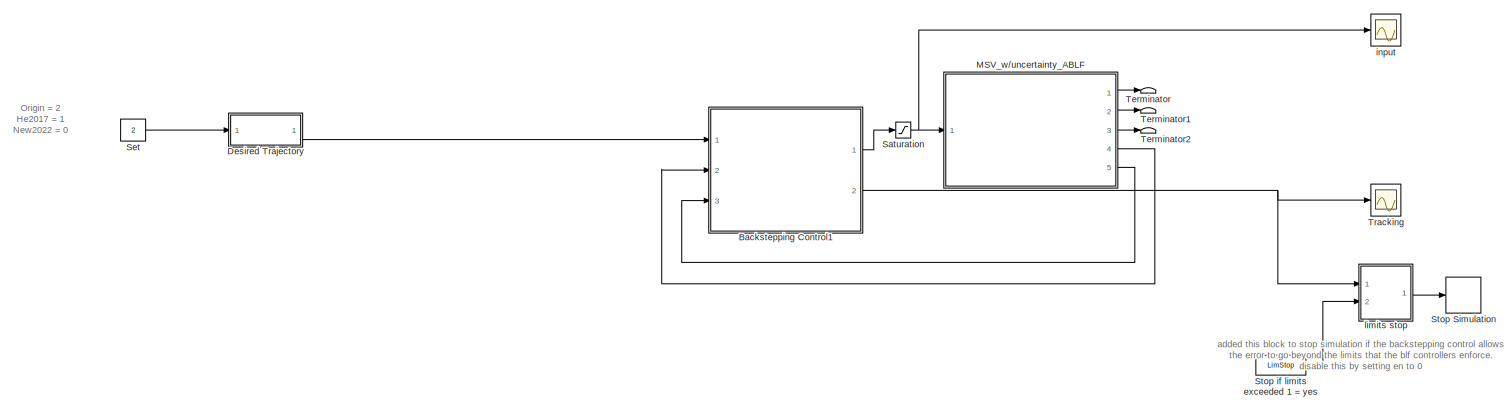
[diagram: root canvas - part 1/3, full width, top band]
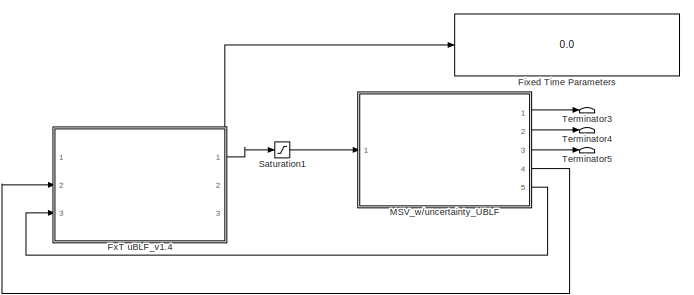
[diagram: root canvas - part 2/3, central region]
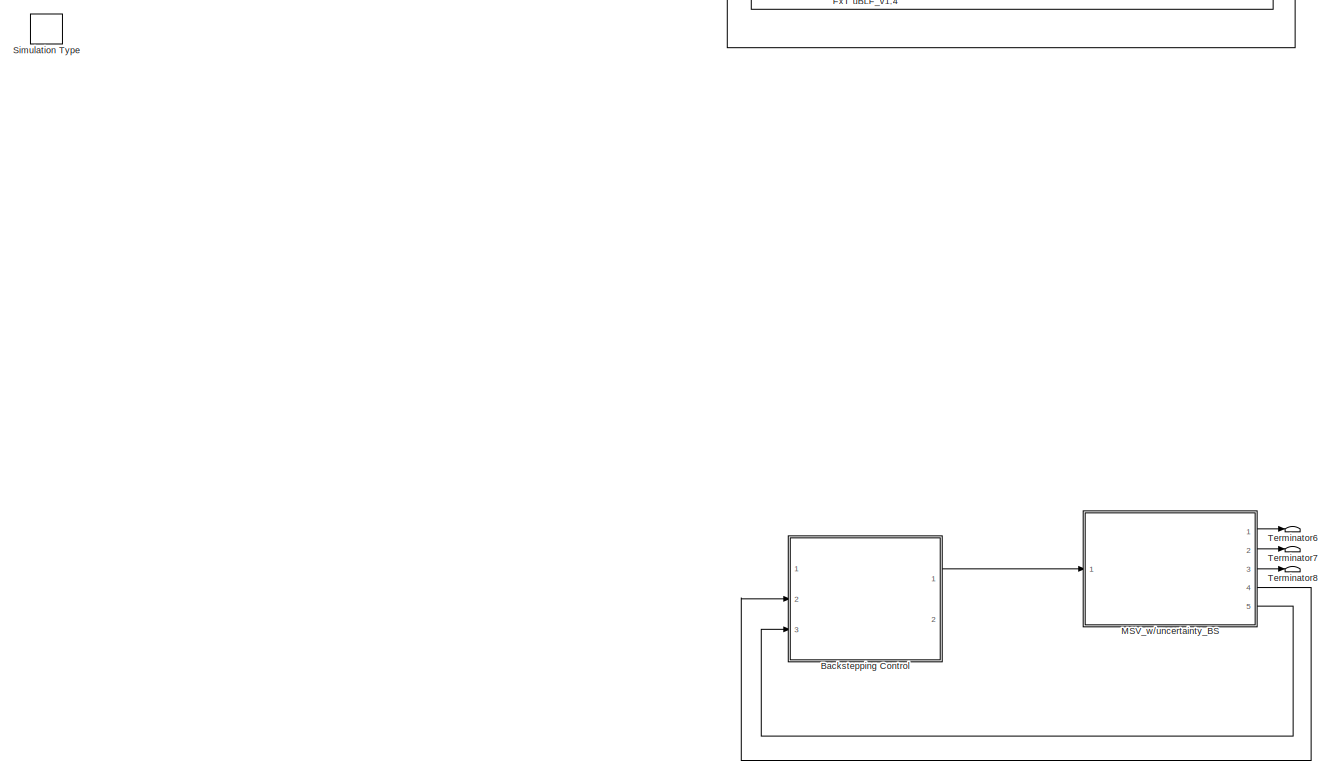
[diagram: root canvas - part 3/3, full width, bottom band]
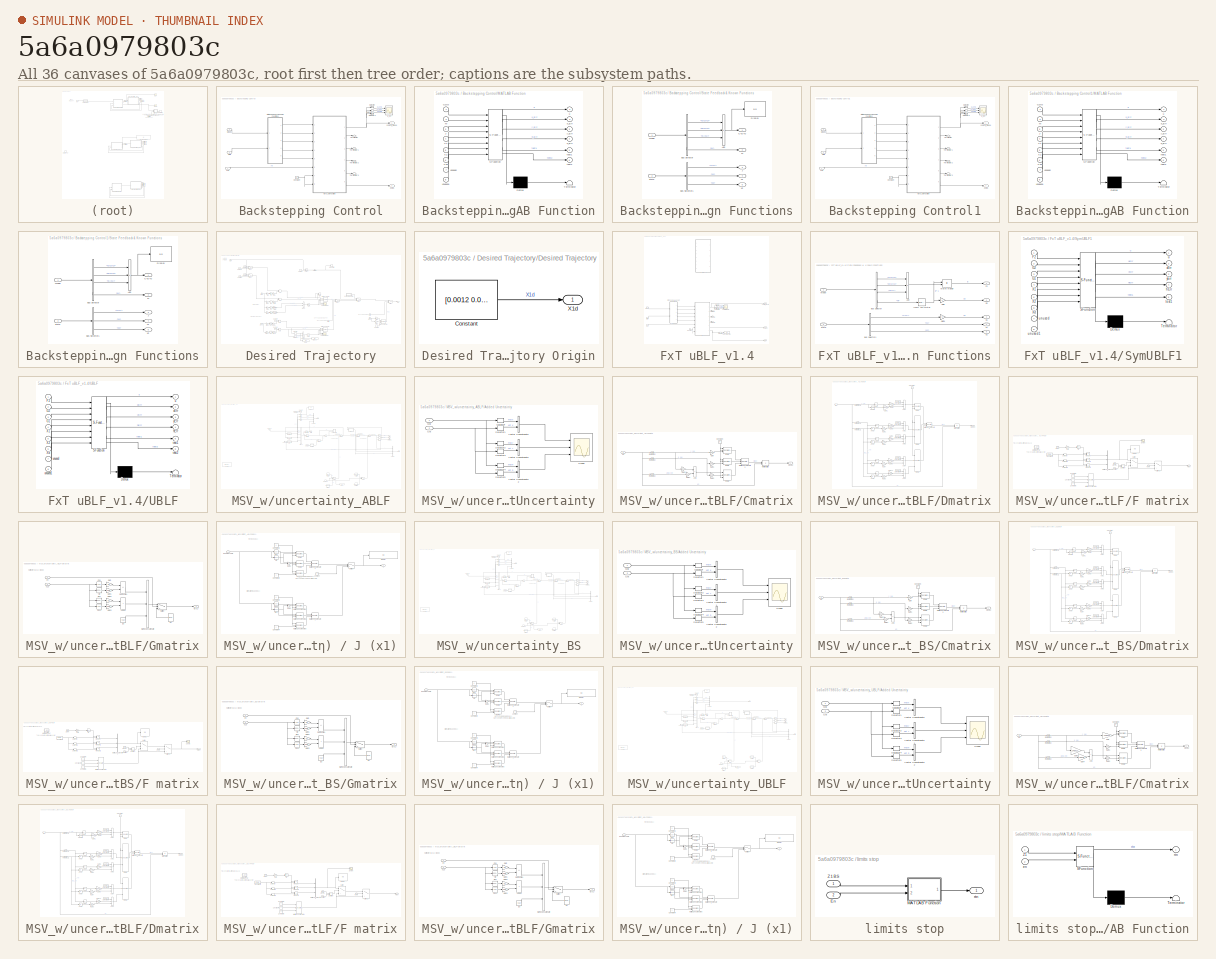
[diagram: thumbnail index - all 36 canvases of the model, root first then tree order]
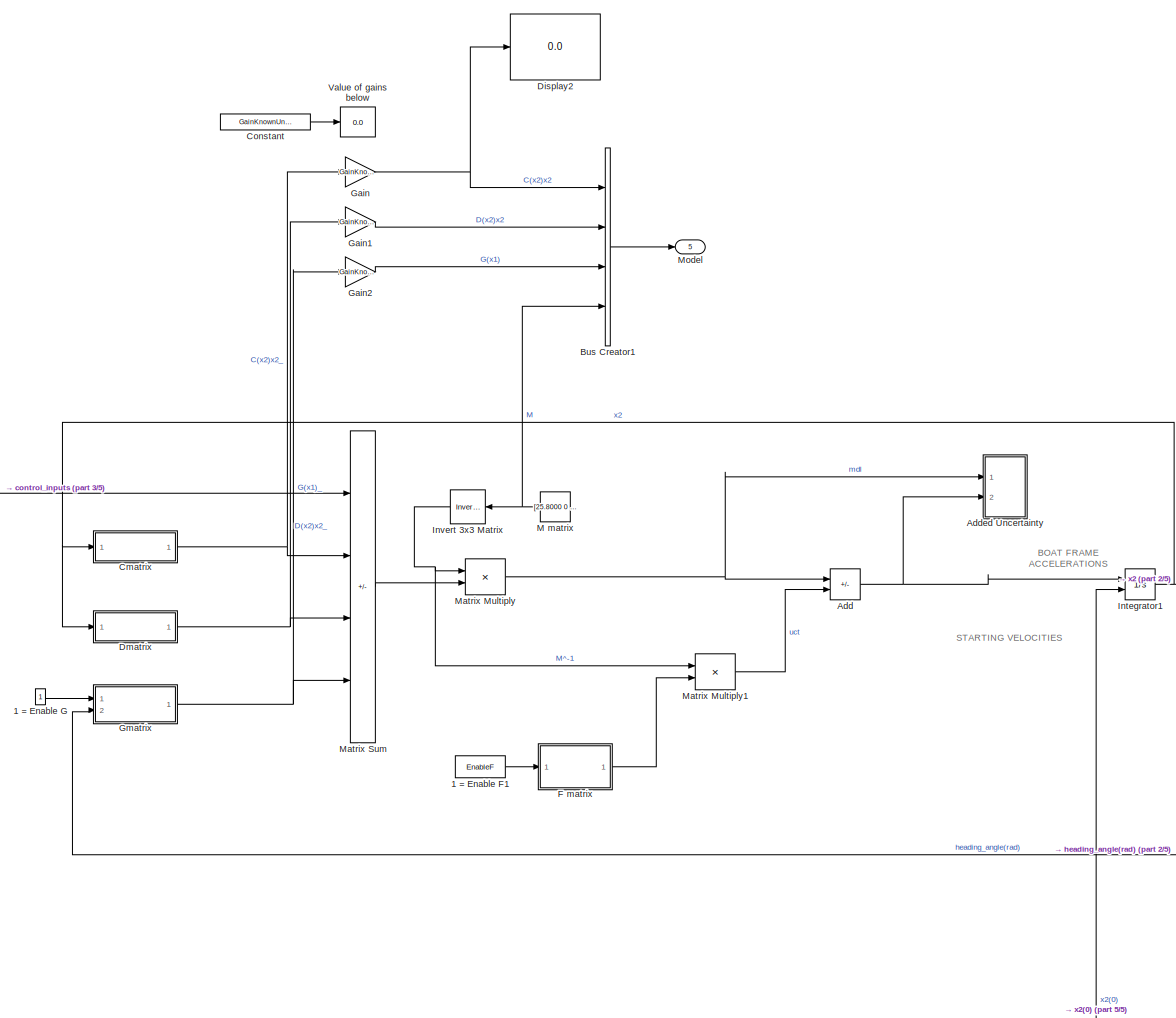
[diagram: MSV_w/uncertainty_ABLF - part 1/5, top center region]
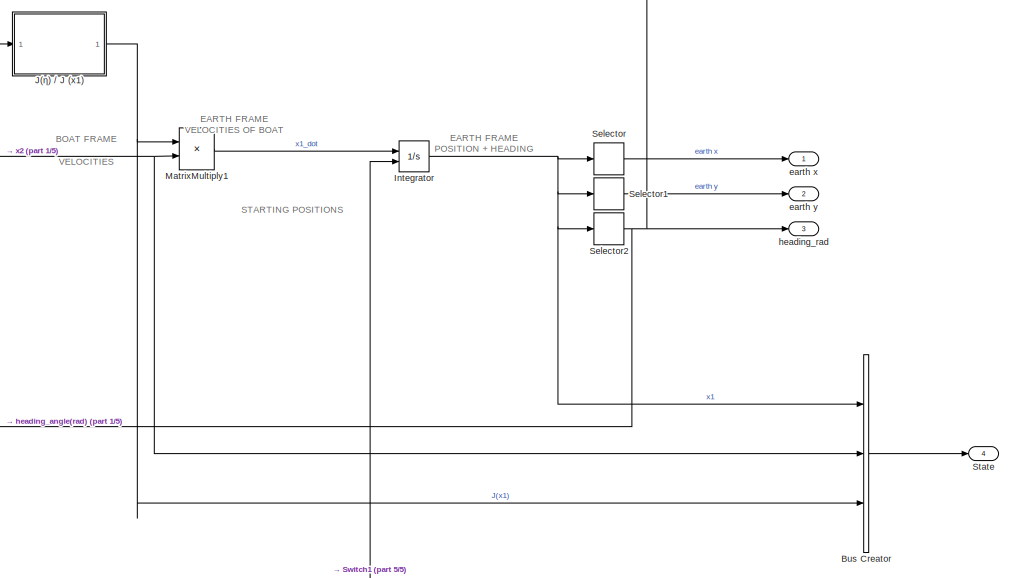
[diagram: MSV_w/uncertainty_ABLF - part 2/5, middle right region]
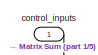
[diagram: MSV_w/uncertainty_ABLF - part 3/5, top left region]
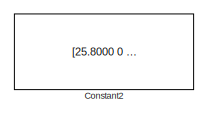
[diagram: MSV_w/uncertainty_ABLF - part 4/5, bottom left region]
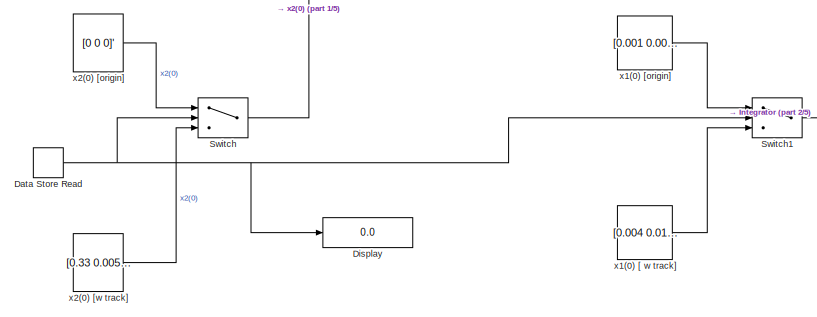
[diagram: MSV_w/uncertainty_ABLF - part 5/5, bottom right region]
MODEL slx_5a6a0979803c
KIND model
CONFIG AbsTol = auto
CONFIG EnableMultiTasking = off
CONFIG FixedStep = 0.001
CONFIG MaxStep = 0.01
CONFIG MinStep = auto
CONFIG RelTol = 1e-3
CONFIG SampleTimeConstraint = Unconstrained
CONFIG SolverName = ode4
CONFIG StartTime = 0.0
CONFIG StopTime = 10
WORKSPACE source: mxarray member
WORKSPACE EnableF = 1
WORKSPACE F_xyh = [10 10 1]
WORKSPACE GainKnownUncty = 1
WORKSPACE InputSat = [8591 330.8 839]
WORKSPACE InputSatOff = 1000
WORKSPACE Mmtx = [1 0 0 0 1 0 0 0 1]
WORKSPACE Temp = 0
WORKSPACE Test1: Simulink.Parameter (value not decoded)
WORKSPACE boat_heading = 0
WORKSPACE boat_vel_x = 0
WORKSPACE boat_vel_y = 0
WORKSPACE earth_head = 2
WORKSPACE earth_x = 0
WORKSPACE earth_y = 2
WORKSPACE input_heading = 1
WORKSPACE input_x = 1
WORKSPACE input_y = 1
BLOCK [SubSystem] Backstepping Control
  Commented = on
  Ports = [3, 2]
  RequestExecContextInheritance = off
BLOCK [Constant] Backstepping Control/Constant
BLOCK [SubSystem] Backstepping Control/MATLAB Function
  ErrorFcn = Stateflow.Translate.translate
  PermitHierarchicalResolution = ExplicitOnly
  Ports = [8, 6]
  RequestExecContextInheritance = off
  SFBlockType = MATLAB Function
  TreatAsAtomicUnit = on
BLOCK [Demux] Backstepping Control/MATLAB Function/ Demux 
  Outputs = 1
  Ports = [1, 1]
BLOCK [S-Function] Backstepping Control/MATLAB Function/ SFunction 
  EnableBusSupport = on
  FunctionName = sf_sfun
  PortCounts = [8 7]
  Ports = [8, 7]
  SFcnIsStateOwnerBlock = off
  SFunctionDeploymentMode = off
  Tag = Stateflow S-Function 6
BLOCK [Terminator] Backstepping Control/MATLAB Function/ Terminator 
BLOCK [Inport] Backstepping Control/MATLAB Function/CDG
BLOCK [Inport] Backstepping Control/MATLAB Function/J
  Port = 3
BLOCK [Inport] Backstepping Control/MATLAB Function/M
  Port = 2
BLOCK [Inport] Backstepping Control/MATLAB Function/X1
  Port = 4
BLOCK [Inport] Backstepping Control/MATLAB Function/X1d
  Port = 6
BLOCK [Inport] Backstepping Control/MATLAB Function/X2
  Port = 5
BLOCK [Outport] Backstepping Control/MATLAB Function/h_Err
  Port = 4
BLOCK [Outport] Backstepping Control/MATLAB Function/test1
  Port = 5
BLOCK [Outport] Backstepping Control/MATLAB Function/test2
  Port = 6
BLOCK [Outport] Backstepping Control/MATLAB Function/u
BLOCK [Inport] Backstepping Control/MATLAB Function/unused
  Port = 7
BLOCK [Inport] Backstepping Control/MATLAB Function/unused1
  Port = 8
BLOCK [Outport] Backstepping Control/MATLAB Function/x_Err
  Port = 2
BLOCK [Outport] Backstepping Control/MATLAB Function/y_Err
  Port = 3
BLOCK [Inport] Backstepping Control/Model
  NameLocation = left
  Port = 3
BLOCK [Selector] Backstepping Control/Selector
  IndexOptions = Index vector (dialog)
  Indices = 1
  InputPortWidth = 3
  OutputSizes = 1
  Ports = [1, 1]
BLOCK [Selector] Backstepping Control/Selector1
  IndexOptions = Index vector (dialog)
  Indices = 2
  InputPortWidth = 3
  OutputSizes = 1
  Ports = [1, 1]
BLOCK [Selector] Backstepping Control/Selector2
  IndexOptions = Index vector (dialog)
  Indices = 3
  InputPortWidth = 3
  OutputSizes = 1
  Ports = [1, 1]
BLOCK [Inport] Backstepping Control/State
  NameLocation = left
  Port = 2
BLOCK [SubSystem] Backstepping Control/State Feedback & Known Functions
  NameLocation = top
  Ports = [2, 5]
  RequestExecContextInheritance = off
BLOCK [Sum] Backstepping Control/State Feedback & Known Functions/Add
  IconShape = rectangular
  Inputs = ---
  Ports = [3, 1]
BLOCK [BusSelector] Backstepping Control/State Feedback & Known Functions/Bus Selector
  OutputSignals = C(x2)x2,D(x2)x2,G(x1),M
  Ports = [1, 4]
BLOCK [BusSelector] Backstepping Control/State Feedback & Known Functions/Bus Selector1
  OutputSignals = J(x1),x1,x2
  Ports = [1, 3]
BLOCK [Outport] Backstepping Control/State Feedback & Known Functions/C+D+G
  NameLocation = right
BLOCK [Display] Backstepping Control/State Feedback & Known Functions/Display
  Decimation = 1
  Ports = [1]
BLOCK [Outport] Backstepping Control/State Feedback & Known Functions/J
  NameLocation = right
  Port = 3
BLOCK [Outport] Backstepping Control/State Feedback & Known Functions/M
  NameLocation = right
  Port = 2
BLOCK [Inport] Backstepping Control/State Feedback & Known Functions/Model
  NameLocation = left
BLOCK [Inport] Backstepping Control/State Feedback & Known Functions/State
  NameLocation = left
  Port = 2
BLOCK [Outport] Backstepping Control/State Feedback & Known Functions/X1
  NameLocation = right
  Port = 4
BLOCK [Outport] Backstepping Control/State Feedback & Known Functions/X2
  NameLocation = right
  Port = 5
BLOCK [Terminator] Backstepping Control/Terminator
BLOCK [Terminator] Backstepping Control/Terminator1
BLOCK [Terminator] Backstepping Control/Terminator2
BLOCK [Terminator] Backstepping Control/Terminator3
BLOCK [Inport] Backstepping Control/X1d
  NameLocation = left
BLOCK [Outport] Backstepping Control/Z1 BS
  Port = 2
BLOCK [Outport] Backstepping Control/control_signal
  NameLocation = right
BLOCK [Scope] Backstepping Control/u_bs
  Floating = off
  NumInputPorts = 3
  Ports = [3]
  ScopeSpecificationString = Simulink.scopes.TimeScopeBlockCfg('CurrentConfiguration', extmgr.ConfigurationSet(extmgr.Configuration('Core','General UI',true),extmgr.Configuration('Core','Source UI',true),extmgr.Configuration('Sources','WiredSimulink',true,'DataLoggingVariableName','u_bs','DataLogging',true,'DataLoggingSaveFormat','StructureWithTime'),extmgr.Configuration('Visuals','Time Domain',true,'SerializedDisplays',{stru...<+2808ch>
BLOCK [SubSystem] Backstepping Control1
  Ports = [3, 2]
  RequestExecContextInheritance = off
BLOCK [Constant] Backstepping Control1/Constant
BLOCK [SubSystem] Backstepping Control1/MATLAB Function
  ErrorFcn = Stateflow.Translate.translate
  PermitHierarchicalResolution = ExplicitOnly
  Ports = [8, 6]
  RequestExecContextInheritance = off
  SFBlockType = MATLAB Function
  TreatAsAtomicUnit = on
BLOCK [Demux] Backstepping Control1/MATLAB Function/ Demux 
  Outputs = 1
  Ports = [1, 1]
BLOCK [S-Function] Backstepping Control1/MATLAB Function/ SFunction 
  EnableBusSupport = on
  FunctionName = sf_sfun
  PortCounts = [8 7]
  Ports = [8, 7]
  SFcnIsStateOwnerBlock = off
  SFunctionDeploymentMode = off
  Tag = Stateflow S-Function 1
BLOCK [Terminator] Backstepping Control1/MATLAB Function/ Terminator 
BLOCK [Inport] Backstepping Control1/MATLAB Function/CDG
BLOCK [Inport] Backstepping Control1/MATLAB Function/J
  Port = 3
BLOCK [Inport] Backstepping Control1/MATLAB Function/M
  Port = 2
BLOCK [Inport] Backstepping Control1/MATLAB Function/X1
  Port = 4
BLOCK [Inport] Backstepping Control1/MATLAB Function/X1d
  Port = 6
BLOCK [Inport] Backstepping Control1/MATLAB Function/X2
  Port = 5
BLOCK [Outport] Backstepping Control1/MATLAB Function/h_Err
  Port = 4
BLOCK [Outport] Backstepping Control1/MATLAB Function/test1
  Port = 5
BLOCK [Outport] Backstepping Control1/MATLAB Function/test2
  Port = 6
BLOCK [Outport] Backstepping Control1/MATLAB Function/u
BLOCK [Inport] Backstepping Control1/MATLAB Function/unused
  Port = 7
BLOCK [Inport] Backstepping Control1/MATLAB Function/unused1
  Port = 8
BLOCK [Outport] Backstepping Control1/MATLAB Function/x_Err
  Port = 2
BLOCK [Outport] Backstepping Control1/MATLAB Function/y_Err
  Port = 3
BLOCK [Inport] Backstepping Control1/Model
  NameLocation = left
  Port = 3
BLOCK [Selector] Backstepping Control1/Selector
  IndexOptions = Index vector (dialog)
  Indices = 1
  InputPortWidth = 3
  OutputSizes = 1
  Ports = [1, 1]
BLOCK [Selector] Backstepping Control1/Selector1
  IndexOptions = Index vector (dialog)
  Indices = 2
  InputPortWidth = 3
  OutputSizes = 1
  Ports = [1, 1]
BLOCK [Selector] Backstepping Control1/Selector2
  IndexOptions = Index vector (dialog)
  Indices = 3
  InputPortWidth = 3
  OutputSizes = 1
  Ports = [1, 1]
BLOCK [Inport] Backstepping Control1/State
  NameLocation = left
  Port = 2
BLOCK [SubSystem] Backstepping Control1/State Feedback & Known Functions
  NameLocation = top
  Ports = [2, 5]
  RequestExecContextInheritance = off
BLOCK [Sum] Backstepping Control1/State Feedback & Known Functions/Add
  IconShape = rectangular
  Inputs = ---
  Ports = [3, 1]
BLOCK [BusSelector] Backstepping Control1/State Feedback & Known Functions/Bus Selector
  OutputSignals = C(x2)x2,D(x2)x2,G(x1),M
  Ports = [1, 4]
BLOCK [BusSelector] Backstepping Control1/State Feedback & Known Functions/Bus Selector1
  OutputSignals = J(x1),x1,x2
  Ports = [1, 3]
BLOCK [Outport] Backstepping Control1/State Feedback & Known Functions/C+D+G
  NameLocation = right
BLOCK [Display] Backstepping Control1/State Feedback & Known Functions/Display
  Decimation = 1
  Ports = [1]
BLOCK [Outport] Backstepping Control1/State Feedback & Known Functions/J
  NameLocation = right
  Port = 3
BLOCK [Outport] Backstepping Control1/State Feedback & Known Functions/M
  NameLocation = right
  Port = 2
BLOCK [Inport] Backstepping Control1/State Feedback & Known Functions/Model
  NameLocation = left
BLOCK [Inport] Backstepping Control1/State Feedback & Known Functions/State
  NameLocation = left
  Port = 2
BLOCK [Outport] Backstepping Control1/State Feedback & Known Functions/X1
  NameLocation = right
  Port = 4
BLOCK [Outport] Backstepping Control1/State Feedback & Known Functions/X2
  NameLocation = right
  Port = 5
BLOCK [Terminator] Backstepping Control1/Terminator
BLOCK [Terminator] Backstepping Control1/Terminator1
BLOCK [Terminator] Backstepping Control1/Terminator2
BLOCK [Terminator] Backstepping Control1/Terminator3
BLOCK [Inport] Backstepping Control1/X1d
  NameLocation = left
BLOCK [Outport] Backstepping Control1/Z1 BS
  Port = 2
BLOCK [Outport] Backstepping Control1/control_signal
  NameLocation = right
BLOCK [Scope] Backstepping Control1/u_bs
  Floating = off
  NumInputPorts = 3
  Ports = [3]
  ScopeSpecificationString = Simulink.scopes.TimeScopeBlockCfg('CurrentConfiguration', extmgr.ConfigurationSet(extmgr.Configuration('Core','General UI',true),extmgr.Configuration('Core','Source UI',true),extmgr.Configuration('Sources','WiredSimulink',true,'DataLoggingVariableName','u_bs','DataLogging',true,'DataLoggingSaveFormat','StructureWithTime'),extmgr.Configuration('Visuals','Time Domain',true,'SerializedDisplays',{stru...<+2808ch>
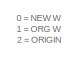
[diagram: Desired Trajectory - part 1/4, top left region]
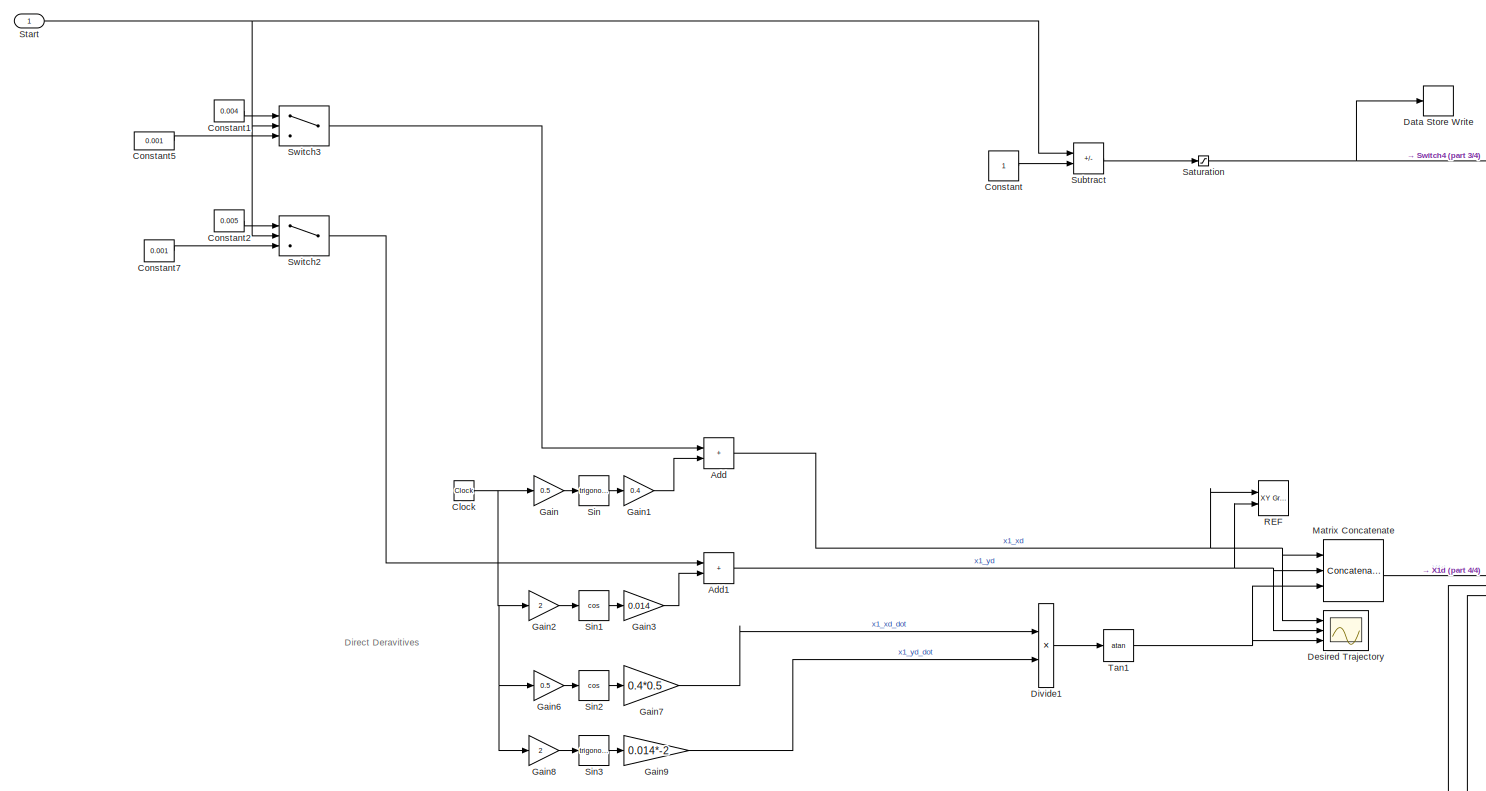
[diagram: Desired Trajectory - part 2/4, central region]
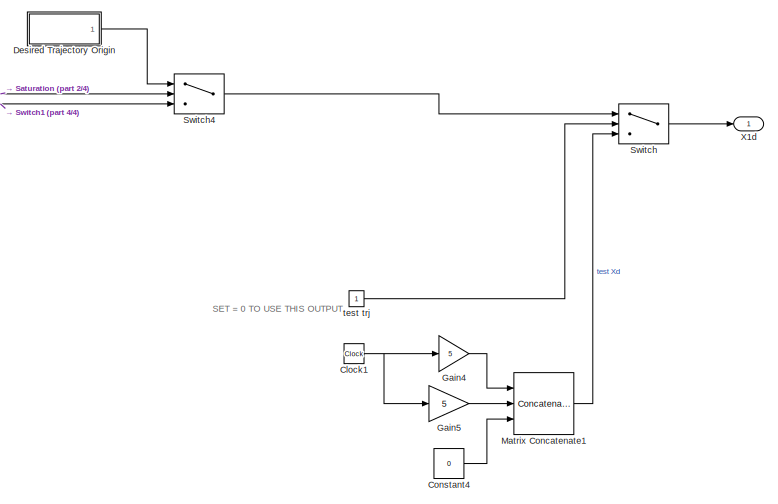
[diagram: Desired Trajectory - part 3/4, middle right region]
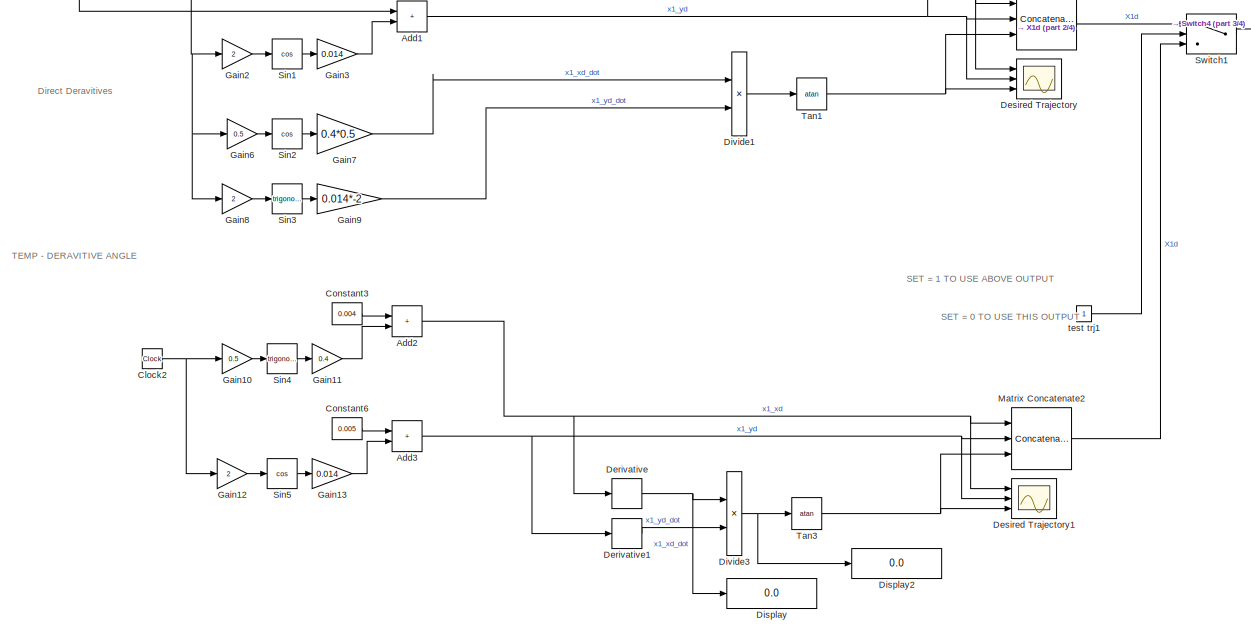
[diagram: Desired Trajectory - part 4/4, bottom center region]
BLOCK [SubSystem] Desired Trajectory
  Ports = [1, 1]
  RequestExecContextInheritance = off
BLOCK [Sum] Desired Trajectory/Add
  IconShape = rectangular
  Ports = [2, 1]
BLOCK [Sum] Desired Trajectory/Add1
  IconShape = rectangular
  Ports = [2, 1]
BLOCK [Sum] Desired Trajectory/Add2
  Commented = on
  IconShape = rectangular
  Ports = [2, 1]
BLOCK [Sum] Desired Trajectory/Add3
  Commented = on
  IconShape = rectangular
  Ports = [2, 1]
BLOCK [Clock] Desired Trajectory/Clock
  Decimation = 1
BLOCK [Clock] Desired Trajectory/Clock1
  Decimation = 1
BLOCK [Clock] Desired Trajectory/Clock2
  Commented = on
  Decimation = 1
BLOCK [Constant] Desired Trajectory/Constant
BLOCK [Constant] Desired Trajectory/Constant1
  Value = 0.004
BLOCK [Constant] Desired Trajectory/Constant2
  Value = 0.005
BLOCK [Constant] Desired Trajectory/Constant3
  Commented = on
  Value = 0.004
BLOCK [Constant] Desired Trajectory/Constant4
  Value = 0
BLOCK [Constant] Desired Trajectory/Constant5
  Value = 0.001
BLOCK [Constant] Desired Trajectory/Constant6
  Commented = on
  Value = 0.005
BLOCK [Constant] Desired Trajectory/Constant7
  Value = 0.001
BLOCK [DataStoreWrite] Desired Trajectory/Data Store Write
  DataStoreName = Temp1
  IndexOptions = Index vector (dialog)
  Indices = 1
  OutputSizes = 1
  Ports = [1]
BLOCK [Derivative] Desired Trajectory/Derivative
  Commented = on
BLOCK [Derivative] Desired Trajectory/Derivative1
  Commented = on
BLOCK [Scope] Desired Trajectory/Desired Trajectory
  Floating = off
  NumInputPorts = 3
  Ports = [3]
  ScopeSpecificationString = Simulink.scopes.TimeScopeBlockCfg('CurrentConfiguration', extmgr.ConfigurationSet(extmgr.Configuration('Core','General UI',true),extmgr.Configuration('Core','Source UI',true),extmgr.Configuration('Sources','WiredSimulink',true,'DataLoggingVariableName','ScopeData2'),extmgr.Configuration('Visuals','Time Domain',true,'SerializedDisplays',{struct('MinYLimReal','-0.496','MaxYLimReal','0.504','YLabelRe...<+2706ch>
BLOCK [SubSystem] Desired Trajectory/Desired Trajectory Origin
  Ports = [0, 1]
  RequestExecContextInheritance = off
BLOCK [Constant] Desired Trajectory/Desired Trajectory Origin/Constant
  Value = [0.0012 0.0012 0]'
  VectorParams1D = off
BLOCK [Outport] Desired Trajectory/Desired Trajectory Origin/X1d
BLOCK [Scope] Desired Trajectory/Desired Trajectory1
  Floating = off
  NumInputPorts = 3
  Ports = [3]
  ScopeSpecificationString = Simulink.scopes.TimeScopeBlockCfg('CurrentConfiguration', extmgr.ConfigurationSet(extmgr.Configuration('Core','General UI',true),extmgr.Configuration('Core','Source UI',true),extmgr.Configuration('Sources','WiredSimulink',true,'DataLoggingVariableName','ScopeData1'),extmgr.Configuration('Visuals','Time Domain',true,'SerializedDisplays',{struct('MinYLimReal','-0.496','MaxYLimReal','0.504','YLabelRe...<+2706ch>
BLOCK [Display] Desired Trajectory/Display
  Commented = on
  Decimation = 1
  Ports = [1]
BLOCK [Display] Desired Trajectory/Display2
  Commented = on
  Decimation = 1
  Ports = [1]
BLOCK [Product] Desired Trajectory/Divide1
  Inputs = /*
  Ports = [2, 1]
BLOCK [Product] Desired Trajectory/Divide3
  Commented = on
  Inputs = /*
  Ports = [2, 1]
BLOCK [Gain] Desired Trajectory/Gain
  Gain = 0.5
BLOCK [Gain] Desired Trajectory/Gain1
  Gain = 0.4
BLOCK [Gain] Desired Trajectory/Gain10
  Commented = on
  Gain = 0.5
BLOCK [Gain] Desired Trajectory/Gain11
  Commented = on
  Gain = 0.4
BLOCK [Gain] Desired Trajectory/Gain12
  Commented = on
  Gain = 2
BLOCK [Gain] Desired Trajectory/Gain13
  Commented = on
  Gain = 0.014
BLOCK [Gain] Desired Trajectory/Gain2
  Gain = 2
BLOCK [Gain] Desired Trajectory/Gain3
  Gain = 0.014
BLOCK [Gain] Desired Trajectory/Gain4
  Gain = 5
BLOCK [Gain] Desired Trajectory/Gain5
  Gain = 5
BLOCK [Gain] Desired Trajectory/Gain6
  Gain = 0.5
BLOCK [Gain] Desired Trajectory/Gain7
  Gain = 0.4*0.5
BLOCK [Gain] Desired Trajectory/Gain8
  Gain = 2
BLOCK [Gain] Desired Trajectory/Gain9
  Gain = 0.014*-2
BLOCK [Concatenate] Desired Trajectory/Matrix Concatenate
  Mode = Multidimensional array
  NumInputs = 3
  Ports = [3, 1]
BLOCK [Concatenate] Desired Trajectory/Matrix Concatenate1
  Mode = Multidimensional array
  NumInputs = 3
  Ports = [3, 1]
BLOCK [Concatenate] Desired Trajectory/Matrix Concatenate2
  Mode = Multidimensional array
  NumInputs = 3
  Ports = [3, 1]
BLOCK [Reference] Desired Trajectory/REF  REF=simulink/Sinks/XY Graph
  Commented = on
  Ports = [2]
  SourceBlock = simulink/Sinks/XY Graph
  SourceProductBaseCode = SL
  SourceType = XY scope.
BLOCK [Saturate] Desired Trajectory/Saturation
  UpperLimit = 1
BLOCK [Trigonometry] Desired Trajectory/Sin
  Ports = [1, 1]
BLOCK [Trigonometry] Desired Trajectory/Sin1
  Operator = cos
  Ports = [1, 1]
BLOCK [Trigonometry] Desired Trajectory/Sin2
  Operator = cos
  Ports = [1, 1]
BLOCK [Trigonometry] Desired Trajectory/Sin3
  Ports = [1, 1]
BLOCK [Trigonometry] Desired Trajectory/Sin4
  Commented = on
  Ports = [1, 1]
BLOCK [Trigonometry] Desired Trajectory/Sin5
  Commented = on
  Operator = cos
  Ports = [1, 1]
BLOCK [Inport] Desired Trajectory/Start
BLOCK [Sum] Desired Trajectory/Subtract
  IconShape = rectangular
  Inputs = +-
  Ports = [2, 1]
BLOCK [Switch] Desired Trajectory/Switch
  Criteria = u2 > Threshold
  InputSameDT = off
  SaturateOnIntegerOverflow = off
BLOCK [Switch] Desired Trajectory/Switch1
  Criteria = u2 > Threshold
  InputSameDT = off
  SaturateOnIntegerOverflow = off
BLOCK [Switch] Desired Trajectory/Switch2
  Criteria = u2 > Threshold
  InputSameDT = off
  SaturateOnIntegerOverflow = off
BLOCK [Switch] Desired Trajectory/Switch3
  Criteria = u2 > Threshold
  InputSameDT = off
  SaturateOnIntegerOverflow = off
BLOCK [Switch] Desired Trajectory/Switch4
  Criteria = u2 > Threshold
  InputSameDT = off
  SaturateOnIntegerOverflow = off
BLOCK [Trigonometry] Desired Trajectory/Tan1
  ApproximationMethod = CORDIC
  Operator = atan
  OutputSignalType = real
  Ports = [1, 1]
BLOCK [Trigonometry] Desired Trajectory/Tan3
  ApproximationMethod = CORDIC
  Commented = on
  Operator = atan
  OutputSignalType = real
  Ports = [1, 1]
BLOCK [Outport] Desired Trajectory/X1d
BLOCK [Constant] Desired Trajectory/test trj
  NameLocation = left
BLOCK [Constant] Desired Trajectory/test trj1
  NameLocation = left
BLOCK [Display] Fixed Time Parameters
  Commented = on
  Decimation = 1
  Ports = [1]
BLOCK [SubSystem] FxT uBLF_v1.4
  Commented = on
  PortSchema = {"entries":[{"content":{"sides":[{"content":{"connectorIds":["In1","In2","In3"]},"type":"ConnectorPlacement.EquallySpacedRectSide","uuid":"f8e83fd1-45ec-473c-b127-dda3e39bc690"},{"content":{"connectorIds":["Out1","Out2"],"side":"RIGHT"},"type":"ConnectorPlacement.EquallySpacedRectSide","uuid":"3907a693-0eb5-4391-af9e-fb1e42d629e6"},{"content":{"connectorIds":["Out3"],"side":"TOP"},"type":"Connecto...<+265ch>
  Ports = [3, 3]
  RequestExecContextInheritance = off
BLOCK [Constant] FxT uBLF_v1.4/Constant
  Value = 0
BLOCK [Scope] FxT uBLF_v1.4/Control Signals
  Floating = off
  NumInputPorts = 3
  Ports = [3]
  ScopeSpecificationString = Simulink.scopes.TimeScopeBlockCfg('CurrentConfiguration', extmgr.ConfigurationSet(extmgr.Configuration('Core','General UI',true),extmgr.Configuration('Core','Source UI',true),extmgr.Configuration('Sources','WiredSimulink',true,'DataLoggingVariableName','u_fxt','DataLogging',true,'DataLoggingSaveFormat','StructureWithTime'),extmgr.Configuration('Visuals','Time Domain',true,'SerializedDisplays',{str...<+2809ch>
BLOCK [Display] FxT uBLF_v1.4/Fixed Time Tmax
  Decimation = 1
  Ports = [1]
BLOCK [Outport] FxT uBLF_v1.4/FxT
  NameLocation = right
  Port = 3
BLOCK [Inport] FxT uBLF_v1.4/Model
  Port = 3
BLOCK [Selector] FxT uBLF_v1.4/Selector
  IndexOptions = Index vector (dialog)
  Indices = 1
  InputPortWidth = 3
  OutputSizes = 1
  Ports = [1, 1]
BLOCK [Selector] FxT uBLF_v1.4/Selector1
  IndexOptions = Index vector (dialog)
  Indices = 2
  InputPortWidth = 3
  OutputSizes = 1
  Ports = [1, 1]
BLOCK [Selector] FxT uBLF_v1.4/Selector2
  IndexOptions = Index vector (dialog)
  Indices = 3
  InputPortWidth = 3
  OutputSizes = 1
  Ports = [1, 1]
BLOCK [Selector] FxT uBLF_v1.4/Selector3
  IndexOptions = Index vector (dialog)
  Indices = 1
  InputPortWidth = 9
  OutputSizes = 1
  Ports = [1, 1]
BLOCK [Inport] FxT uBLF_v1.4/State
  Port = 2
BLOCK [SubSystem] FxT uBLF_v1.4/State Feedback & Known Functions
  NameLocation = top
  Ports = [2, 5]
  RequestExecContextInheritance = off
BLOCK [Sum] FxT uBLF_v1.4/State Feedback & Known Functions/Add
  IconShape = rectangular
  Inputs = ---
  Ports = [3, 1]
BLOCK [BusSelector] FxT uBLF_v1.4/State Feedback & Known Functions/Bus Selector
  OutputSignals = C(x2)x2,D(x2)x2,G(x1),M
  Ports = [1, 4]
BLOCK [BusSelector] FxT uBLF_v1.4/State Feedback & Known Functions/Bus Selector1
  OutputSignals = J(x1),x1,x2
  Ports = [1, 3]
BLOCK [Outport] FxT uBLF_v1.4/State Feedback & Known Functions/F2
  NameLocation = right
BLOCK [Outport] FxT uBLF_v1.4/State Feedback & Known Functions/G1
  NameLocation = right
  Port = 3
BLOCK [Outport] FxT uBLF_v1.4/State Feedback & Known Functions/G2
  NameLocation = right
  Port = 2
BLOCK [Gain] FxT uBLF_v1.4/State Feedback & Known Functions/Gain
BLOCK [Gain] FxT uBLF_v1.4/State Feedback & Known Functions/Gain1
BLOCK [Reference] FxT uBLF_v1.4/State Feedback & Known Functions/Invert 3x3 Matrix  REF=aerolibutil/Invert 
3x3 Matrix
  Ports = [1, 1]
  SourceBlock = aerolibutil/Invert \n3x3 Matrix
  SourceProductBaseCode = AE
  SourceType = Invert 3x3 Matrix
BLOCK [Product] FxT uBLF_v1.4/State Feedback & Known Functions/Matrix Multiply
  Multiplication = Matrix(*)
  Ports = [2, 1]
BLOCK [Inport] FxT uBLF_v1.4/State Feedback & Known Functions/Model
  NameLocation = left
BLOCK [Inport] FxT uBLF_v1.4/State Feedback & Known Functions/State
  NameLocation = left
  Port = 2
BLOCK [Outport] FxT uBLF_v1.4/State Feedback & Known Functions/X1
  NameLocation = right
  Port = 4
BLOCK [Outport] FxT uBLF_v1.4/State Feedback & Known Functions/X2
  NameLocation = right
  Port = 5
BLOCK [SubSystem] FxT uBLF_v1.4/SymUBLF1
  Commented = on
  ErrorFcn = Stateflow.Translate.translate
  PermitHierarchicalResolution = ExplicitOnly
  Ports = [8, 5]
  RequestExecContextInheritance = off
  SFBlockType = MATLAB Function
  TreatAsAtomicUnit = on
BLOCK [Demux] FxT uBLF_v1.4/SymUBLF1/ Demux 
  Outputs = 1
  Ports = [1, 1]
BLOCK [S-Function] FxT uBLF_v1.4/SymUBLF1/ SFunction 
  EnableBusSupport = on
  FunctionName = sf_sfun
  PortCounts = [8 6]
  Ports = [8, 6]
  SFcnIsStateOwnerBlock = off
  SFunctionDeploymentMode = off
  Tag = Stateflow S-Function 2
BLOCK [Terminator] FxT uBLF_v1.4/SymUBLF1/ Terminator 
BLOCK [Inport] FxT uBLF_v1.4/SymUBLF1/F2
BLOCK [Inport] FxT uBLF_v1.4/SymUBLF1/G1
  Port = 3
BLOCK [Inport] FxT uBLF_v1.4/SymUBLF1/G2
  Port = 2
BLOCK [Inport] FxT uBLF_v1.4/SymUBLF1/X1
  Port = 4
BLOCK [Inport] FxT uBLF_v1.4/SymUBLF1/X2
  Port = 5
BLOCK [Inport] FxT uBLF_v1.4/SymUBLF1/Xd
  Port = 6
BLOCK [Outport] FxT uBLF_v1.4/SymUBLF1/hErr
  Port = 4
BLOCK [Outport] FxT uBLF_v1.4/SymUBLF1/test1
  Port = 5
BLOCK [Outport] FxT uBLF_v1.4/SymUBLF1/u
BLOCK [Inport] FxT uBLF_v1.4/SymUBLF1/unused
  Port = 7
BLOCK [Inport] FxT uBLF_v1.4/SymUBLF1/unused1
  Port = 8
BLOCK [Outport] FxT uBLF_v1.4/SymUBLF1/xErr
  Port = 2
BLOCK [Outport] FxT uBLF_v1.4/SymUBLF1/yErr
  Port = 3
BLOCK [Terminator] FxT uBLF_v1.4/Terminator
BLOCK [Terminator] FxT uBLF_v1.4/Terminator1
BLOCK [Terminator] FxT uBLF_v1.4/Terminator2
BLOCK [SubSystem] FxT uBLF_v1.4/UBLF
  ErrorFcn = Stateflow.Translate.translate
  PermitHierarchicalResolution = ExplicitOnly
  Ports = [8, 6]
  RequestExecContextInheritance = off
  SFBlockType = MATLAB Function
  TreatAsAtomicUnit = on
BLOCK [Demux] FxT uBLF_v1.4/UBLF/ Demux 
  Outputs = 1
  Ports = [1, 1]
BLOCK [S-Function] FxT uBLF_v1.4/UBLF/ SFunction 
  EnableBusSupport = on
  FunctionName = sf_sfun
  PortCounts = [8 7]
  Ports = [8, 7]
  SFcnIsStateOwnerBlock = off
  SFunctionDeploymentMode = off
  Tag = Stateflow S-Function 5
BLOCK [Terminator] FxT uBLF_v1.4/UBLF/ Terminator 
BLOCK [Inport] FxT uBLF_v1.4/UBLF/F2
BLOCK [Inport] FxT uBLF_v1.4/UBLF/G1
  Port = 3
BLOCK [Inport] FxT uBLF_v1.4/UBLF/G2
  Port = 2
BLOCK [Inport] FxT uBLF_v1.4/UBLF/X1
  Port = 4
BLOCK [Inport] FxT uBLF_v1.4/UBLF/X2
  Port = 5
BLOCK [Inport] FxT uBLF_v1.4/UBLF/Xd
  Port = 6
BLOCK [Outport] FxT uBLF_v1.4/UBLF/hErr
  Port = 4
BLOCK [Outport] FxT uBLF_v1.4/UBLF/test1
  Port = 5
BLOCK [Outport] FxT uBLF_v1.4/UBLF/test2
  Port = 6
BLOCK [Outport] FxT uBLF_v1.4/UBLF/u
BLOCK [Inport] FxT uBLF_v1.4/UBLF/unused
  Port = 7
BLOCK [Inport] FxT uBLF_v1.4/UBLF/unused1
  Port = 8
BLOCK [Outport] FxT uBLF_v1.4/UBLF/xErr
  Port = 2
BLOCK [Outport] FxT uBLF_v1.4/UBLF/yErr
  Port = 3
BLOCK [Inport] FxT uBLF_v1.4/X1d
BLOCK [Outport] FxT uBLF_v1.4/Z1 UBLF
  NameLocation = right
  Port = 2
BLOCK [Outport] FxT uBLF_v1.4/control_inputs
BLOCK [SubSystem] MSV_w//uncertainty_ABLF
  NameLocation = top
  Ports = [1, 5]
  RequestExecContextInheritance = off
BLOCK [Constant] MSV_w//uncertainty_ABLF/1 = Enable F1
  Value = EnableF
BLOCK [Constant] MSV_w//uncertainty_ABLF/1 = Enable G
  NameLocation = left
BLOCK [Sum] MSV_w//uncertainty_ABLF/Add
  IconShape = rectangular
  Inputs = +-
  Ports = [2, 1]
BLOCK [SubSystem] MSV_w//uncertainty_ABLF/Added Uncertainty
  Ports = [2]
  RequestExecContextInheritance = off
BLOCK [Inport] MSV_w//uncertainty_ABLF/Added Uncertainty/Mdl
  NameLocation = left
BLOCK [Scope] MSV_w//uncertainty_ABLF/Added Uncertainty/Scope
  Floating = off
  NumInputPorts = 3
  Ports = [3]
  ScopeSpecificationString = Simulink.scopes.TimeScopeBlockCfg('CurrentConfiguration', extmgr.ConfigurationSet(extmgr.Configuration('Core','General UI',true),extmgr.Configuration('Core','Source UI',true),extmgr.Configuration('Sources','WiredSimulink',true,'DataLoggingVariableName','ScopeData1'),extmgr.Configuration('Visuals','Time Domain',true,'SerializedDisplays',{struct('MinYLimReal','-0.77557','MaxYLimReal','4.77411','YLab...<+2964ch>  <repeated x3 — deduplicated; at blocks: Scope>
BLOCK [Selector] MSV_w//uncertainty_ABLF/Added Uncertainty/Selector
  IndexOptions = Index vector (dialog)
  Indices = 1
  InputPortWidth = 3
  OutputSizes = 1
  Ports = [1, 1]
BLOCK [Selector] MSV_w//uncertainty_ABLF/Added Uncertainty/Selector1
  IndexOptions = Index vector (dialog)
  Indices = 1
  InputPortWidth = 3
  OutputSizes = 1
  Ports = [1, 1]
BLOCK [Selector] MSV_w//uncertainty_ABLF/Added Uncertainty/Selector2
  IndexOptions = Index vector (dialog)
  Indices = 2
  InputPortWidth = 3
  OutputSizes = 1
  Ports = [1, 1]
BLOCK [Selector] MSV_w//uncertainty_ABLF/Added Uncertainty/Selector3
  IndexOptions = Index vector (dialog)
  Indices = 2
  InputPortWidth = 3
  OutputSizes = 1
  Ports = [1, 1]
BLOCK [Selector] MSV_w//uncertainty_ABLF/Added Uncertainty/Selector4
  IndexOptions = Index vector (dialog)
  Indices = 3
  InputPortWidth = 3
  OutputSizes = 1
  Ports = [1, 1]
BLOCK [Selector] MSV_w//uncertainty_ABLF/Added Uncertainty/Selector5
  IndexOptions = Index vector (dialog)
  Indices = 3
  InputPortWidth = 3
  OutputSizes = 1
  Ports = [1, 1]
BLOCK [Inport] MSV_w//uncertainty_ABLF/Added Uncertainty/Uct
  NameLocation = left
  Port = 2
BLOCK [Concatenate] MSV_w//uncertainty_ABLF/Added Uncertainty/Vector Concatenate
  Ports = [2, 1]
BLOCK [Concatenate] MSV_w//uncertainty_ABLF/Added Uncertainty/Vector Concatenate1
  Ports = [2, 1]
BLOCK [Concatenate] MSV_w//uncertainty_ABLF/Added Uncertainty/Vector Concatenate2
  Ports = [2, 1]
BLOCK [BusCreator] MSV_w//uncertainty_ABLF/Bus Creator
  DisplayOption = bar
  InheritFromInputs = on
  Inputs = 3
  Ports = [3, 1]
BLOCK [BusCreator] MSV_w//uncertainty_ABLF/Bus Creator1
  DisplayOption = bar
  InheritFromInputs = on
  Inputs = 4
  Ports = [4, 1]
BLOCK [SubSystem] MSV_w//uncertainty_ABLF/Cmatrix
  Ports = [1, 1]
  RequestExecContextInheritance = off
BLOCK [Sum] MSV_w//uncertainty_ABLF/Cmatrix/Add
  IconShape = rectangular
  Ports = [2, 1]
BLOCK [Outport] MSV_w//uncertainty_ABLF/Cmatrix/C(x2)x2
  NameLocation = right
BLOCK [Constant] MSV_w//uncertainty_ABLF/Cmatrix/Constant
  NameLocation = left
  Value = 0
BLOCK [Gain] MSV_w//uncertainty_ABLF/Cmatrix/Gain
  Gain = -24.6612
BLOCK [Gain] MSV_w//uncertainty_ABLF/Cmatrix/Gain1
  Gain = 25.8
BLOCK [Gain] MSV_w//uncertainty_ABLF/Cmatrix/Gain2
  Gain = -25.8
BLOCK [Gain] MSV_w//uncertainty_ABLF/Cmatrix/Gain3
  Gain = 24.6612
BLOCK [Gain] MSV_w//uncertainty_ABLF/Cmatrix/Gain4
  Gain = 1.0948
BLOCK [Concatenate] MSV_w//uncertainty_ABLF/Cmatrix/Matrix Concatenate3
  Mode = Multidimensional array
  NumInputs = 3
  Ports = [3, 1]
BLOCK [Product] MSV_w//uncertainty_ABLF/Cmatrix/Matrix Multiply
  Multiplication = Matrix(*)
  Ports = [2, 1]
BLOCK [Concatenate] MSV_w//uncertainty_ABLF/Cmatrix/ROW 2
  ConcatenateDimension = 2
  Mode = Multidimensional array
  NumInputs = 3
  Ports = [3, 1]
BLOCK [Concatenate] MSV_w//uncertainty_ABLF/Cmatrix/ROW1
  ConcatenateDimension = 2
  Mode = Multidimensional array
  NumInputs = 3
  Ports = [3, 1]
BLOCK [Concatenate] MSV_w//uncertainty_ABLF/Cmatrix/ROW3
  ConcatenateDimension = 2
  Mode = Multidimensional array
  NumInputs = 3
  Ports = [3, 1]
BLOCK [Reference] MSV_w//uncertainty_ABLF/Cmatrix/Row1[x2]  REF=dspmtrx3/Submatrix
  NameLocation = top
  Ports = [1, 1]
  SourceBlock = dspmtrx3/Submatrix
  SourceProductBaseCode = DS
  SourceType = Submatrix
BLOCK [Reference] MSV_w//uncertainty_ABLF/Cmatrix/Row2[x2]  REF=dspmtrx3/Submatrix
  NameLocation = top
  Ports = [1, 1]
  SourceBlock = dspmtrx3/Submatrix
  SourceProductBaseCode = DS
  SourceType = Submatrix
BLOCK [Reference] MSV_w//uncertainty_ABLF/Cmatrix/Row3[x2]  REF=dspmtrx3/Submatrix
  NameLocation = top
  Ports = [1, 1]
  SourceBlock = dspmtrx3/Submatrix
  SourceProductBaseCode = DS
  SourceType = Submatrix
BLOCK [Inport] MSV_w//uncertainty_ABLF/Cmatrix/x2
  NameLocation = left
BLOCK [Constant] MSV_w//uncertainty_ABLF/Constant
  Value = GainKnownUncty
BLOCK [Constant] MSV_w//uncertainty_ABLF/Constant2
  Commented = on
  Value = [25.8000 0 0; 0 24.6612 1.0948; 0 1.0948 2.7600]
  VectorParams1D = off
BLOCK [DataStoreRead] MSV_w//uncertainty_ABLF/Data Store Read
  DataStoreName = Temp1
  IndexOptions = Index vector (dialog)
  Indices = 1
  OutputSizes = 1
  Ports = [0, 1]
BLOCK [Display] MSV_w//uncertainty_ABLF/Display
  Decimation = 1
  Ports = [1]
BLOCK [Display] MSV_w//uncertainty_ABLF/Display2
  Decimation = 1
  Ports = [1]
BLOCK [SubSystem] MSV_w//uncertainty_ABLF/Dmatrix
  Ports = [1, 1]
  RequestExecContextInheritance = off
BLOCK [Abs] MSV_w//uncertainty_ABLF/Dmatrix/Abs
  SaturateOnIntegerOverflow = off
BLOCK [Abs] MSV_w//uncertainty_ABLF/Dmatrix/Abs1
  SaturateOnIntegerOverflow = off
BLOCK [Abs] MSV_w//uncertainty_ABLF/Dmatrix/Abs2
  SaturateOnIntegerOverflow = off
BLOCK [Abs] MSV_w//uncertainty_ABLF/Dmatrix/Abs3
  SaturateOnIntegerOverflow = off
BLOCK [Abs] MSV_w//uncertainty_ABLF/Dmatrix/Abs4
  SaturateOnIntegerOverflow = off
BLOCK [Abs] MSV_w//uncertainty_ABLF/Dmatrix/Abs5
  SaturateOnIntegerOverflow = off
BLOCK [Abs] MSV_w//uncertainty_ABLF/Dmatrix/Abs6
  SaturateOnIntegerOverflow = off
BLOCK [Abs] MSV_w//uncertainty_ABLF/Dmatrix/Abs7
  SaturateOnIntegerOverflow = off
BLOCK [Abs] MSV_w//uncertainty_ABLF/Dmatrix/Abs8
  SaturateOnIntegerOverflow = off
BLOCK [Sum] MSV_w//uncertainty_ABLF/Dmatrix/Add1
  IconShape = rectangular
  Inputs = +++
  Ports = [3, 1]
BLOCK [Sum] MSV_w//uncertainty_ABLF/Dmatrix/Add2
  IconShape = rectangular
  Inputs = +++
  Ports = [3, 1]
BLOCK [Sum] MSV_w//uncertainty_ABLF/Dmatrix/Add3
  IconShape = rectangular
  Inputs = -++
  Ports = [3, 1]
BLOCK [Sum] MSV_w//uncertainty_ABLF/Dmatrix/Add4
  IconShape = rectangular
  Inputs = ---
  Ports = [3, 1]
BLOCK [Sum] MSV_w//uncertainty_ABLF/Dmatrix/Add5
  IconShape = rectangular
  Inputs = -++
  Ports = [3, 1]
BLOCK [Constant] MSV_w//uncertainty_ABLF/Dmatrix/Constant
  NameLocation = left
  Value = 0
BLOCK [Constant] MSV_w//uncertainty_ABLF/Dmatrix/Constant1
  Value = 0.7225
BLOCK [Constant] MSV_w//uncertainty_ABLF/Dmatrix/Constant4
  Value = 0.8612
BLOCK [Constant] MSV_w//uncertainty_ABLF/Dmatrix/Constant5
  Value = 0.1079
BLOCK [Constant] MSV_w//uncertainty_ABLF/Dmatrix/Constant6
  Value = 0.1025
BLOCK [Constant] MSV_w//uncertainty_ABLF/Dmatrix/Constant7
  Value = 0.1079
BLOCK [Outport] MSV_w//uncertainty_ABLF/Dmatrix/D(x2)x2
  NameLocation = right
BLOCK [Gain] MSV_w//uncertainty_ABLF/Dmatrix/Gain1
  Gain = 5.8664
BLOCK [Gain] MSV_w//uncertainty_ABLF/Dmatrix/Gain10
  Gain = 0.845
BLOCK [Gain] MSV_w//uncertainty_ABLF/Dmatrix/Gain2
  Gain = 8.05
BLOCK [Gain] MSV_w//uncertainty_ABLF/Dmatrix/Gain3
  Gain = 36.2823
BLOCK [Gain] MSV_w//uncertainty_ABLF/Dmatrix/Gain4
  Gain = 3.45
BLOCK [Gain] MSV_w//uncertainty_ABLF/Dmatrix/Gain5
  Gain = 1.3274
BLOCK [Gain] MSV_w//uncertainty_ABLF/Dmatrix/Gain6
  Gain = 0.845
BLOCK [Gain] MSV_w//uncertainty_ABLF/Dmatrix/Gain7
  Gain = 0.13
BLOCK [Gain] MSV_w//uncertainty_ABLF/Dmatrix/Gain8
  Gain = 5.0437
BLOCK [Gain] MSV_w//uncertainty_ABLF/Dmatrix/Gain9
  Gain = 3.45
BLOCK [Concatenate] MSV_w//uncertainty_ABLF/Dmatrix/Matrix Concatenate3
  Mode = Multidimensional array
  NumInputs = 3
  Ports = [3, 1]
BLOCK [Product] MSV_w//uncertainty_ABLF/Dmatrix/Matrix Multiply
  Multiplication = Matrix(*)
  Ports = [2, 1]
BLOCK [Concatenate] MSV_w//uncertainty_ABLF/Dmatrix/ROW 2
  ConcatenateDimension = 2
  Mode = Multidimensional array
  NumInputs = 3
  Ports = [3, 1]
BLOCK [Concatenate] MSV_w//uncertainty_ABLF/Dmatrix/ROW1
  ConcatenateDimension = 2
  Mode = Multidimensional array
  NumInputs = 3
  Ports = [3, 1]
BLOCK [Concatenate] MSV_w//uncertainty_ABLF/Dmatrix/ROW3
  ConcatenateDimension = 2
  Mode = Multidimensional array
  NumInputs = 3
  Ports = [3, 1]
BLOCK [Reference] MSV_w//uncertainty_ABLF/Dmatrix/Row1[x2]1  REF=dspmtrx3/Submatrix
  NameLocation = top
  Ports = [1, 1]
  SourceBlock = dspmtrx3/Submatrix
  SourceProductBaseCode = DS
  SourceType = Submatrix
BLOCK [Reference] MSV_w//uncertainty_ABLF/Dmatrix/Row2[x2]1  REF=dspmtrx3/Submatrix
  NameLocation = top
  Ports = [1, 1]
  SourceBlock = dspmtrx3/Submatrix
  SourceProductBaseCode = DS
  SourceType = Submatrix
BLOCK [Reference] MSV_w//uncertainty_ABLF/Dmatrix/Row3[x2]1  REF=dspmtrx3/Submatrix
  NameLocation = top
  Ports = [1, 1]
  SourceBlock = dspmtrx3/Submatrix
  SourceProductBaseCode = DS
  SourceType = Submatrix
BLOCK [Math] MSV_w//uncertainty_ABLF/Dmatrix/Square
  Operator = square
  Ports = [1, 1]
BLOCK [Inport] MSV_w//uncertainty_ABLF/Dmatrix/x2
  NameLocation = left
BLOCK [SubSystem] MSV_w//uncertainty_ABLF/F matrix
  Ports = [1, 1]
  RequestExecContextInheritance = off
BLOCK [Clock] MSV_w//uncertainty_ABLF/F matrix/Clock
BLOCK [Clock] MSV_w//uncertainty_ABLF/F matrix/Clock1
BLOCK [Constant] MSV_w//uncertainty_ABLF/F matrix/Constant
  Value = 2
BLOCK [Constant] MSV_w//uncertainty_ABLF/F matrix/Constant2
  Value = Fval
BLOCK [Constant] MSV_w//uncertainty_ABLF/F matrix/Constant4
  Value = 0
BLOCK [Constant] MSV_w//uncertainty_ABLF/F matrix/Constant5
  Value = 0
BLOCK [Constant] MSV_w//uncertainty_ABLF/F matrix/Constant6
  Value = 0
BLOCK [Display] MSV_w//uncertainty_ABLF/F matrix/Display
  Decimation = 1
  Ports = [1]
BLOCK [Outport] MSV_w//uncertainty_ABLF/F matrix/F(x2)
  NameLocation = right
BLOCK [Inport] MSV_w//uncertainty_ABLF/F matrix/F_en
  NameLocation = left
BLOCK [Gain] MSV_w//uncertainty_ABLF/F matrix/Gain
  Gain = 2*pi
BLOCK [Concatenate] MSV_w//uncertainty_ABLF/F matrix/Matrix Concatenate1
  Mode = Multidimensional array
  NumInputs = 3
  Ports = [3, 1]
BLOCK [Concatenate] MSV_w//uncertainty_ABLF/F matrix/Matrix Concatenate2
  Mode = Multidimensional array
  NumInputs = 3
  Ports = [3, 1]
BLOCK [Product] MSV_w//uncertainty_ABLF/F matrix/Product
  Ports = [2, 1]
BLOCK [Product] MSV_w//uncertainty_ABLF/F matrix/Product1
  Ports = [2, 1]
BLOCK [Product] MSV_w//uncertainty_ABLF/F matrix/Product2
  Ports = [2, 1]
BLOCK [Scope] MSV_w//uncertainty_ABLF/F matrix/Scope
  Floating = off
  NumInputPorts = 1
  Ports = [1]
  ScopeSpecificationString = Simulink.scopes.TimeScopeBlockCfg('CurrentConfiguration', extmgr.ConfigurationSet(extmgr.Configuration('Core','General UI',true),extmgr.Configuration('Core','Source UI',true),extmgr.Configuration('Sources','WiredSimulink',true,'DataLoggingVariableName','ScopeData1'),extmgr.Configuration('Visuals','Time Domain',true,'SerializedDisplays',{struct('MinYLimReal','-12.5','MaxYLimReal','12.5','YLabelReal...<+1461ch>
BLOCK [Selector] MSV_w//uncertainty_ABLF/F matrix/Selector
  IndexOptions = Index vector (dialog)
  Indices = 1
  InputPortWidth = 3
  OutputSizes = 1
  Ports = [1, 1]
BLOCK [Selector] MSV_w//uncertainty_ABLF/F matrix/Selector1
  IndexOptions = Index vector (dialog)
  Indices = 2
  InputPortWidth = 3
  OutputSizes = 1
  Ports = [1, 1]
BLOCK [Selector] MSV_w//uncertainty_ABLF/F matrix/Selector2
  IndexOptions = Index vector (dialog)
  Indices = 3
  InputPortWidth = 3
  OutputSizes = 1
  Ports = [1, 1]
BLOCK [Trigonometry] MSV_w//uncertainty_ABLF/F matrix/Sin
  Ports = [1, 1]
BLOCK [Sum] MSV_w//uncertainty_ABLF/F matrix/Subtract
  IconShape = rectangular
  Inputs = +-
  Ports = [2, 1]
BLOCK [Switch] MSV_w//uncertainty_ABLF/F matrix/Switch
  Criteria = u2 > Threshold
  InputSameDT = off
  SaturateOnIntegerOverflow = off
BLOCK [Switch] MSV_w//uncertainty_ABLF/F matrix/Switch1
  Criteria = u2 > Threshold
  InputSameDT = off
  SaturateOnIntegerOverflow = off
BLOCK [Constant] MSV_w//uncertainty_ABLF/F matrix/Uncertain Disturbance F
  Commented = on
  NameLocation = left
  Value = F_xyh
BLOCK [Gain] MSV_w//uncertainty_ABLF/Gain
  Gain = GainKnownUncty
BLOCK [Gain] MSV_w//uncertainty_ABLF/Gain1
  Gain = GainKnownUncty
BLOCK [Gain] MSV_w//uncertainty_ABLF/Gain2
  Gain = GainKnownUncty
BLOCK [SubSystem] MSV_w//uncertainty_ABLF/Gmatrix
  Ports = [2, 1]
  RequestExecContextInheritance = off
BLOCK [Sum] MSV_w//uncertainty_ABLF/Gmatrix/Add g2
  IconShape = rectangular
  Ports = [2, 1]
BLOCK [Trigonometry] MSV_w//uncertainty_ABLF/Gmatrix/Cos
  Operator = cos
  Ports = [1, 1]
BLOCK [Trigonometry] MSV_w//uncertainty_ABLF/Gmatrix/Cos1
  Operator = cos
  Ports = [1, 1]
BLOCK [Outport] MSV_w//uncertainty_ABLF/Gmatrix/G(x1)
  NameLocation = right
BLOCK [Gain] MSV_w//uncertainty_ABLF/Gmatrix/Gain
  Gain = 0.2
BLOCK [Gain] MSV_w//uncertainty_ABLF/Gmatrix/Gain1
  Gain = 0.36
BLOCK [Gain] MSV_w//uncertainty_ABLF/Gmatrix/Gain2
  Gain = 0.2
BLOCK [Gain] MSV_w//uncertainty_ABLF/Gmatrix/Gain3
  Gain = 0.36
BLOCK [Concatenate] MSV_w//uncertainty_ABLF/Gmatrix/Matrix Concatenate
  Mode = Multidimensional array
  NumInputs = 3
  Ports = [3, 1]
BLOCK [Trigonometry] MSV_w//uncertainty_ABLF/Gmatrix/Sin
  Ports = [1, 1]
BLOCK [Trigonometry] MSV_w//uncertainty_ABLF/Gmatrix/Sin1
  Ports = [1, 1]
BLOCK [Sum] MSV_w//uncertainty_ABLF/Gmatrix/Subtract g1
  IconShape = rectangular
  Inputs = +-
  Ports = [2, 1]
BLOCK [Switch] MSV_w//uncertainty_ABLF/Gmatrix/Switch
  Criteria = u2 > Threshold
  InputSameDT = off
  SaturateOnIntegerOverflow = off
BLOCK [Inport] MSV_w//uncertainty_ABLF/Gmatrix/en
  NameLocation = left
BLOCK [Constant] MSV_w//uncertainty_ABLF/Gmatrix/g1
  NameLocation = top
  Value = [0 0 0]'
  VectorParams1D = off
BLOCK [Constant] MSV_w//uncertainty_ABLF/Gmatrix/g3
  Value = 0.18
BLOCK [Inport] MSV_w//uncertainty_ABLF/Gmatrix/x13
  NameLocation = left
  Port = 2
BLOCK [Integrator] MSV_w//uncertainty_ABLF/Integrator
  InitialConditionSource = external
  Ports = [2, 1]
BLOCK [Integrator] MSV_w//uncertainty_ABLF/Integrator1
  IgnoreLimit = on
  InitialConditionSource = external
  Ports = [2, 1]
BLOCK [Reference] MSV_w//uncertainty_ABLF/Invert 3x3 Matrix  REF=aerolibutil/Invert 
3x3 Matrix
  NameLocation = top
  Ports = [1, 1]
  SourceBlock = aerolibutil/Invert \n3x3 Matrix
  SourceProductBaseCode = AE
  SourceType = Invert 3x3 Matrix
BLOCK [SubSystem] MSV_w//uncertainty_ABLF/J(η) // J (x1)
  Ports = [1, 1]
  RequestExecContextInheritance = off
BLOCK [Constant] MSV_w//uncertainty_ABLF/J(η) // J (x1)/Constant1
  Value = 0
BLOCK [Constant] MSV_w//uncertainty_ABLF/J(η) // J (x1)/Constant2
BLOCK [Constant] MSV_w//uncertainty_ABLF/J(η) // J (x1)/Constant3
  Value = 0
BLOCK [Constant] MSV_w//uncertainty_ABLF/J(η) // J (x1)/Constant4
BLOCK [Trigonometry] MSV_w//uncertainty_ABLF/J(η) // J (x1)/Cos
  Operator = cos
  OutputSignalType = real
  Ports = [1, 1]
BLOCK [Trigonometry] MSV_w//uncertainty_ABLF/J(η) // J (x1)/Cos1
  Operator = cos
  OutputSignalType = real
  Ports = [1, 1]
BLOCK [Display] MSV_w//uncertainty_ABLF/J(η) // J (x1)/Display
  Decimation = 1
  Ports = [1]
BLOCK [Gain] MSV_w//uncertainty_ABLF/J(η) // J (x1)/Gain1
  Gain = -1
BLOCK [Gain] MSV_w//uncertainty_ABLF/J(η) // J (x1)/Gain2
  Gain = -1
BLOCK [Inport] MSV_w//uncertainty_ABLF/J(η) // J (x1)/Heading Angle
BLOCK [Outport] MSV_w//uncertainty_ABLF/J(η) // J (x1)/J
BLOCK [Constant] MSV_w//uncertainty_ABLF/J(η) // J (x1)/J select
  Value = 0
BLOCK [Concatenate] MSV_w//uncertainty_ABLF/J(η) // J (x1)/Matrix Concatenate3
  Mode = Multidimensional array
  NumInputs = 3
  Ports = [3, 1]
BLOCK [Concatenate] MSV_w//uncertainty_ABLF/J(η) // J (x1)/Matrix Concatenate4
  ConcatenateDimension = 2
  Mode = Multidimensional array
  NumInputs = 3
  Ports = [3, 1]
BLOCK [Concatenate] MSV_w//uncertainty_ABLF/J(η) // J (x1)/Matrix Concatenate5
  ConcatenateDimension = 2
  Mode = Multidimensional array
  NumInputs = 3
  Ports = [3, 1]
BLOCK [Concatenate] MSV_w//uncertainty_ABLF/J(η) // J (x1)/Matrix Concatenate6
  ConcatenateDimension = 2
  Mode = Multidimensional array
  NumInputs = 3
  Ports = [3, 1]
BLOCK [Concatenate] MSV_w//uncertainty_ABLF/J(η) // J (x1)/Matrix Concatenate7
  Mode = Multidimensional array
  NumInputs = 3
  Ports = [3, 1]
BLOCK [Concatenate] MSV_w//uncertainty_ABLF/J(η) // J (x1)/ROW 2
  ConcatenateDimension = 2
  Mode = Multidimensional array
  NumInputs = 3
  Ports = [3, 1]
BLOCK [Concatenate] MSV_w//uncertainty_ABLF/J(η) // J (x1)/ROW1
  ConcatenateDimension = 2
  Mode = Multidimensional array
  NumInputs = 3
  Ports = [3, 1]
BLOCK [Concatenate] MSV_w//uncertainty_ABLF/J(η) // J (x1)/ROW3
  ConcatenateDimension = 2
  Mode = Multidimensional array
  NumInputs = 3
  Ports = [3, 1]
BLOCK [Trigonometry] MSV_w//uncertainty_ABLF/J(η) // J (x1)/Sin
  Ports = [1, 1]
BLOCK [Trigonometry] MSV_w//uncertainty_ABLF/J(η) // J (x1)/Sin1
  Ports = [1, 1]
BLOCK [Switch] MSV_w//uncertainty_ABLF/J(η) // J (x1)/Switch
  Criteria = u2 > Threshold
  InputSameDT = off
  SaturateOnIntegerOverflow = off
BLOCK [Constant] MSV_w//uncertainty_ABLF/M matrix
  NameLocation = top
  Value = [25.8000 0 0; 0 24.6612 1.0948; 0 1.0948 2.7600]
  VectorParams1D = off
BLOCK [Product] MSV_w//uncertainty_ABLF/Matrix Multiply
  Multiplication = Matrix(*)
  Ports = [2, 1]
BLOCK [Product] MSV_w//uncertainty_ABLF/Matrix Multiply1
  Multiplication = Matrix(*)
  Ports = [2, 1]
BLOCK [Sum] MSV_w//uncertainty_ABLF/Matrix Sum
  IconShape = rectangular
  Inputs = +---
  Ports = [4, 1]
BLOCK [Product] MSV_w//uncertainty_ABLF/MatrixMultiply1
  Multiplication = Matrix(*)
  Ports = [2, 1]
BLOCK [Outport] MSV_w//uncertainty_ABLF/Model
  NameLocation = right
  Port = 5
BLOCK [Selector] MSV_w//uncertainty_ABLF/Selector
  IndexOptions = Index vector (dialog)
  Indices = 1
  InputPortWidth = 3
  OutputSizes = 1
  Ports = [1, 1]
BLOCK [Selector] MSV_w//uncertainty_ABLF/Selector1
  IndexOptions = Index vector (dialog)
  Indices = 2
  InputPortWidth = 3
  OutputSizes = 1
  Ports = [1, 1]
BLOCK [Selector] MSV_w//uncertainty_ABLF/Selector2
  IndexOptions = Index vector (dialog)
  Indices = 3
  InputPortWidth = 3
  OutputSizes = 1
  Ports = [1, 1]
BLOCK [Outport] MSV_w//uncertainty_ABLF/State
  NameLocation = right
  Port = 4
BLOCK [Switch] MSV_w//uncertainty_ABLF/Switch
  Criteria = u2 > Threshold
  InputSameDT = off
  SaturateOnIntegerOverflow = off
BLOCK [Switch] MSV_w//uncertainty_ABLF/Switch1
  Criteria = u2 > Threshold
  InputSameDT = off
  SaturateOnIntegerOverflow = off
BLOCK [Display] MSV_w//uncertainty_ABLF/Value of gains below
  Decimation = 1
  Ports = [1]
BLOCK [Inport] MSV_w//uncertainty_ABLF/control_inputs
  NameLocation = left
BLOCK [Outport] MSV_w//uncertainty_ABLF/earth x
  NameLocation = right
BLOCK [Outport] MSV_w//uncertainty_ABLF/earth y
  NameLocation = right
  Port = 2
BLOCK [Outport] MSV_w//uncertainty_ABLF/heading_rad
  NameLocation = right
  Port = 3
BLOCK [Constant] MSV_w//uncertainty_ABLF/x1(0) [ w track]
  NameLocation = left
  Value = [0.004 0.019 0.001]'
  VectorParams1D = off
BLOCK [Constant] MSV_w//uncertainty_ABLF/x1(0) [origin]
  NameLocation = left
  Value = [0.001 0.001 0]'
  VectorParams1D = off
BLOCK [Constant] MSV_w//uncertainty_ABLF/x2(0) [origin]
  NameLocation = left
  Value = [0 0 0]'
  VectorParams1D = off
BLOCK [Constant] MSV_w//uncertainty_ABLF/x2(0) [w track]
  NameLocation = left
  Value = [0.33 0.005 0]'
  VectorParams1D = off
BLOCK [SubSystem] MSV_w//uncertainty_BS
  Commented = on
  Ports = [1, 5]
  RequestExecContextInheritance = off
BLOCK [Constant] MSV_w//uncertainty_BS/1 = Enable F1
  Value = EnableF
BLOCK [Constant] MSV_w//uncertainty_BS/1 = Enable G
  NameLocation = left
BLOCK [Sum] MSV_w//uncertainty_BS/Add
  IconShape = rectangular
  Inputs = +-
  Ports = [2, 1]
BLOCK [SubSystem] MSV_w//uncertainty_BS/Added Uncertainty
  Ports = [2]
  RequestExecContextInheritance = off
BLOCK [Inport] MSV_w//uncertainty_BS/Added Uncertainty/Mdl
  NameLocation = left
BLOCK [Scope] MSV_w//uncertainty_BS/Added Uncertainty/Scope
  Floating = off
  NumInputPorts = 3
  Ports = [3]
BLOCK [Selector] MSV_w//uncertainty_BS/Added Uncertainty/Selector
  IndexOptions = Index vector (dialog)
  Indices = 1
  InputPortWidth = 3
  OutputSizes = 1
  Ports = [1, 1]
BLOCK [Selector] MSV_w//uncertainty_BS/Added Uncertainty/Selector1
  IndexOptions = Index vector (dialog)
  Indices = 1
  InputPortWidth = 3
  OutputSizes = 1
  Ports = [1, 1]
BLOCK [Selector] MSV_w//uncertainty_BS/Added Uncertainty/Selector2
  IndexOptions = Index vector (dialog)
  Indices = 2
  InputPortWidth = 3
  OutputSizes = 1
  Ports = [1, 1]
BLOCK [Selector] MSV_w//uncertainty_BS/Added Uncertainty/Selector3
  IndexOptions = Index vector (dialog)
  Indices = 2
  InputPortWidth = 3
  OutputSizes = 1
  Ports = [1, 1]
BLOCK [Selector] MSV_w//uncertainty_BS/Added Uncertainty/Selector4
  IndexOptions = Index vector (dialog)
  Indices = 3
  InputPortWidth = 3
  OutputSizes = 1
  Ports = [1, 1]
BLOCK [Selector] MSV_w//uncertainty_BS/Added Uncertainty/Selector5
  IndexOptions = Index vector (dialog)
  Indices = 3
  InputPortWidth = 3
  OutputSizes = 1
  Ports = [1, 1]
BLOCK [Inport] MSV_w//uncertainty_BS/Added Uncertainty/Uct
  NameLocation = left
  Port = 2
BLOCK [Concatenate] MSV_w//uncertainty_BS/Added Uncertainty/Vector Concatenate
  Ports = [2, 1]
BLOCK [Concatenate] MSV_w//uncertainty_BS/Added Uncertainty/Vector Concatenate1
  Ports = [2, 1]
BLOCK [Concatenate] MSV_w//uncertainty_BS/Added Uncertainty/Vector Concatenate2
  Ports = [2, 1]
BLOCK [BusCreator] MSV_w//uncertainty_BS/Bus Creator
  DisplayOption = bar
  InheritFromInputs = on
  Inputs = 3
  Ports = [3, 1]
BLOCK [BusCreator] MSV_w//uncertainty_BS/Bus Creator1
  DisplayOption = bar
  InheritFromInputs = on
  Inputs = 4
  Ports = [4, 1]
BLOCK [SubSystem] MSV_w//uncertainty_BS/Cmatrix
  Ports = [1, 1]
  RequestExecContextInheritance = off
BLOCK [Sum] MSV_w//uncertainty_BS/Cmatrix/Add
  IconShape = rectangular
  Ports = [2, 1]
BLOCK [Outport] MSV_w//uncertainty_BS/Cmatrix/C(x2)x2
  NameLocation = right
BLOCK [Constant] MSV_w//uncertainty_BS/Cmatrix/Constant
  NameLocation = left
  Value = 0
BLOCK [Gain] MSV_w//uncertainty_BS/Cmatrix/Gain
  Gain = -24.6612
BLOCK [Gain] MSV_w//uncertainty_BS/Cmatrix/Gain1
  Gain = 25.8
BLOCK [Gain] MSV_w//uncertainty_BS/Cmatrix/Gain2
  Gain = -25.8
BLOCK [Gain] MSV_w//uncertainty_BS/Cmatrix/Gain3
  Gain = 24.6612
BLOCK [Gain] MSV_w//uncertainty_BS/Cmatrix/Gain4
  Gain = 1.0948
BLOCK [Concatenate] MSV_w//uncertainty_BS/Cmatrix/Matrix Concatenate3
  Mode = Multidimensional array
  NumInputs = 3
  Ports = [3, 1]
BLOCK [Product] MSV_w//uncertainty_BS/Cmatrix/Matrix Multiply
  Multiplication = Matrix(*)
  Ports = [2, 1]
BLOCK [Concatenate] MSV_w//uncertainty_BS/Cmatrix/ROW 2
  ConcatenateDimension = 2
  Mode = Multidimensional array
  NumInputs = 3
  Ports = [3, 1]
BLOCK [Concatenate] MSV_w//uncertainty_BS/Cmatrix/ROW1
  ConcatenateDimension = 2
  Mode = Multidimensional array
  NumInputs = 3
  Ports = [3, 1]
BLOCK [Concatenate] MSV_w//uncertainty_BS/Cmatrix/ROW3
  ConcatenateDimension = 2
  Mode = Multidimensional array
  NumInputs = 3
  Ports = [3, 1]
BLOCK [Reference] MSV_w//uncertainty_BS/Cmatrix/Row1[x2]  REF=dspmtrx3/Submatrix
  NameLocation = top
  Ports = [1, 1]
  SourceBlock = dspmtrx3/Submatrix
  SourceProductBaseCode = DS
  SourceType = Submatrix
BLOCK [Reference] MSV_w//uncertainty_BS/Cmatrix/Row2[x2]  REF=dspmtrx3/Submatrix
  NameLocation = top
  Ports = [1, 1]
  SourceBlock = dspmtrx3/Submatrix
  SourceProductBaseCode = DS
  SourceType = Submatrix
BLOCK [Reference] MSV_w//uncertainty_BS/Cmatrix/Row3[x2]  REF=dspmtrx3/Submatrix
  NameLocation = top
  Ports = [1, 1]
  SourceBlock = dspmtrx3/Submatrix
  SourceProductBaseCode = DS
  SourceType = Submatrix
BLOCK [Inport] MSV_w//uncertainty_BS/Cmatrix/x2
  NameLocation = left
BLOCK [Constant] MSV_w//uncertainty_BS/Constant
  Value = GainKnownUncty
BLOCK [Constant] MSV_w//uncertainty_BS/Constant2
  Commented = on
  Value = [25.8000 0 0; 0 24.6612 1.0948; 0 1.0948 2.7600]
  VectorParams1D = off
BLOCK [DataStoreRead] MSV_w//uncertainty_BS/Data Store Read
  DataStoreName = Temp1
  IndexOptions = Index vector (dialog)
  Indices = 1
  OutputSizes = 1
  Ports = [0, 1]
BLOCK [Display] MSV_w//uncertainty_BS/Display
  Decimation = 1
  Ports = [1]
BLOCK [Display] MSV_w//uncertainty_BS/Display2
  Decimation = 1
  Ports = [1]
BLOCK [SubSystem] MSV_w//uncertainty_BS/Dmatrix
  Ports = [1, 1]
  RequestExecContextInheritance = off
BLOCK [Abs] MSV_w//uncertainty_BS/Dmatrix/Abs
  SaturateOnIntegerOverflow = off
BLOCK [Abs] MSV_w//uncertainty_BS/Dmatrix/Abs1
  SaturateOnIntegerOverflow = off
BLOCK [Abs] MSV_w//uncertainty_BS/Dmatrix/Abs2
  SaturateOnIntegerOverflow = off
BLOCK [Abs] MSV_w//uncertainty_BS/Dmatrix/Abs3
  SaturateOnIntegerOverflow = off
BLOCK [Abs] MSV_w//uncertainty_BS/Dmatrix/Abs4
  SaturateOnIntegerOverflow = off
BLOCK [Abs] MSV_w//uncertainty_BS/Dmatrix/Abs5
  SaturateOnIntegerOverflow = off
BLOCK [Abs] MSV_w//uncertainty_BS/Dmatrix/Abs6
  SaturateOnIntegerOverflow = off
BLOCK [Abs] MSV_w//uncertainty_BS/Dmatrix/Abs7
  SaturateOnIntegerOverflow = off
BLOCK [Abs] MSV_w//uncertainty_BS/Dmatrix/Abs8
  SaturateOnIntegerOverflow = off
BLOCK [Sum] MSV_w//uncertainty_BS/Dmatrix/Add1
  IconShape = rectangular
  Inputs = +++
  Ports = [3, 1]
BLOCK [Sum] MSV_w//uncertainty_BS/Dmatrix/Add2
  IconShape = rectangular
  Inputs = +++
  Ports = [3, 1]
BLOCK [Sum] MSV_w//uncertainty_BS/Dmatrix/Add3
  IconShape = rectangular
  Inputs = -++
  Ports = [3, 1]
BLOCK [Sum] MSV_w//uncertainty_BS/Dmatrix/Add4
  IconShape = rectangular
  Inputs = ---
  Ports = [3, 1]
BLOCK [Sum] MSV_w//uncertainty_BS/Dmatrix/Add5
  IconShape = rectangular
  Inputs = -++
  Ports = [3, 1]
BLOCK [Constant] MSV_w//uncertainty_BS/Dmatrix/Constant
  NameLocation = left
  Value = 0
BLOCK [Constant] MSV_w//uncertainty_BS/Dmatrix/Constant1
  Value = 0.7225
BLOCK [Constant] MSV_w//uncertainty_BS/Dmatrix/Constant4
  Value = 0.8612
BLOCK [Constant] MSV_w//uncertainty_BS/Dmatrix/Constant5
  Value = 0.1079
BLOCK [Constant] MSV_w//uncertainty_BS/Dmatrix/Constant6
  Value = 0.1025
BLOCK [Constant] MSV_w//uncertainty_BS/Dmatrix/Constant7
  Value = 0.1079
BLOCK [Outport] MSV_w//uncertainty_BS/Dmatrix/D(x2)x2
  NameLocation = right
BLOCK [Gain] MSV_w//uncertainty_BS/Dmatrix/Gain1
  Gain = 5.8664
BLOCK [Gain] MSV_w//uncertainty_BS/Dmatrix/Gain10
  Gain = 0.845
BLOCK [Gain] MSV_w//uncertainty_BS/Dmatrix/Gain2
  Gain = 8.05
BLOCK [Gain] MSV_w//uncertainty_BS/Dmatrix/Gain3
  Gain = 36.2823
BLOCK [Gain] MSV_w//uncertainty_BS/Dmatrix/Gain4
  Gain = 3.45
BLOCK [Gain] MSV_w//uncertainty_BS/Dmatrix/Gain5
  Gain = 1.3274
BLOCK [Gain] MSV_w//uncertainty_BS/Dmatrix/Gain6
  Gain = 0.845
BLOCK [Gain] MSV_w//uncertainty_BS/Dmatrix/Gain7
  Gain = 0.13
BLOCK [Gain] MSV_w//uncertainty_BS/Dmatrix/Gain8
  Gain = 5.0437
BLOCK [Gain] MSV_w//uncertainty_BS/Dmatrix/Gain9
  Gain = 3.45
BLOCK [Concatenate] MSV_w//uncertainty_BS/Dmatrix/Matrix Concatenate3
  Mode = Multidimensional array
  NumInputs = 3
  Ports = [3, 1]
BLOCK [Product] MSV_w//uncertainty_BS/Dmatrix/Matrix Multiply
  Multiplication = Matrix(*)
  Ports = [2, 1]
BLOCK [Concatenate] MSV_w//uncertainty_BS/Dmatrix/ROW 2
  ConcatenateDimension = 2
  Mode = Multidimensional array
  NumInputs = 3
  Ports = [3, 1]
BLOCK [Concatenate] MSV_w//uncertainty_BS/Dmatrix/ROW1
  ConcatenateDimension = 2
  Mode = Multidimensional array
  NumInputs = 3
  Ports = [3, 1]
BLOCK [Concatenate] MSV_w//uncertainty_BS/Dmatrix/ROW3
  ConcatenateDimension = 2
  Mode = Multidimensional array
  NumInputs = 3
  Ports = [3, 1]
BLOCK [Reference] MSV_w//uncertainty_BS/Dmatrix/Row1[x2]1  REF=dspmtrx3/Submatrix
  NameLocation = top
  Ports = [1, 1]
  SourceBlock = dspmtrx3/Submatrix
  SourceProductBaseCode = DS
  SourceType = Submatrix
BLOCK [Reference] MSV_w//uncertainty_BS/Dmatrix/Row2[x2]1  REF=dspmtrx3/Submatrix
  NameLocation = top
  Ports = [1, 1]
  SourceBlock = dspmtrx3/Submatrix
  SourceProductBaseCode = DS
  SourceType = Submatrix
BLOCK [Reference] MSV_w//uncertainty_BS/Dmatrix/Row3[x2]1  REF=dspmtrx3/Submatrix
  NameLocation = top
  Ports = [1, 1]
  SourceBlock = dspmtrx3/Submatrix
  SourceProductBaseCode = DS
  SourceType = Submatrix
BLOCK [Math] MSV_w//uncertainty_BS/Dmatrix/Square
  Operator = square
  Ports = [1, 1]
BLOCK [Inport] MSV_w//uncertainty_BS/Dmatrix/x2
  NameLocation = left
BLOCK [SubSystem] MSV_w//uncertainty_BS/F matrix
  Ports = [1, 1]
  RequestExecContextInheritance = off
BLOCK [Clock] MSV_w//uncertainty_BS/F matrix/Clock
BLOCK [Clock] MSV_w//uncertainty_BS/F matrix/Clock1
BLOCK [Constant] MSV_w//uncertainty_BS/F matrix/Constant
  Value = 2
BLOCK [Constant] MSV_w//uncertainty_BS/F matrix/Constant2
  Value = Fval
BLOCK [Constant] MSV_w//uncertainty_BS/F matrix/Constant4
  Value = 0
BLOCK [Constant] MSV_w//uncertainty_BS/F matrix/Constant5
  Value = 0
BLOCK [Constant] MSV_w//uncertainty_BS/F matrix/Constant6
  Value = 0
BLOCK [Display] MSV_w//uncertainty_BS/F matrix/Display
  Decimation = 1
  Ports = [1]
BLOCK [Outport] MSV_w//uncertainty_BS/F matrix/F(x2)
  NameLocation = right
BLOCK [Inport] MSV_w//uncertainty_BS/F matrix/F_en
  NameLocation = left
BLOCK [Gain] MSV_w//uncertainty_BS/F matrix/Gain
  Gain = 2*pi
BLOCK [Concatenate] MSV_w//uncertainty_BS/F matrix/Matrix Concatenate1
  Mode = Multidimensional array
  NumInputs = 3
  Ports = [3, 1]
BLOCK [Concatenate] MSV_w//uncertainty_BS/F matrix/Matrix Concatenate2
  Mode = Multidimensional array
  NumInputs = 3
  Ports = [3, 1]
BLOCK [Product] MSV_w//uncertainty_BS/F matrix/Product
  Ports = [2, 1]
BLOCK [Product] MSV_w//uncertainty_BS/F matrix/Product1
  Ports = [2, 1]
BLOCK [Product] MSV_w//uncertainty_BS/F matrix/Product2
  Ports = [2, 1]
BLOCK [Scope] MSV_w//uncertainty_BS/F matrix/Scope
  Floating = off
  NumInputPorts = 1
  Ports = [1]
  ScopeSpecificationString = Simulink.scopes.TimeScopeBlockCfg('CurrentConfiguration', extmgr.ConfigurationSet(extmgr.Configuration('Core','General UI',true),extmgr.Configuration('Core','Source UI',true),extmgr.Configuration('Sources','WiredSimulink',true,'DataLoggingVariableName','F_dist','DataLogging',true,'DataLoggingSaveFormat','StructureWithTime'),extmgr.Configuration('Visuals','Time Domain',true,'SerializedDisplays',{st...<+1556ch>
BLOCK [Selector] MSV_w//uncertainty_BS/F matrix/Selector
  IndexOptions = Index vector (dialog)
  Indices = 1
  InputPortWidth = 3
  OutputSizes = 1
  Ports = [1, 1]
BLOCK [Selector] MSV_w//uncertainty_BS/F matrix/Selector1
  IndexOptions = Index vector (dialog)
  Indices = 2
  InputPortWidth = 3
  OutputSizes = 1
  Ports = [1, 1]
BLOCK [Selector] MSV_w//uncertainty_BS/F matrix/Selector2
  IndexOptions = Index vector (dialog)
  Indices = 3
  InputPortWidth = 3
  OutputSizes = 1
  Ports = [1, 1]
BLOCK [Trigonometry] MSV_w//uncertainty_BS/F matrix/Sin
  Ports = [1, 1]
BLOCK [Sum] MSV_w//uncertainty_BS/F matrix/Subtract
  IconShape = rectangular
  Inputs = +-
  Ports = [2, 1]
BLOCK [Switch] MSV_w//uncertainty_BS/F matrix/Switch
  Criteria = u2 > Threshold
  InputSameDT = off
  SaturateOnIntegerOverflow = off
BLOCK [Switch] MSV_w//uncertainty_BS/F matrix/Switch1
  Criteria = u2 > Threshold
  InputSameDT = off
  SaturateOnIntegerOverflow = off
BLOCK [Constant] MSV_w//uncertainty_BS/F matrix/Uncertain Disturbance F
  Commented = on
  NameLocation = left
  Value = F_xyh
BLOCK [Gain] MSV_w//uncertainty_BS/Gain
  Gain = GainKnownUncty
BLOCK [Gain] MSV_w//uncertainty_BS/Gain1
  Gain = GainKnownUncty
BLOCK [Gain] MSV_w//uncertainty_BS/Gain2
  Gain = GainKnownUncty
BLOCK [SubSystem] MSV_w//uncertainty_BS/Gmatrix
  Ports = [2, 1]
  RequestExecContextInheritance = off
BLOCK [Sum] MSV_w//uncertainty_BS/Gmatrix/Add g2
  IconShape = rectangular
  Ports = [2, 1]
BLOCK [Trigonometry] MSV_w//uncertainty_BS/Gmatrix/Cos
  Operator = cos
  Ports = [1, 1]
BLOCK [Trigonometry] MSV_w//uncertainty_BS/Gmatrix/Cos1
  Operator = cos
  Ports = [1, 1]
BLOCK [Outport] MSV_w//uncertainty_BS/Gmatrix/G(x1)
  NameLocation = right
BLOCK [Gain] MSV_w//uncertainty_BS/Gmatrix/Gain
  Gain = 0.2
BLOCK [Gain] MSV_w//uncertainty_BS/Gmatrix/Gain1
  Gain = 0.36
BLOCK [Gain] MSV_w//uncertainty_BS/Gmatrix/Gain2
  Gain = 0.2
BLOCK [Gain] MSV_w//uncertainty_BS/Gmatrix/Gain3
  Gain = 0.36
BLOCK [Concatenate] MSV_w//uncertainty_BS/Gmatrix/Matrix Concatenate
  Mode = Multidimensional array
  NumInputs = 3
  Ports = [3, 1]
BLOCK [Trigonometry] MSV_w//uncertainty_BS/Gmatrix/Sin
  Ports = [1, 1]
BLOCK [Trigonometry] MSV_w//uncertainty_BS/Gmatrix/Sin1
  Ports = [1, 1]
BLOCK [Sum] MSV_w//uncertainty_BS/Gmatrix/Subtract g1
  IconShape = rectangular
  Inputs = +-
  Ports = [2, 1]
BLOCK [Switch] MSV_w//uncertainty_BS/Gmatrix/Switch
  Criteria = u2 > Threshold
  InputSameDT = off
  SaturateOnIntegerOverflow = off
BLOCK [Inport] MSV_w//uncertainty_BS/Gmatrix/en
  NameLocation = left
BLOCK [Constant] MSV_w//uncertainty_BS/Gmatrix/g1
  NameLocation = top
  Value = [0 0 0]'
  VectorParams1D = off
BLOCK [Constant] MSV_w//uncertainty_BS/Gmatrix/g3
  Value = 0.18
BLOCK [Inport] MSV_w//uncertainty_BS/Gmatrix/x13
  NameLocation = left
  Port = 2
BLOCK [Integrator] MSV_w//uncertainty_BS/Integrator
  InitialConditionSource = external
  Ports = [2, 1]
BLOCK [Integrator] MSV_w//uncertainty_BS/Integrator1
  IgnoreLimit = on
  InitialConditionSource = external
  Ports = [2, 1]
BLOCK [Reference] MSV_w//uncertainty_BS/Invert 3x3 Matrix  REF=aerolibutil/Invert 
3x3 Matrix
  NameLocation = top
  Ports = [1, 1]
  SourceBlock = aerolibutil/Invert \n3x3 Matrix
  SourceProductBaseCode = AE
  SourceType = Invert 3x3 Matrix
BLOCK [SubSystem] MSV_w//uncertainty_BS/J(η) // J (x1)
  Ports = [1, 1]
  RequestExecContextInheritance = off
BLOCK [Constant] MSV_w//uncertainty_BS/J(η) // J (x1)/Constant1
  Value = 0
BLOCK [Constant] MSV_w//uncertainty_BS/J(η) // J (x1)/Constant2
BLOCK [Constant] MSV_w//uncertainty_BS/J(η) // J (x1)/Constant3
  Value = 0
BLOCK [Constant] MSV_w//uncertainty_BS/J(η) // J (x1)/Constant4
BLOCK [Trigonometry] MSV_w//uncertainty_BS/J(η) // J (x1)/Cos
  Operator = cos
  OutputSignalType = real
  Ports = [1, 1]
BLOCK [Trigonometry] MSV_w//uncertainty_BS/J(η) // J (x1)/Cos1
  Operator = cos
  OutputSignalType = real
  Ports = [1, 1]
BLOCK [Display] MSV_w//uncertainty_BS/J(η) // J (x1)/Display
  Decimation = 1
  Ports = [1]
BLOCK [Gain] MSV_w//uncertainty_BS/J(η) // J (x1)/Gain1
  Gain = -1
BLOCK [Gain] MSV_w//uncertainty_BS/J(η) // J (x1)/Gain2
  Gain = -1
BLOCK [Inport] MSV_w//uncertainty_BS/J(η) // J (x1)/Heading Angle
BLOCK [Outport] MSV_w//uncertainty_BS/J(η) // J (x1)/J
BLOCK [Constant] MSV_w//uncertainty_BS/J(η) // J (x1)/J select
  Value = 0
BLOCK [Concatenate] MSV_w//uncertainty_BS/J(η) // J (x1)/Matrix Concatenate3
  Mode = Multidimensional array
  NumInputs = 3
  Ports = [3, 1]
BLOCK [Concatenate] MSV_w//uncertainty_BS/J(η) // J (x1)/Matrix Concatenate4
  ConcatenateDimension = 2
  Mode = Multidimensional array
  NumInputs = 3
  Ports = [3, 1]
BLOCK [Concatenate] MSV_w//uncertainty_BS/J(η) // J (x1)/Matrix Concatenate5
  ConcatenateDimension = 2
  Mode = Multidimensional array
  NumInputs = 3
  Ports = [3, 1]
BLOCK [Concatenate] MSV_w//uncertainty_BS/J(η) // J (x1)/Matrix Concatenate6
  ConcatenateDimension = 2
  Mode = Multidimensional array
  NumInputs = 3
  Ports = [3, 1]
BLOCK [Concatenate] MSV_w//uncertainty_BS/J(η) // J (x1)/Matrix Concatenate7
  Mode = Multidimensional array
  NumInputs = 3
  Ports = [3, 1]
BLOCK [Concatenate] MSV_w//uncertainty_BS/J(η) // J (x1)/ROW 2
  ConcatenateDimension = 2
  Mode = Multidimensional array
  NumInputs = 3
  Ports = [3, 1]
BLOCK [Concatenate] MSV_w//uncertainty_BS/J(η) // J (x1)/ROW1
  ConcatenateDimension = 2
  Mode = Multidimensional array
  NumInputs = 3
  Ports = [3, 1]
BLOCK [Concatenate] MSV_w//uncertainty_BS/J(η) // J (x1)/ROW3
  ConcatenateDimension = 2
  Mode = Multidimensional array
  NumInputs = 3
  Ports = [3, 1]
BLOCK [Trigonometry] MSV_w//uncertainty_BS/J(η) // J (x1)/Sin
  Ports = [1, 1]
BLOCK [Trigonometry] MSV_w//uncertainty_BS/J(η) // J (x1)/Sin1
  Ports = [1, 1]
BLOCK [Switch] MSV_w//uncertainty_BS/J(η) // J (x1)/Switch
  Criteria = u2 > Threshold
  InputSameDT = off
  SaturateOnIntegerOverflow = off
BLOCK [Constant] MSV_w//uncertainty_BS/M matrix
  NameLocation = top
  Value = [25.8000 0 0; 0 24.6612 1.0948; 0 1.0948 2.7600]
  VectorParams1D = off
BLOCK [Product] MSV_w//uncertainty_BS/Matrix Multiply
  Multiplication = Matrix(*)
  Ports = [2, 1]
BLOCK [Product] MSV_w//uncertainty_BS/Matrix Multiply1
  Multiplication = Matrix(*)
  Ports = [2, 1]
BLOCK [Sum] MSV_w//uncertainty_BS/Matrix Sum
  IconShape = rectangular
  Inputs = +---
  Ports = [4, 1]
BLOCK [Product] MSV_w//uncertainty_BS/MatrixMultiply1
  Multiplication = Matrix(*)
  Ports = [2, 1]
BLOCK [Outport] MSV_w//uncertainty_BS/Model
  NameLocation = right
  Port = 5
BLOCK [Selector] MSV_w//uncertainty_BS/Selector
  IndexOptions = Index vector (dialog)
  Indices = 1
  InputPortWidth = 3
  OutputSizes = 1
  Ports = [1, 1]
BLOCK [Selector] MSV_w//uncertainty_BS/Selector1
  IndexOptions = Index vector (dialog)
  Indices = 2
  InputPortWidth = 3
  OutputSizes = 1
  Ports = [1, 1]
BLOCK [Selector] MSV_w//uncertainty_BS/Selector2
  IndexOptions = Index vector (dialog)
  Indices = 3
  InputPortWidth = 3
  OutputSizes = 1
  Ports = [1, 1]
BLOCK [Outport] MSV_w//uncertainty_BS/State
  NameLocation = right
  Port = 4
BLOCK [Switch] MSV_w//uncertainty_BS/Switch
  Criteria = u2 > Threshold
  InputSameDT = off
  SaturateOnIntegerOverflow = off
BLOCK [Switch] MSV_w//uncertainty_BS/Switch1
  Criteria = u2 > Threshold
  InputSameDT = off
  SaturateOnIntegerOverflow = off
BLOCK [Display] MSV_w//uncertainty_BS/Value of gains below
  Decimation = 1
  Ports = [1]
BLOCK [Inport] MSV_w//uncertainty_BS/control_inputs
  NameLocation = left
BLOCK [Outport] MSV_w//uncertainty_BS/earth x
  NameLocation = right
BLOCK [Outport] MSV_w//uncertainty_BS/earth y
  NameLocation = right
  Port = 2
BLOCK [Outport] MSV_w//uncertainty_BS/heading_rad
  NameLocation = right
  Port = 3
BLOCK [Constant] MSV_w//uncertainty_BS/x1(0) [ w track]
  NameLocation = left
  Value = [0.004 0.019 0.001]'
  VectorParams1D = off
BLOCK [Constant] MSV_w//uncertainty_BS/x1(0) [origin]
  NameLocation = left
  Value = [0.001 0.001 0]'
  VectorParams1D = off
BLOCK [Constant] MSV_w//uncertainty_BS/x2(0) [origin]
  NameLocation = left
  Value = [0 0 0]'
  VectorParams1D = off
BLOCK [Constant] MSV_w//uncertainty_BS/x2(0) [w track]
  NameLocation = left
  Value = [0.33 0.005 0]'
  VectorParams1D = off
BLOCK [SubSystem] MSV_w//uncertainty_UBLF
  Commented = on
  Ports = [1, 5]
  RequestExecContextInheritance = off
BLOCK [Constant] MSV_w//uncertainty_UBLF/1 = Enable F1
  Value = EnableF
BLOCK [Constant] MSV_w//uncertainty_UBLF/1 = Enable G
  NameLocation = left
BLOCK [Sum] MSV_w//uncertainty_UBLF/Add
  IconShape = rectangular
  Inputs = +-
  Ports = [2, 1]
BLOCK [SubSystem] MSV_w//uncertainty_UBLF/Added Uncertainty
  Ports = [2]
  RequestExecContextInheritance = off
BLOCK [Inport] MSV_w//uncertainty_UBLF/Added Uncertainty/Mdl
  NameLocation = left
BLOCK [Scope] MSV_w//uncertainty_UBLF/Added Uncertainty/Scope
  Floating = off
  NumInputPorts = 3
  Ports = [3]
BLOCK [Selector] MSV_w//uncertainty_UBLF/Added Uncertainty/Selector
  IndexOptions = Index vector (dialog)
  Indices = 1
  InputPortWidth = 3
  OutputSizes = 1
  Ports = [1, 1]
BLOCK [Selector] MSV_w//uncertainty_UBLF/Added Uncertainty/Selector1
  IndexOptions = Index vector (dialog)
  Indices = 1
  InputPortWidth = 3
  OutputSizes = 1
  Ports = [1, 1]
BLOCK [Selector] MSV_w//uncertainty_UBLF/Added Uncertainty/Selector2
  IndexOptions = Index vector (dialog)
  Indices = 2
  InputPortWidth = 3
  OutputSizes = 1
  Ports = [1, 1]
BLOCK [Selector] MSV_w//uncertainty_UBLF/Added Uncertainty/Selector3
  IndexOptions = Index vector (dialog)
  Indices = 2
  InputPortWidth = 3
  OutputSizes = 1
  Ports = [1, 1]
BLOCK [Selector] MSV_w//uncertainty_UBLF/Added Uncertainty/Selector4
  IndexOptions = Index vector (dialog)
  Indices = 3
  InputPortWidth = 3
  OutputSizes = 1
  Ports = [1, 1]
BLOCK [Selector] MSV_w//uncertainty_UBLF/Added Uncertainty/Selector5
  IndexOptions = Index vector (dialog)
  Indices = 3
  InputPortWidth = 3
  OutputSizes = 1
  Ports = [1, 1]
BLOCK [Inport] MSV_w//uncertainty_UBLF/Added Uncertainty/Uct
  NameLocation = left
  Port = 2
BLOCK [Concatenate] MSV_w//uncertainty_UBLF/Added Uncertainty/Vector Concatenate
  Ports = [2, 1]
BLOCK [Concatenate] MSV_w//uncertainty_UBLF/Added Uncertainty/Vector Concatenate1
  Ports = [2, 1]
BLOCK [Concatenate] MSV_w//uncertainty_UBLF/Added Uncertainty/Vector Concatenate2
  Ports = [2, 1]
BLOCK [BusCreator] MSV_w//uncertainty_UBLF/Bus Creator
  DisplayOption = bar
  InheritFromInputs = on
  Inputs = 3
  Ports = [3, 1]
BLOCK [BusCreator] MSV_w//uncertainty_UBLF/Bus Creator1
  DisplayOption = bar
  InheritFromInputs = on
  Inputs = 4
  Ports = [4, 1]
BLOCK [SubSystem] MSV_w//uncertainty_UBLF/Cmatrix
  Ports = [1, 1]
  RequestExecContextInheritance = off
BLOCK [Sum] MSV_w//uncertainty_UBLF/Cmatrix/Add
  IconShape = rectangular
  Ports = [2, 1]
BLOCK [Outport] MSV_w//uncertainty_UBLF/Cmatrix/C(x2)x2
  NameLocation = right
BLOCK [Constant] MSV_w//uncertainty_UBLF/Cmatrix/Constant
  NameLocation = left
  Value = 0
BLOCK [Gain] MSV_w//uncertainty_UBLF/Cmatrix/Gain
  Gain = -24.6612
BLOCK [Gain] MSV_w//uncertainty_UBLF/Cmatrix/Gain1
  Gain = 25.8
BLOCK [Gain] MSV_w//uncertainty_UBLF/Cmatrix/Gain2
  Gain = -25.8
BLOCK [Gain] MSV_w//uncertainty_UBLF/Cmatrix/Gain3
  Gain = 24.6612
BLOCK [Gain] MSV_w//uncertainty_UBLF/Cmatrix/Gain4
  Gain = 1.0948
BLOCK [Concatenate] MSV_w//uncertainty_UBLF/Cmatrix/Matrix Concatenate3
  Mode = Multidimensional array
  NumInputs = 3
  Ports = [3, 1]
BLOCK [Product] MSV_w//uncertainty_UBLF/Cmatrix/Matrix Multiply
  Multiplication = Matrix(*)
  Ports = [2, 1]
BLOCK [Concatenate] MSV_w//uncertainty_UBLF/Cmatrix/ROW 2
  ConcatenateDimension = 2
  Mode = Multidimensional array
  NumInputs = 3
  Ports = [3, 1]
BLOCK [Concatenate] MSV_w//uncertainty_UBLF/Cmatrix/ROW1
  ConcatenateDimension = 2
  Mode = Multidimensional array
  NumInputs = 3
  Ports = [3, 1]
BLOCK [Concatenate] MSV_w//uncertainty_UBLF/Cmatrix/ROW3
  ConcatenateDimension = 2
  Mode = Multidimensional array
  NumInputs = 3
  Ports = [3, 1]
BLOCK [Reference] MSV_w//uncertainty_UBLF/Cmatrix/Row1[x2]  REF=dspmtrx3/Submatrix
  NameLocation = top
  Ports = [1, 1]
  SourceBlock = dspmtrx3/Submatrix
  SourceProductBaseCode = DS
  SourceType = Submatrix
BLOCK [Reference] MSV_w//uncertainty_UBLF/Cmatrix/Row2[x2]  REF=dspmtrx3/Submatrix
  NameLocation = top
  Ports = [1, 1]
  SourceBlock = dspmtrx3/Submatrix
  SourceProductBaseCode = DS
  SourceType = Submatrix
BLOCK [Reference] MSV_w//uncertainty_UBLF/Cmatrix/Row3[x2]  REF=dspmtrx3/Submatrix
  NameLocation = top
  Ports = [1, 1]
  SourceBlock = dspmtrx3/Submatrix
  SourceProductBaseCode = DS
  SourceType = Submatrix
BLOCK [Inport] MSV_w//uncertainty_UBLF/Cmatrix/x2
  NameLocation = left
BLOCK [Constant] MSV_w//uncertainty_UBLF/Constant
  Value = GainKnownUncty
BLOCK [Constant] MSV_w//uncertainty_UBLF/Constant2
  Commented = on
  Value = [25.8000 0 0; 0 24.6612 1.0948; 0 1.0948 2.7600]
  VectorParams1D = off
BLOCK [DataStoreRead] MSV_w//uncertainty_UBLF/Data Store Read
  DataStoreName = Temp1
  IndexOptions = Index vector (dialog)
  Indices = 1
  OutputSizes = 1
  Ports = [0, 1]
BLOCK [Display] MSV_w//uncertainty_UBLF/Display
  Decimation = 1
  Ports = [1]
BLOCK [Display] MSV_w//uncertainty_UBLF/Display2
  Decimation = 1
  Ports = [1]
BLOCK [SubSystem] MSV_w//uncertainty_UBLF/Dmatrix
  Ports = [1, 1]
  RequestExecContextInheritance = off
BLOCK [Abs] MSV_w//uncertainty_UBLF/Dmatrix/Abs
  SaturateOnIntegerOverflow = off
BLOCK [Abs] MSV_w//uncertainty_UBLF/Dmatrix/Abs1
  SaturateOnIntegerOverflow = off
BLOCK [Abs] MSV_w//uncertainty_UBLF/Dmatrix/Abs2
  SaturateOnIntegerOverflow = off
BLOCK [Abs] MSV_w//uncertainty_UBLF/Dmatrix/Abs3
  SaturateOnIntegerOverflow = off
BLOCK [Abs] MSV_w//uncertainty_UBLF/Dmatrix/Abs4
  SaturateOnIntegerOverflow = off
BLOCK [Abs] MSV_w//uncertainty_UBLF/Dmatrix/Abs5
  SaturateOnIntegerOverflow = off
BLOCK [Abs] MSV_w//uncertainty_UBLF/Dmatrix/Abs6
  SaturateOnIntegerOverflow = off
BLOCK [Abs] MSV_w//uncertainty_UBLF/Dmatrix/Abs7
  SaturateOnIntegerOverflow = off
BLOCK [Abs] MSV_w//uncertainty_UBLF/Dmatrix/Abs8
  SaturateOnIntegerOverflow = off
BLOCK [Sum] MSV_w//uncertainty_UBLF/Dmatrix/Add1
  IconShape = rectangular
  Inputs = +++
  Ports = [3, 1]
BLOCK [Sum] MSV_w//uncertainty_UBLF/Dmatrix/Add2
  IconShape = rectangular
  Inputs = +++
  Ports = [3, 1]
BLOCK [Sum] MSV_w//uncertainty_UBLF/Dmatrix/Add3
  IconShape = rectangular
  Inputs = -++
  Ports = [3, 1]
BLOCK [Sum] MSV_w//uncertainty_UBLF/Dmatrix/Add4
  IconShape = rectangular
  Inputs = ---
  Ports = [3, 1]
BLOCK [Sum] MSV_w//uncertainty_UBLF/Dmatrix/Add5
  IconShape = rectangular
  Inputs = -++
  Ports = [3, 1]
BLOCK [Constant] MSV_w//uncertainty_UBLF/Dmatrix/Constant
  NameLocation = left
  Value = 0
BLOCK [Constant] MSV_w//uncertainty_UBLF/Dmatrix/Constant1
  Value = 0.7225
BLOCK [Constant] MSV_w//uncertainty_UBLF/Dmatrix/Constant4
  Value = 0.8612
BLOCK [Constant] MSV_w//uncertainty_UBLF/Dmatrix/Constant5
  Value = 0.1079
BLOCK [Constant] MSV_w//uncertainty_UBLF/Dmatrix/Constant6
  Value = 0.1025
BLOCK [Constant] MSV_w//uncertainty_UBLF/Dmatrix/Constant7
  Value = 0.1079
BLOCK [Outport] MSV_w//uncertainty_UBLF/Dmatrix/D(x2)x2
  NameLocation = right
BLOCK [Gain] MSV_w//uncertainty_UBLF/Dmatrix/Gain1
  Gain = 5.8664
BLOCK [Gain] MSV_w//uncertainty_UBLF/Dmatrix/Gain10
  Gain = 0.845
BLOCK [Gain] MSV_w//uncertainty_UBLF/Dmatrix/Gain2
  Gain = 8.05
BLOCK [Gain] MSV_w//uncertainty_UBLF/Dmatrix/Gain3
  Gain = 36.2823
BLOCK [Gain] MSV_w//uncertainty_UBLF/Dmatrix/Gain4
  Gain = 3.45
BLOCK [Gain] MSV_w//uncertainty_UBLF/Dmatrix/Gain5
  Gain = 1.3274
BLOCK [Gain] MSV_w//uncertainty_UBLF/Dmatrix/Gain6
  Gain = 0.845
BLOCK [Gain] MSV_w//uncertainty_UBLF/Dmatrix/Gain7
  Gain = 0.13
BLOCK [Gain] MSV_w//uncertainty_UBLF/Dmatrix/Gain8
  Gain = 5.0437
BLOCK [Gain] MSV_w//uncertainty_UBLF/Dmatrix/Gain9
  Gain = 3.45
BLOCK [Concatenate] MSV_w//uncertainty_UBLF/Dmatrix/Matrix Concatenate3
  Mode = Multidimensional array
  NumInputs = 3
  Ports = [3, 1]
BLOCK [Product] MSV_w//uncertainty_UBLF/Dmatrix/Matrix Multiply
  Multiplication = Matrix(*)
  Ports = [2, 1]
BLOCK [Concatenate] MSV_w//uncertainty_UBLF/Dmatrix/ROW 2
  ConcatenateDimension = 2
  Mode = Multidimensional array
  NumInputs = 3
  Ports = [3, 1]
BLOCK [Concatenate] MSV_w//uncertainty_UBLF/Dmatrix/ROW1
  ConcatenateDimension = 2
  Mode = Multidimensional array
  NumInputs = 3
  Ports = [3, 1]
BLOCK [Concatenate] MSV_w//uncertainty_UBLF/Dmatrix/ROW3
  ConcatenateDimension = 2
  Mode = Multidimensional array
  NumInputs = 3
  Ports = [3, 1]
BLOCK [Reference] MSV_w//uncertainty_UBLF/Dmatrix/Row1[x2]1  REF=dspmtrx3/Submatrix
  NameLocation = top
  Ports = [1, 1]
  SourceBlock = dspmtrx3/Submatrix
  SourceProductBaseCode = DS
  SourceType = Submatrix
BLOCK [Reference] MSV_w//uncertainty_UBLF/Dmatrix/Row2[x2]1  REF=dspmtrx3/Submatrix
  NameLocation = top
  Ports = [1, 1]
  SourceBlock = dspmtrx3/Submatrix
  SourceProductBaseCode = DS
  SourceType = Submatrix
BLOCK [Reference] MSV_w//uncertainty_UBLF/Dmatrix/Row3[x2]1  REF=dspmtrx3/Submatrix
  NameLocation = top
  Ports = [1, 1]
  SourceBlock = dspmtrx3/Submatrix
  SourceProductBaseCode = DS
  SourceType = Submatrix
BLOCK [Math] MSV_w//uncertainty_UBLF/Dmatrix/Square
  Operator = square
  Ports = [1, 1]
BLOCK [Inport] MSV_w//uncertainty_UBLF/Dmatrix/x2
  NameLocation = left
BLOCK [SubSystem] MSV_w//uncertainty_UBLF/F matrix
  Ports = [1, 1]
  RequestExecContextInheritance = off
BLOCK [Clock] MSV_w//uncertainty_UBLF/F matrix/Clock
BLOCK [Clock] MSV_w//uncertainty_UBLF/F matrix/Clock1
BLOCK [Constant] MSV_w//uncertainty_UBLF/F matrix/Constant
  Value = 2
BLOCK [Constant] MSV_w//uncertainty_UBLF/F matrix/Constant2
  Value = Fval
BLOCK [Constant] MSV_w//uncertainty_UBLF/F matrix/Constant4
  Value = 0
BLOCK [Constant] MSV_w//uncertainty_UBLF/F matrix/Constant5
  Value = 0
BLOCK [Constant] MSV_w//uncertainty_UBLF/F matrix/Constant6
  Value = 0
BLOCK [Display] MSV_w//uncertainty_UBLF/F matrix/Display
  Decimation = 1
  Ports = [1]
BLOCK [Outport] MSV_w//uncertainty_UBLF/F matrix/F(x2)
  NameLocation = right
BLOCK [Inport] MSV_w//uncertainty_UBLF/F matrix/F_en
  NameLocation = left
BLOCK [Gain] MSV_w//uncertainty_UBLF/F matrix/Gain
  Gain = 2*pi
BLOCK [Concatenate] MSV_w//uncertainty_UBLF/F matrix/Matrix Concatenate1
  Mode = Multidimensional array
  NumInputs = 3
  Ports = [3, 1]
BLOCK [Concatenate] MSV_w//uncertainty_UBLF/F matrix/Matrix Concatenate2
  Mode = Multidimensional array
  NumInputs = 3
  Ports = [3, 1]
BLOCK [Product] MSV_w//uncertainty_UBLF/F matrix/Product
  Ports = [2, 1]
BLOCK [Product] MSV_w//uncertainty_UBLF/F matrix/Product1
  Ports = [2, 1]
BLOCK [Product] MSV_w//uncertainty_UBLF/F matrix/Product2
  Ports = [2, 1]
BLOCK [Scope] MSV_w//uncertainty_UBLF/F matrix/Scope
  Floating = off
  NumInputPorts = 1
  Ports = [1]
  ScopeSpecificationString = Simulink.scopes.TimeScopeBlockCfg('CurrentConfiguration', extmgr.ConfigurationSet(extmgr.Configuration('Core','General UI',true),extmgr.Configuration('Core','Source UI',true),extmgr.Configuration('Sources','WiredSimulink',true,'DataLoggingVariableName','ScopeData1'),extmgr.Configuration('Visuals','Time Domain',true,'SerializedDisplays',{struct('MinYLimReal','-12.5','MaxYLimReal','12.5','YLabelReal...<+1461ch>
BLOCK [Selector] MSV_w//uncertainty_UBLF/F matrix/Selector
  IndexOptions = Index vector (dialog)
  Indices = 1
  InputPortWidth = 3
  OutputSizes = 1
  Ports = [1, 1]
BLOCK [Selector] MSV_w//uncertainty_UBLF/F matrix/Selector1
  IndexOptions = Index vector (dialog)
  Indices = 2
  InputPortWidth = 3
  OutputSizes = 1
  Ports = [1, 1]
BLOCK [Selector] MSV_w//uncertainty_UBLF/F matrix/Selector2
  IndexOptions = Index vector (dialog)
  Indices = 3
  InputPortWidth = 3
  OutputSizes = 1
  Ports = [1, 1]
BLOCK [Trigonometry] MSV_w//uncertainty_UBLF/F matrix/Sin
  Ports = [1, 1]
BLOCK [Sum] MSV_w//uncertainty_UBLF/F matrix/Subtract
  IconShape = rectangular
  Inputs = +-
  Ports = [2, 1]
BLOCK [Switch] MSV_w//uncertainty_UBLF/F matrix/Switch
  Criteria = u2 > Threshold
  InputSameDT = off
  SaturateOnIntegerOverflow = off
BLOCK [Switch] MSV_w//uncertainty_UBLF/F matrix/Switch1
  Criteria = u2 > Threshold
  InputSameDT = off
  SaturateOnIntegerOverflow = off
BLOCK [Constant] MSV_w//uncertainty_UBLF/F matrix/Uncertain Disturbance F
  Commented = on
  NameLocation = left
  Value = F_xyh
BLOCK [Gain] MSV_w//uncertainty_UBLF/Gain
  Gain = GainKnownUncty
BLOCK [Gain] MSV_w//uncertainty_UBLF/Gain1
  Gain = GainKnownUncty
BLOCK [Gain] MSV_w//uncertainty_UBLF/Gain2
  Gain = GainKnownUncty
BLOCK [SubSystem] MSV_w//uncertainty_UBLF/Gmatrix
  Ports = [2, 1]
  RequestExecContextInheritance = off
BLOCK [Sum] MSV_w//uncertainty_UBLF/Gmatrix/Add g2
  IconShape = rectangular
  Ports = [2, 1]
BLOCK [Trigonometry] MSV_w//uncertainty_UBLF/Gmatrix/Cos
  Operator = cos
  Ports = [1, 1]
BLOCK [Trigonometry] MSV_w//uncertainty_UBLF/Gmatrix/Cos1
  Operator = cos
  Ports = [1, 1]
BLOCK [Outport] MSV_w//uncertainty_UBLF/Gmatrix/G(x1)
  NameLocation = right
BLOCK [Gain] MSV_w//uncertainty_UBLF/Gmatrix/Gain
  Gain = 0.2
BLOCK [Gain] MSV_w//uncertainty_UBLF/Gmatrix/Gain1
  Gain = 0.36
BLOCK [Gain] MSV_w//uncertainty_UBLF/Gmatrix/Gain2
  Gain = 0.2
BLOCK [Gain] MSV_w//uncertainty_UBLF/Gmatrix/Gain3
  Gain = 0.36
BLOCK [Concatenate] MSV_w//uncertainty_UBLF/Gmatrix/Matrix Concatenate
  Mode = Multidimensional array
  NumInputs = 3
  Ports = [3, 1]
BLOCK [Trigonometry] MSV_w//uncertainty_UBLF/Gmatrix/Sin
  Ports = [1, 1]
BLOCK [Trigonometry] MSV_w//uncertainty_UBLF/Gmatrix/Sin1
  Ports = [1, 1]
BLOCK [Sum] MSV_w//uncertainty_UBLF/Gmatrix/Subtract g1
  IconShape = rectangular
  Inputs = +-
  Ports = [2, 1]
BLOCK [Switch] MSV_w//uncertainty_UBLF/Gmatrix/Switch
  Criteria = u2 > Threshold
  InputSameDT = off
  SaturateOnIntegerOverflow = off
BLOCK [Inport] MSV_w//uncertainty_UBLF/Gmatrix/en
  NameLocation = left
BLOCK [Constant] MSV_w//uncertainty_UBLF/Gmatrix/g1
  NameLocation = top
  Value = [0 0 0]'
  VectorParams1D = off
BLOCK [Constant] MSV_w//uncertainty_UBLF/Gmatrix/g3
  Value = 0.18
BLOCK [Inport] MSV_w//uncertainty_UBLF/Gmatrix/x13
  NameLocation = left
  Port = 2
BLOCK [Integrator] MSV_w//uncertainty_UBLF/Integrator
  InitialConditionSource = external
  Ports = [2, 1]
BLOCK [Integrator] MSV_w//uncertainty_UBLF/Integrator1
  IgnoreLimit = on
  InitialConditionSource = external
  Ports = [2, 1]
BLOCK [Reference] MSV_w//uncertainty_UBLF/Invert 3x3 Matrix  REF=aerolibutil/Invert 
3x3 Matrix
  NameLocation = top
  Ports = [1, 1]
  SourceBlock = aerolibutil/Invert \n3x3 Matrix
  SourceProductBaseCode = AE
  SourceType = Invert 3x3 Matrix
BLOCK [SubSystem] MSV_w//uncertainty_UBLF/J(η) // J (x1)
  Ports = [1, 1]
  RequestExecContextInheritance = off
BLOCK [Constant] MSV_w//uncertainty_UBLF/J(η) // J (x1)/Constant1
  Value = 0
BLOCK [Constant] MSV_w//uncertainty_UBLF/J(η) // J (x1)/Constant2
BLOCK [Constant] MSV_w//uncertainty_UBLF/J(η) // J (x1)/Constant3
  Value = 0
BLOCK [Constant] MSV_w//uncertainty_UBLF/J(η) // J (x1)/Constant4
BLOCK [Trigonometry] MSV_w//uncertainty_UBLF/J(η) // J (x1)/Cos
  Operator = cos
  OutputSignalType = real
  Ports = [1, 1]
BLOCK [Trigonometry] MSV_w//uncertainty_UBLF/J(η) // J (x1)/Cos1
  Operator = cos
  OutputSignalType = real
  Ports = [1, 1]
BLOCK [Display] MSV_w//uncertainty_UBLF/J(η) // J (x1)/Display
  Decimation = 1
  Ports = [1]
BLOCK [Gain] MSV_w//uncertainty_UBLF/J(η) // J (x1)/Gain1
  Gain = -1
BLOCK [Gain] MSV_w//uncertainty_UBLF/J(η) // J (x1)/Gain2
  Gain = -1
BLOCK [Inport] MSV_w//uncertainty_UBLF/J(η) // J (x1)/Heading Angle
BLOCK [Outport] MSV_w//uncertainty_UBLF/J(η) // J (x1)/J
BLOCK [Constant] MSV_w//uncertainty_UBLF/J(η) // J (x1)/J select
  Value = 0
BLOCK [Concatenate] MSV_w//uncertainty_UBLF/J(η) // J (x1)/Matrix Concatenate3
  Mode = Multidimensional array
  NumInputs = 3
  Ports = [3, 1]
BLOCK [Concatenate] MSV_w//uncertainty_UBLF/J(η) // J (x1)/Matrix Concatenate4
  ConcatenateDimension = 2
  Mode = Multidimensional array
  NumInputs = 3
  Ports = [3, 1]
BLOCK [Concatenate] MSV_w//uncertainty_UBLF/J(η) // J (x1)/Matrix Concatenate5
  ConcatenateDimension = 2
  Mode = Multidimensional array
  NumInputs = 3
  Ports = [3, 1]
BLOCK [Concatenate] MSV_w//uncertainty_UBLF/J(η) // J (x1)/Matrix Concatenate6
  ConcatenateDimension = 2
  Mode = Multidimensional array
  NumInputs = 3
  Ports = [3, 1]
BLOCK [Concatenate] MSV_w//uncertainty_UBLF/J(η) // J (x1)/Matrix Concatenate7
  Mode = Multidimensional array
  NumInputs = 3
  Ports = [3, 1]
BLOCK [Concatenate] MSV_w//uncertainty_UBLF/J(η) // J (x1)/ROW 2
  ConcatenateDimension = 2
  Mode = Multidimensional array
  NumInputs = 3
  Ports = [3, 1]
BLOCK [Concatenate] MSV_w//uncertainty_UBLF/J(η) // J (x1)/ROW1
  ConcatenateDimension = 2
  Mode = Multidimensional array
  NumInputs = 3
  Ports = [3, 1]
BLOCK [Concatenate] MSV_w//uncertainty_UBLF/J(η) // J (x1)/ROW3
  ConcatenateDimension = 2
  Mode = Multidimensional array
  NumInputs = 3
  Ports = [3, 1]
BLOCK [Trigonometry] MSV_w//uncertainty_UBLF/J(η) // J (x1)/Sin
  Ports = [1, 1]
BLOCK [Trigonometry] MSV_w//uncertainty_UBLF/J(η) // J (x1)/Sin1
  Ports = [1, 1]
BLOCK [Switch] MSV_w//uncertainty_UBLF/J(η) // J (x1)/Switch
  Criteria = u2 > Threshold
  InputSameDT = off
  SaturateOnIntegerOverflow = off
BLOCK [Constant] MSV_w//uncertainty_UBLF/M matrix
  NameLocation = top
  Value = [25.8000 0 0; 0 24.6612 1.0948; 0 1.0948 2.7600]
  VectorParams1D = off
BLOCK [Product] MSV_w//uncertainty_UBLF/Matrix Multiply
  Multiplication = Matrix(*)
  Ports = [2, 1]
BLOCK [Product] MSV_w//uncertainty_UBLF/Matrix Multiply1
  Multiplication = Matrix(*)
  Ports = [2, 1]
BLOCK [Sum] MSV_w//uncertainty_UBLF/Matrix Sum
  IconShape = rectangular
  Inputs = +---
  Ports = [4, 1]
BLOCK [Product] MSV_w//uncertainty_UBLF/MatrixMultiply1
  Multiplication = Matrix(*)
  Ports = [2, 1]
BLOCK [Outport] MSV_w//uncertainty_UBLF/Model
  NameLocation = right
  Port = 5
BLOCK [Selector] MSV_w//uncertainty_UBLF/Selector
  IndexOptions = Index vector (dialog)
  Indices = 1
  InputPortWidth = 3
  OutputSizes = 1
  Ports = [1, 1]
BLOCK [Selector] MSV_w//uncertainty_UBLF/Selector1
  IndexOptions = Index vector (dialog)
  Indices = 2
  InputPortWidth = 3
  OutputSizes = 1
  Ports = [1, 1]
BLOCK [Selector] MSV_w//uncertainty_UBLF/Selector2
  IndexOptions = Index vector (dialog)
  Indices = 3
  InputPortWidth = 3
  OutputSizes = 1
  Ports = [1, 1]
BLOCK [Outport] MSV_w//uncertainty_UBLF/State
  NameLocation = right
  Port = 4
BLOCK [Switch] MSV_w//uncertainty_UBLF/Switch
  Criteria = u2 > Threshold
  InputSameDT = off
  SaturateOnIntegerOverflow = off
BLOCK [Switch] MSV_w//uncertainty_UBLF/Switch1
  Criteria = u2 > Threshold
  InputSameDT = off
  SaturateOnIntegerOverflow = off
BLOCK [Display] MSV_w//uncertainty_UBLF/Value of gains below
  Decimation = 1
  Ports = [1]
BLOCK [Inport] MSV_w//uncertainty_UBLF/control_inputs
  NameLocation = left
BLOCK [Outport] MSV_w//uncertainty_UBLF/earth x
  NameLocation = right
BLOCK [Outport] MSV_w//uncertainty_UBLF/earth y
  NameLocation = right
  Port = 2
BLOCK [Outport] MSV_w//uncertainty_UBLF/heading_rad
  NameLocation = right
  Port = 3
BLOCK [Constant] MSV_w//uncertainty_UBLF/x1(0) [ w track]
  NameLocation = left
  Value = [0.004 0.019 0.001]'
  VectorParams1D = off
BLOCK [Constant] MSV_w//uncertainty_UBLF/x1(0) [origin]
  NameLocation = left
  Value = [0.001 0.001 0]'
  VectorParams1D = off
BLOCK [Constant] MSV_w//uncertainty_UBLF/x2(0) [origin]
  NameLocation = left
  Value = [0 0 0]'
  VectorParams1D = off
BLOCK [Constant] MSV_w//uncertainty_UBLF/x2(0) [w track]
  NameLocation = left
  Value = [0.33 0.005 0]'
  VectorParams1D = off
BLOCK [Saturate] Saturation
  LowerLimit = -1*(InputSat)*InputSatOff
  UpperLimit = InputSat*InputSatOff
BLOCK [Saturate] Saturation1
  Commented = on
  LowerLimit = -1*(InputSat)*InputSatOff
  UpperLimit = InputSat*InputSatOff
BLOCK [Constant] Set
  Value = 2
BLOCK [DataStoreMemory] Simulation Type
  DataStoreName = Temp1
  ReadBeforeWriteMsg = warning
  ShowAdditionalParam = off
  WriteAfterReadMsg = warning
  WriteAfterWriteMsg = warning
BLOCK [Stop] Stop Simulation
BLOCK [Constant] Stop if limits exceeded 1 = yes
  NameLocation = left
  Value = LimStop
BLOCK [Terminator] Terminator
BLOCK [Terminator] Terminator1
BLOCK [Terminator] Terminator2
BLOCK [Terminator] Terminator3
  Commented = on
BLOCK [Terminator] Terminator4
  Commented = on
BLOCK [Terminator] Terminator5
  Commented = on
BLOCK [Terminator] Terminator6
  Commented = on
BLOCK [Terminator] Terminator7
  Commented = on
BLOCK [Terminator] Terminator8
  Commented = on
BLOCK [Scope] Tracking
  Floating = off
  NumInputPorts = 1
  Ports = [1]
  ScopeSpecificationString = Simulink.scopes.TimeScopeBlockCfg('CurrentConfiguration', extmgr.ConfigurationSet(extmgr.Configuration('Core','General UI',true),extmgr.Configuration('Core','Source UI',true),extmgr.Configuration('Sources','WiredSimulink',true,'DataLoggingVariableName','error','DataLogging',true,'DataLoggingSaveFormat','StructureWithTime'),extmgr.Configuration('Visuals','Time Domain',true,'SerializedDisplays',{str...<+1541ch>
BLOCK [Scope] input
  Floating = off
  NumInputPorts = 1
  Ports = [1]
  ScopeSpecificationString = Simulink.scopes.TimeScopeBlockCfg('CurrentConfiguration', extmgr.ConfigurationSet(extmgr.Configuration('Core','General UI',true),extmgr.Configuration('Core','Source UI',true),extmgr.Configuration('Sources','WiredSimulink',true,'DataLoggingVariableName','input','DataLogging',true,'DataLoggingSaveFormat','StructureWithTime'),extmgr.Configuration('Visuals','Time Domain',true,'SerializedDisplays',{str...<+1448ch>
BLOCK [SubSystem] limits stop
  Ports = [2, 1]
  RequestExecContextInheritance = off
BLOCK [Inport] limits stop/En
  NameLocation = left
  Port = 2
BLOCK [SubSystem] limits stop/MATLAB Function
  ErrorFcn = Stateflow.Translate.translate
  PermitHierarchicalResolution = ExplicitOnly
  Ports = [2, 1]
  RequestExecContextInheritance = off
  SFBlockType = MATLAB Function
  TreatAsAtomicUnit = on
BLOCK [Demux] limits stop/MATLAB Function/ Demux 
  Outputs = 1
  Ports = [1, 1]
BLOCK [S-Function] limits stop/MATLAB Function/ SFunction 
  EnableBusSupport = on
  FunctionName = sf_sfun
  PortCounts = [2 2]
  Ports = [2, 2]
  SFcnIsStateOwnerBlock = off
  SFunctionDeploymentMode = off
  Tag = Stateflow S-Function 3
BLOCK [Terminator] limits stop/MATLAB Function/ Terminator 
BLOCK [Inport] limits stop/MATLAB Function/Z1
BLOCK [Inport] limits stop/MATLAB Function/en
  Port = 2
BLOCK [Outport] limits stop/MATLAB Function/rtn
BLOCK [Inport] limits stop/Z1 BS
  NameLocation = left
BLOCK [Outport] limits stop/rtn
ANNOTATION (root): Origin = 2 He2017 = 1 New2022 = 0
ANNOTATION (root): added this block to stop simulation if the backstepping control allows the error to go beyond the limits that the blf controllers enforce. disable this by setting en to 0
ANNOTATION Desired Trajectory: 0 = NEW W 1 = ORG W 2 = ORIGIN
ANNOTATION Desired Trajectory: SET = 1 TO USE ABOVE OUTPUT
ANNOTATION Desired Trajectory: SET = 0 TO USE THIS OUTPUT
ANNOTATION Desired Trajectory: Direct Deravitives
ANNOTATION Desired Trajectory: TEMP - DERAVITIVE ANGLE
ANNOTATION MSV_w//uncertainty_ABLF: BOAT FRAME ACCELERATIONS
ANNOTATION MSV_w//uncertainty_ABLF: BOAT FRAME VELOCITIES
ANNOTATION MSV_w//uncertainty_ABLF: EARTH FRAME POSITION + HEADING
ANNOTATION MSV_w//uncertainty_ABLF: EARTH FRAME VELOCITIES OF BOAT
ANNOTATION MSV_w//uncertainty_ABLF: STARTING POSITIONS
ANNOTATION MSV_w//uncertainty_ABLF: STARTING VELOCITIES
ANNOTATION MSV_w//uncertainty_ABLF/F matrix: This constant is set from matlab script
ANNOTATION MSV_w//uncertainty_ABLF/F matrix: This constant is set from workspace
ANNOTATION MSV_w//uncertainty_ABLF/Gmatrix: Set to 0 for G(x1) = [ 0 0 0]
ANNOTATION MSV_w//uncertainty_ABLF/J(η) // J (x1): SET = 1 FOR REVISED J(x1)
ANNOTATION MSV_w//uncertainty_ABLF/J(η) // J (x1): SET = 0 FOR PAPER J(x1) [BELOW]
ANNOTATION MSV_w//uncertainty_ABLF/J(η) // J (x1): Original from paper J(x1)
ANNOTATION MSV_w//uncertainty_ABLF/J(η) // J (x1): Revised J(x1)
ANNOTATION MSV_w//uncertainty_BS: BOAT FRAME ACCELERATIONS
ANNOTATION MSV_w//uncertainty_BS: BOAT FRAME VELOCITIES
ANNOTATION MSV_w//uncertainty_BS: EARTH FRAME POSITION + HEADING
ANNOTATION MSV_w//uncertainty_BS: EARTH FRAME VELOCITIES OF BOAT
ANNOTATION MSV_w//uncertainty_BS: STARTING POSITIONS
ANNOTATION MSV_w//uncertainty_BS: STARTING VELOCITIES
ANNOTATION MSV_w//uncertainty_BS/F matrix: This constant is set from matlab script
ANNOTATION MSV_w//uncertainty_BS/F matrix: This constant is set from workspace
ANNOTATION MSV_w//uncertainty_BS/Gmatrix: Set to 0 for G(x1) = [ 0 0 0]
ANNOTATION MSV_w//uncertainty_BS/J(η) // J (x1): SET = 1 FOR REVISED J(x1)
ANNOTATION MSV_w//uncertainty_BS/J(η) // J (x1): SET = 0 FOR PAPER J(x1) [BELOW]
ANNOTATION MSV_w//uncertainty_BS/J(η) // J (x1): Original from paper J(x1)
ANNOTATION MSV_w//uncertainty_BS/J(η) // J (x1): Revised J(x1)
ANNOTATION MSV_w//uncertainty_UBLF: BOAT FRAME ACCELERATIONS
ANNOTATION MSV_w//uncertainty_UBLF: BOAT FRAME VELOCITIES
ANNOTATION MSV_w//uncertainty_UBLF: EARTH FRAME POSITION + HEADING
ANNOTATION MSV_w//uncertainty_UBLF: EARTH FRAME VELOCITIES OF BOAT
ANNOTATION MSV_w//uncertainty_UBLF/F matrix: This constant is set from matlab script
ANNOTATION MSV_w//uncertainty_UBLF/F matrix: This constant is set from workspace
ANNOTATION MSV_w//uncertainty_UBLF/Gmatrix: Set to 0 for G(x1) = [ 0 0 0]
ANNOTATION MSV_w//uncertainty_UBLF/J(η) // J (x1): SET = 1 FOR REVISED J(x1)
ANNOTATION MSV_w//uncertainty_UBLF/J(η) // J (x1): SET = 0 FOR PAPER J(x1) [BELOW]
ANNOTATION MSV_w//uncertainty_UBLF/J(η) // J (x1): Original from paper J(x1)
ANNOTATION MSV_w//uncertainty_UBLF/J(η) // J (x1): Revised J(x1)
NET Backstepping Control/Constant:1 -> Backstepping Control/MATLAB Function:7, Backstepping Control/MATLAB Function:8
NET Backstepping Control/MATLAB Function:1 -> Backstepping Control/Selector1:1, Backstepping Control/Selector2:1, Backstepping Control/Selector:1, Backstepping Control/control_signal:1
LINE Backstepping Control/MATLAB Function:2 -> Backstepping Control/Terminator:1
LINE Backstepping Control/MATLAB Function:3 -> Backstepping Control/Terminator1:1
LINE Backstepping Control/MATLAB Function:4 -> Backstepping Control/Terminator2:1
LINE Backstepping Control/MATLAB Function:5 -> Backstepping Control/Terminator3:1
LINE Backstepping Control/MATLAB Function:6 -> Backstepping Control/Z1 BS:1
LINE Backstepping Control/Model:1 -> Backstepping Control/State Feedback & Known Functions:1
LINE Backstepping Control/Selector1:1 -> Backstepping Control/u_bs:2
LINE Backstepping Control/Selector2:1 -> Backstepping Control/u_bs:3
LINE Backstepping Control/Selector:1 -> Backstepping Control/u_bs:1
NET Backstepping Control/State Feedback & Known Functions/Add:1 -> Backstepping Control/State Feedback & Known Functions/C+D+G:1, Backstepping Control/State Feedback & Known Functions/Display:1
LINE Backstepping Control/State Feedback & Known Functions/Bus Selector1:1 -> Backstepping Control/State Feedback & Known Functions/J:1
LINE Backstepping Control/State Feedback & Known Functions/Bus Selector1:2 -> Backstepping Control/State Feedback & Known Functions/X1:1
LINE Backstepping Control/State Feedback & Known Functions/Bus Selector1:3 -> Backstepping Control/State Feedback & Known Functions/X2:1
LINE Backstepping Control/State Feedback & Known Functions/Bus Selector:1 -> Backstepping Control/State Feedback & Known Functions/Add:1
LINE Backstepping Control/State Feedback & Known Functions/Bus Selector:2 -> Backstepping Control/State Feedback & Known Functions/Add:2
LINE Backstepping Control/State Feedback & Known Functions/Bus Selector:3 -> Backstepping Control/State Feedback & Known Functions/Add:3
LINE Backstepping Control/State Feedback & Known Functions/Bus Selector:4 -> Backstepping Control/State Feedback & Known Functions/M:1
LINE Backstepping Control/State Feedback & Known Functions/Model:1 -> Backstepping Control/State Feedback & Known Functions/Bus Selector:1
LINE Backstepping Control/State Feedback & Known Functions/State:1 -> Backstepping Control/State Feedback & Known Functions/Bus Selector1:1
LINE Backstepping Control/State Feedback & Known Functions:1 -> Backstepping Control/MATLAB Function:1
LINE Backstepping Control/State Feedback & Known Functions:2 -> Backstepping Control/MATLAB Function:2
LINE Backstepping Control/State Feedback & Known Functions:3 -> Backstepping Control/MATLAB Function:3
LINE Backstepping Control/State Feedback & Known Functions:4 -> Backstepping Control/MATLAB Function:4
LINE Backstepping Control/State Feedback & Known Functions:5 -> Backstepping Control/MATLAB Function:5
LINE Backstepping Control/State:1 -> Backstepping Control/State Feedback & Known Functions:2
LINE Backstepping Control/X1d:1 -> Backstepping Control/MATLAB Function:6
NET Backstepping Control1/Constant:1 -> Backstepping Control1/MATLAB Function:7, Backstepping Control1/MATLAB Function:8
NET Backstepping Control1/MATLAB Function:1 -> Backstepping Control1/Selector1:1, Backstepping Control1/Selector2:1, Backstepping Control1/Selector:1, Backstepping Control1/control_signal:1
LINE Backstepping Control1/MATLAB Function:2 -> Backstepping Control1/Terminator:1
LINE Backstepping Control1/MATLAB Function:3 -> Backstepping Control1/Terminator1:1
LINE Backstepping Control1/MATLAB Function:4 -> Backstepping Control1/Terminator2:1
LINE Backstepping Control1/MATLAB Function:5 -> Backstepping Control1/Terminator3:1
LINE Backstepping Control1/MATLAB Function:6 -> Backstepping Control1/Z1 BS:1
LINE Backstepping Control1/Model:1 -> Backstepping Control1/State Feedback & Known Functions:1
LINE Backstepping Control1/Selector1:1 -> Backstepping Control1/u_bs:2
LINE Backstepping Control1/Selector2:1 -> Backstepping Control1/u_bs:3
LINE Backstepping Control1/Selector:1 -> Backstepping Control1/u_bs:1
NET Backstepping Control1/State Feedback & Known Functions/Add:1 -> Backstepping Control1/State Feedback & Known Functions/C+D+G:1, Backstepping Control1/State Feedback & Known Functions/Display:1
LINE Backstepping Control1/State Feedback & Known Functions/Bus Selector1:1 -> Backstepping Control1/State Feedback & Known Functions/J:1
LINE Backstepping Control1/State Feedback & Known Functions/Bus Selector1:2 -> Backstepping Control1/State Feedback & Known Functions/X1:1
LINE Backstepping Control1/State Feedback & Known Functions/Bus Selector1:3 -> Backstepping Control1/State Feedback & Known Functions/X2:1
LINE Backstepping Control1/State Feedback & Known Functions/Bus Selector:1 -> Backstepping Control1/State Feedback & Known Functions/Add:1
LINE Backstepping Control1/State Feedback & Known Functions/Bus Selector:2 -> Backstepping Control1/State Feedback & Known Functions/Add:2
LINE Backstepping Control1/State Feedback & Known Functions/Bus Selector:3 -> Backstepping Control1/State Feedback & Known Functions/Add:3
LINE Backstepping Control1/State Feedback & Known Functions/Bus Selector:4 -> Backstepping Control1/State Feedback & Known Functions/M:1
LINE Backstepping Control1/State Feedback & Known Functions/Model:1 -> Backstepping Control1/State Feedback & Known Functions/Bus Selector:1
LINE Backstepping Control1/State Feedback & Known Functions/State:1 -> Backstepping Control1/State Feedback & Known Functions/Bus Selector1:1
LINE Backstepping Control1/State Feedback & Known Functions:1 -> Backstepping Control1/MATLAB Function:1
LINE Backstepping Control1/State Feedback & Known Functions:2 -> Backstepping Control1/MATLAB Function:2
LINE Backstepping Control1/State Feedback & Known Functions:3 -> Backstepping Control1/MATLAB Function:3
LINE Backstepping Control1/State Feedback & Known Functions:4 -> Backstepping Control1/MATLAB Function:4
LINE Backstepping Control1/State Feedback & Known Functions:5 -> Backstepping Control1/MATLAB Function:5
LINE Backstepping Control1/State:1 -> Backstepping Control1/State Feedback & Known Functions:2
LINE Backstepping Control1/X1d:1 -> Backstepping Control1/MATLAB Function:6
LINE Backstepping Control1:1 -> Saturation:1
NET Backstepping Control1:2 -> Tracking:1, limits stop:1
LINE Backstepping Control:1 -> MSV_w//uncertainty_BS:1
NET Desired Trajectory/Add1:1 -> Desired Trajectory/Desired Trajectory:2, Desired Trajectory/Matrix Concatenate:2, Desired Trajectory/REF:2
NET Desired Trajectory/Add2:1 -> Desired Trajectory/Derivative:1, Desired Trajectory/Desired Trajectory1:1, Desired Trajectory/Matrix Concatenate2:1
NET Desired Trajectory/Add3:1 -> Desired Trajectory/Derivative1:1, Desired Trajectory/Desired Trajectory1:2, Desired Trajectory/Matrix Concatenate2:2
NET Desired Trajectory/Add:1 -> Desired Trajectory/Desired Trajectory:1, Desired Trajectory/Matrix Concatenate:1, Desired Trajectory/REF:1
NET Desired Trajectory/Clock1:1 -> Desired Trajectory/Gain4:1, Desired Trajectory/Gain5:1
NET Desired Trajectory/Clock2:1 -> Desired Trajectory/Gain10:1, Desired Trajectory/Gain12:1
NET Desired Trajectory/Clock:1 -> Desired Trajectory/Gain2:1, Desired Trajectory/Gain6:1, Desired Trajectory/Gain8:1, Desired Trajectory/Gain:1
LINE Desired Trajectory/Constant1:1 -> Desired Trajectory/Switch3:1
LINE Desired Trajectory/Constant2:1 -> Desired Trajectory/Switch2:1
LINE Desired Trajectory/Constant3:1 -> Desired Trajectory/Add2:1
LINE Desired Trajectory/Constant4:1 -> Desired Trajectory/Matrix Concatenate1:3
LINE Desired Trajectory/Constant5:1 -> Desired Trajectory/Switch3:3
LINE Desired Trajectory/Constant6:1 -> Desired Trajectory/Add3:1
LINE Desired Trajectory/Constant7:1 -> Desired Trajectory/Switch2:3
LINE Desired Trajectory/Constant:1 -> Desired Trajectory/Subtract:2
LINE Desired Trajectory/Derivative1:1 -> Desired Trajectory/Divide3:2
NET Desired Trajectory/Derivative:1 -> Desired Trajectory/Display:1, Desired Trajectory/Divide3:1
LINE Desired Trajectory/Desired Trajectory Origin/Constant:1 -> Desired Trajectory/Desired Trajectory Origin/X1d:1
LINE Desired Trajectory/Desired Trajectory Origin:1 -> Desired Trajectory/Switch4:1
LINE Desired Trajectory/Divide1:1 -> Desired Trajectory/Tan1:1
NET Desired Trajectory/Divide3:1 -> Desired Trajectory/Display2:1, Desired Trajectory/Tan3:1
LINE Desired Trajectory/Gain10:1 -> Desired Trajectory/Sin4:1
LINE Desired Trajectory/Gain11:1 -> Desired Trajectory/Add2:2
LINE Desired Trajectory/Gain12:1 -> Desired Trajectory/Sin5:1
LINE Desired Trajectory/Gain13:1 -> Desired Trajectory/Add3:2
LINE Desired Trajectory/Gain1:1 -> Desired Trajectory/Add:2
LINE Desired Trajectory/Gain2:1 -> Desired Trajectory/Sin1:1
LINE Desired Trajectory/Gain3:1 -> Desired Trajectory/Add1:2
LINE Desired Trajectory/Gain4:1 -> Desired Trajectory/Matrix Concatenate1:1
LINE Desired Trajectory/Gain5:1 -> Desired Trajectory/Matrix Concatenate1:2
LINE Desired Trajectory/Gain6:1 -> Desired Trajectory/Sin2:1
LINE Desired Trajectory/Gain7:1 -> Desired Trajectory/Divide1:1
LINE Desired Trajectory/Gain8:1 -> Desired Trajectory/Sin3:1
LINE Desired Trajectory/Gain9:1 -> Desired Trajectory/Divide1:2
LINE Desired Trajectory/Gain:1 -> Desired Trajectory/Sin:1
LINE Desired Trajectory/Matrix Concatenate1:1 -> Desired Trajectory/Switch:3
LINE Desired Trajectory/Matrix Concatenate2:1 -> Desired Trajectory/Switch1:3
LINE Desired Trajectory/Matrix Concatenate:1 -> Desired Trajectory/Switch1:1
NET Desired Trajectory/Saturation:1 -> Desired Trajectory/Data Store Write:1, Desired Trajectory/Switch4:2
LINE Desired Trajectory/Sin1:1 -> Desired Trajectory/Gain3:1
LINE Desired Trajectory/Sin2:1 -> Desired Trajectory/Gain7:1
LINE Desired Trajectory/Sin3:1 -> Desired Trajectory/Gain9:1
LINE Desired Trajectory/Sin4:1 -> Desired Trajectory/Gain11:1
LINE Desired Trajectory/Sin5:1 -> Desired Trajectory/Gain13:1
LINE Desired Trajectory/Sin:1 -> Desired Trajectory/Gain1:1
NET Desired Trajectory/Start:1 -> Desired Trajectory/Subtract:1, Desired Trajectory/Switch2:2, Desired Trajectory/Switch3:2
LINE Desired Trajectory/Subtract:1 -> Desired Trajectory/Saturation:1
LINE Desired Trajectory/Switch1:1 -> Desired Trajectory/Switch4:3
LINE Desired Trajectory/Switch2:1 -> Desired Trajectory/Add1:1
LINE Desired Trajectory/Switch3:1 -> Desired Trajectory/Add:1
LINE Desired Trajectory/Switch4:1 -> Desired Trajectory/Switch:1
LINE Desired Trajectory/Switch:1 -> Desired Trajectory/X1d:1
NET Desired Trajectory/Tan1:1 -> Desired Trajectory/Desired Trajectory:3, Desired Trajectory/Matrix Concatenate:3
NET Desired Trajectory/Tan3:1 -> Desired Trajectory/Desired Trajectory1:3, Desired Trajectory/Matrix Concatenate2:3
LINE Desired Trajectory/test trj1:1 -> Desired Trajectory/Switch1:2
LINE Desired Trajectory/test trj:1 -> Desired Trajectory/Switch:2
LINE Desired Trajectory:1 -> Backstepping Control1:1
NET FxT uBLF_v1.4/Constant:1 -> FxT uBLF_v1.4/UBLF:7, FxT uBLF_v1.4/UBLF:8
LINE FxT uBLF_v1.4/Model:1 -> FxT uBLF_v1.4/State Feedback & Known Functions:1
LINE FxT uBLF_v1.4/Selector1:1 -> FxT uBLF_v1.4/Control Signals:2
LINE FxT uBLF_v1.4/Selector2:1 -> FxT uBLF_v1.4/Control Signals:3
LINE FxT uBLF_v1.4/Selector3:1 -> FxT uBLF_v1.4/Fixed Time Tmax:1
LINE FxT uBLF_v1.4/Selector:1 -> FxT uBLF_v1.4/Control Signals:1
LINE FxT uBLF_v1.4/State Feedback & Known Functions/Add:1 -> FxT uBLF_v1.4/State Feedback & Known Functions/Matrix Multiply:2
LINE FxT uBLF_v1.4/State Feedback & Known Functions/Bus Selector1:1 -> FxT uBLF_v1.4/State Feedback & Known Functions/Gain1:1
LINE FxT uBLF_v1.4/State Feedback & Known Functions/Bus Selector1:2 -> FxT uBLF_v1.4/State Feedback & Known Functions/X1:1
LINE FxT uBLF_v1.4/State Feedback & Known Functions/Bus Selector1:3 -> FxT uBLF_v1.4/State Feedback & Known Functions/X2:1
LINE FxT uBLF_v1.4/State Feedback & Known Functions/Bus Selector:1 -> FxT uBLF_v1.4/State Feedback & Known Functions/Add:1
LINE FxT uBLF_v1.4/State Feedback & Known Functions/Bus Selector:2 -> FxT uBLF_v1.4/State Feedback & Known Functions/Add:2
LINE FxT uBLF_v1.4/State Feedback & Known Functions/Bus Selector:3 -> FxT uBLF_v1.4/State Feedback & Known Functions/Add:3
LINE FxT uBLF_v1.4/State Feedback & Known Functions/Bus Selector:4 -> FxT uBLF_v1.4/State Feedback & Known Functions/Invert 3x3 Matrix:1
LINE FxT uBLF_v1.4/State Feedback & Known Functions/Gain1:1 -> FxT uBLF_v1.4/State Feedback & Known Functions/G1:1
LINE FxT uBLF_v1.4/State Feedback & Known Functions/Gain:1 -> FxT uBLF_v1.4/State Feedback & Known Functions/G2:1
NET FxT uBLF_v1.4/State Feedback & Known Functions/Invert 3x3 Matrix:1 -> FxT uBLF_v1.4/State Feedback & Known Functions/Gain:1, FxT uBLF_v1.4/State Feedback & Known Functions/Matrix Multiply:1
LINE FxT uBLF_v1.4/State Feedback & Known Functions/Matrix Multiply:1 -> FxT uBLF_v1.4/State Feedback & Known Functions/F2:1
LINE FxT uBLF_v1.4/State Feedback & Known Functions/Model:1 -> FxT uBLF_v1.4/State Feedback & Known Functions/Bus Selector:1
LINE FxT uBLF_v1.4/State Feedback & Known Functions/State:1 -> FxT uBLF_v1.4/State Feedback & Known Functions/Bus Selector1:1
LINE FxT uBLF_v1.4/State Feedback & Known Functions:1 -> FxT uBLF_v1.4/UBLF:1
LINE FxT uBLF_v1.4/State Feedback & Known Functions:2 -> FxT uBLF_v1.4/UBLF:2
LINE FxT uBLF_v1.4/State Feedback & Known Functions:3 -> FxT uBLF_v1.4/UBLF:3
LINE FxT uBLF_v1.4/State Feedback & Known Functions:4 -> FxT uBLF_v1.4/UBLF:4
LINE FxT uBLF_v1.4/State Feedback & Known Functions:5 -> FxT uBLF_v1.4/UBLF:5
LINE FxT uBLF_v1.4/State:1 -> FxT uBLF_v1.4/State Feedback & Known Functions:2
NET FxT uBLF_v1.4/UBLF:1 -> FxT uBLF_v1.4/Selector1:1, FxT uBLF_v1.4/Selector2:1, FxT uBLF_v1.4/Selector:1, FxT uBLF_v1.4/control_inputs:1
LINE FxT uBLF_v1.4/UBLF:2 -> FxT uBLF_v1.4/Terminator:1
LINE FxT uBLF_v1.4/UBLF:3 -> FxT uBLF_v1.4/Terminator1:1
LINE FxT uBLF_v1.4/UBLF:4 -> FxT uBLF_v1.4/Terminator2:1
LINE FxT uBLF_v1.4/UBLF:5 -> FxT uBLF_v1.4/Z1 UBLF:1
NET FxT uBLF_v1.4/UBLF:6 -> FxT uBLF_v1.4/FxT:1, FxT uBLF_v1.4/Selector3:1
LINE FxT uBLF_v1.4/X1d:1 -> FxT uBLF_v1.4/UBLF:6
LINE FxT uBLF_v1.4:1 -> Saturation1:1
LINE FxT uBLF_v1.4:3 -> Fixed Time Parameters:1
LINE MSV_w//uncertainty_ABLF/1 = Enable F1:1 -> MSV_w//uncertainty_ABLF/F matrix:1
LINE MSV_w//uncertainty_ABLF/1 = Enable G:1 -> MSV_w//uncertainty_ABLF/Gmatrix:1
NET MSV_w//uncertainty_ABLF/Add:1 -> MSV_w//uncertainty_ABLF/Added Uncertainty:2, MSV_w//uncertainty_ABLF/Integrator1:1
NET MSV_w//uncertainty_ABLF/Added Uncertainty/Mdl:1 -> MSV_w//uncertainty_ABLF/Added Uncertainty/Selector2:1, MSV_w//uncertainty_ABLF/Added Uncertainty/Selector4:1, MSV_w//uncertainty_ABLF/Added Uncertainty/Selector:1
LINE MSV_w//uncertainty_ABLF/Added Uncertainty/Selector1:1 -> MSV_w//uncertainty_ABLF/Added Uncertainty/Vector Concatenate:2
LINE MSV_w//uncertainty_ABLF/Added Uncertainty/Selector2:1 -> MSV_w//uncertainty_ABLF/Added Uncertainty/Vector Concatenate1:1
LINE MSV_w//uncertainty_ABLF/Added Uncertainty/Selector3:1 -> MSV_w//uncertainty_ABLF/Added Uncertainty/Vector Concatenate1:2
LINE MSV_w//uncertainty_ABLF/Added Uncertainty/Selector4:1 -> MSV_w//uncertainty_ABLF/Added Uncertainty/Vector Concatenate2:1
LINE MSV_w//uncertainty_ABLF/Added Uncertainty/Selector5:1 -> MSV_w//uncertainty_ABLF/Added Uncertainty/Vector Concatenate2:2
LINE MSV_w//uncertainty_ABLF/Added Uncertainty/Selector:1 -> MSV_w//uncertainty_ABLF/Added Uncertainty/Vector Concatenate:1
NET MSV_w//uncertainty_ABLF/Added Uncertainty/Uct:1 -> MSV_w//uncertainty_ABLF/Added Uncertainty/Selector1:1, MSV_w//uncertainty_ABLF/Added Uncertainty/Selector3:1, MSV_w//uncertainty_ABLF/Added Uncertainty/Selector5:1
LINE MSV_w//uncertainty_ABLF/Added Uncertainty/Vector Concatenate1:1 -> MSV_w//uncertainty_ABLF/Added Uncertainty/Scope:2
LINE MSV_w//uncertainty_ABLF/Added Uncertainty/Vector Concatenate2:1 -> MSV_w//uncertainty_ABLF/Added Uncertainty/Scope:3
LINE MSV_w//uncertainty_ABLF/Added Uncertainty/Vector Concatenate:1 -> MSV_w//uncertainty_ABLF/Added Uncertainty/Scope:1
LINE MSV_w//uncertainty_ABLF/Bus Creator1:1 -> MSV_w//uncertainty_ABLF/Model:1
LINE MSV_w//uncertainty_ABLF/Bus Creator:1 -> MSV_w//uncertainty_ABLF/State:1
LINE MSV_w//uncertainty_ABLF/Cmatrix/Add:1 -> MSV_w//uncertainty_ABLF/Cmatrix/ROW3:1
NET MSV_w//uncertainty_ABLF/Cmatrix/Constant:1 -> MSV_w//uncertainty_ABLF/Cmatrix/ROW 2:1, MSV_w//uncertainty_ABLF/Cmatrix/ROW 2:2, MSV_w//uncertainty_ABLF/Cmatrix/ROW1:1, MSV_w//uncertainty_ABLF/Cmatrix/ROW1:2, MSV_w//uncertainty_ABLF/Cmatrix/ROW3:3
LINE MSV_w//uncertainty_ABLF/Cmatrix/Gain1:1 -> MSV_w//uncertainty_ABLF/Cmatrix/ROW 2:3
LINE MSV_w//uncertainty_ABLF/Cmatrix/Gain2:1 -> MSV_w//uncertainty_ABLF/Cmatrix/ROW3:2
LINE MSV_w//uncertainty_ABLF/Cmatrix/Gain3:1 -> MSV_w//uncertainty_ABLF/Cmatrix/Add:1
LINE MSV_w//uncertainty_ABLF/Cmatrix/Gain4:1 -> MSV_w//uncertainty_ABLF/Cmatrix/Add:2
LINE MSV_w//uncertainty_ABLF/Cmatrix/Gain:1 -> MSV_w//uncertainty_ABLF/Cmatrix/ROW1:3
LINE MSV_w//uncertainty_ABLF/Cmatrix/Matrix Concatenate3:1 -> MSV_w//uncertainty_ABLF/Cmatrix/Matrix Multiply:1
LINE MSV_w//uncertainty_ABLF/Cmatrix/Matrix Multiply:1 -> MSV_w//uncertainty_ABLF/Cmatrix/C(x2)x2:1
LINE MSV_w//uncertainty_ABLF/Cmatrix/ROW 2:1 -> MSV_w//uncertainty_ABLF/Cmatrix/Matrix Concatenate3:2
LINE MSV_w//uncertainty_ABLF/Cmatrix/ROW1:1 -> MSV_w//uncertainty_ABLF/Cmatrix/Matrix Concatenate3:1
LINE MSV_w//uncertainty_ABLF/Cmatrix/ROW3:1 -> MSV_w//uncertainty_ABLF/Cmatrix/Matrix Concatenate3:3
NET MSV_w//uncertainty_ABLF/Cmatrix/Row1[x2]:1 -> MSV_w//uncertainty_ABLF/Cmatrix/Gain1:1, MSV_w//uncertainty_ABLF/Cmatrix/Gain2:1
NET MSV_w//uncertainty_ABLF/Cmatrix/Row2[x2]:1 -> MSV_w//uncertainty_ABLF/Cmatrix/Gain3:1, MSV_w//uncertainty_ABLF/Cmatrix/Gain:1
LINE MSV_w//uncertainty_ABLF/Cmatrix/Row3[x2]:1 -> MSV_w//uncertainty_ABLF/Cmatrix/Gain4:1
NET MSV_w//uncertainty_ABLF/Cmatrix/x2:1 -> MSV_w//uncertainty_ABLF/Cmatrix/Matrix Multiply:2, MSV_w//uncertainty_ABLF/Cmatrix/Row1[x2]:1, MSV_w//uncertainty_ABLF/Cmatrix/Row2[x2]:1, MSV_w//uncertainty_ABLF/Cmatrix/Row3[x2]:1
NET MSV_w//uncertainty_ABLF/Cmatrix:1 -> MSV_w//uncertainty_ABLF/Gain:1, MSV_w//uncertainty_ABLF/Matrix Sum:2
LINE MSV_w//uncertainty_ABLF/Constant:1 -> MSV_w//uncertainty_ABLF/Value of gains below:1
NET MSV_w//uncertainty_ABLF/Data Store Read:1 -> MSV_w//uncertainty_ABLF/Display:1, MSV_w//uncertainty_ABLF/Switch1:2, MSV_w//uncertainty_ABLF/Switch:2
LINE MSV_w//uncertainty_ABLF/Dmatrix/Abs1:1 -> MSV_w//uncertainty_ABLF/Dmatrix/Gain3:1
LINE MSV_w//uncertainty_ABLF/Dmatrix/Abs2:1 -> MSV_w//uncertainty_ABLF/Dmatrix/Gain2:1
LINE MSV_w//uncertainty_ABLF/Dmatrix/Abs3:1 -> MSV_w//uncertainty_ABLF/Dmatrix/Gain6:1
LINE MSV_w//uncertainty_ABLF/Dmatrix/Abs4:1 -> MSV_w//uncertainty_ABLF/Dmatrix/Gain4:1
LINE MSV_w//uncertainty_ABLF/Dmatrix/Abs5:1 -> MSV_w//uncertainty_ABLF/Dmatrix/Gain8:1
LINE MSV_w//uncertainty_ABLF/Dmatrix/Abs6:1 -> MSV_w//uncertainty_ABLF/Dmatrix/Gain7:1
LINE MSV_w//uncertainty_ABLF/Dmatrix/Abs7:1 -> MSV_w//uncertainty_ABLF/Dmatrix/Gain10:1
LINE MSV_w//uncertainty_ABLF/Dmatrix/Abs8:1 -> MSV_w//uncertainty_ABLF/Dmatrix/Gain9:1
LINE MSV_w//uncertainty_ABLF/Dmatrix/Abs:1 -> MSV_w//uncertainty_ABLF/Dmatrix/Gain5:1
LINE MSV_w//uncertainty_ABLF/Dmatrix/Add1:1 -> MSV_w//uncertainty_ABLF/Dmatrix/ROW1:1
LINE MSV_w//uncertainty_ABLF/Dmatrix/Add2:1 -> MSV_w//uncertainty_ABLF/Dmatrix/ROW 2:2
LINE MSV_w//uncertainty_ABLF/Dmatrix/Add3:1 -> MSV_w//uncertainty_ABLF/Dmatrix/ROW 2:3
LINE MSV_w//uncertainty_ABLF/Dmatrix/Add4:1 -> MSV_w//uncertainty_ABLF/Dmatrix/ROW3:2
LINE MSV_w//uncertainty_ABLF/Dmatrix/Add5:1 -> MSV_w//uncertainty_ABLF/Dmatrix/ROW3:3
LINE MSV_w//uncertainty_ABLF/Dmatrix/Constant1:1 -> MSV_w//uncertainty_ABLF/Dmatrix/Add1:1
LINE MSV_w//uncertainty_ABLF/Dmatrix/Constant4:1 -> MSV_w//uncertainty_ABLF/Dmatrix/Add2:1
LINE MSV_w//uncertainty_ABLF/Dmatrix/Constant5:1 -> MSV_w//uncertainty_ABLF/Dmatrix/Add3:1
LINE MSV_w//uncertainty_ABLF/Dmatrix/Constant6:1 -> MSV_w//uncertainty_ABLF/Dmatrix/Add4:1
LINE MSV_w//uncertainty_ABLF/Dmatrix/Constant7:1 -> MSV_w//uncertainty_ABLF/Dmatrix/Add5:1
NET MSV_w//uncertainty_ABLF/Dmatrix/Constant:1 -> MSV_w//uncertainty_ABLF/Dmatrix/ROW 2:1, MSV_w//uncertainty_ABLF/Dmatrix/ROW1:2, MSV_w//uncertainty_ABLF/Dmatrix/ROW1:3, MSV_w//uncertainty_ABLF/Dmatrix/ROW3:1
LINE MSV_w//uncertainty_ABLF/Dmatrix/Gain10:1 -> MSV_w//uncertainty_ABLF/Dmatrix/Add5:2
LINE MSV_w//uncertainty_ABLF/Dmatrix/Gain1:1 -> MSV_w//uncertainty_ABLF/Dmatrix/Add1:3
LINE MSV_w//uncertainty_ABLF/Dmatrix/Gain2:1 -> MSV_w//uncertainty_ABLF/Dmatrix/Add2:3
LINE MSV_w//uncertainty_ABLF/Dmatrix/Gain3:1 -> MSV_w//uncertainty_ABLF/Dmatrix/Add2:2
LINE MSV_w//uncertainty_ABLF/Dmatrix/Gain4:1 -> MSV_w//uncertainty_ABLF/Dmatrix/Add3:3
LINE MSV_w//uncertainty_ABLF/Dmatrix/Gain5:1 -> MSV_w//uncertainty_ABLF/Dmatrix/Add1:2
LINE MSV_w//uncertainty_ABLF/Dmatrix/Gain6:1 -> MSV_w//uncertainty_ABLF/Dmatrix/Add3:2
LINE MSV_w//uncertainty_ABLF/Dmatrix/Gain7:1 -> MSV_w//uncertainty_ABLF/Dmatrix/Add4:3
LINE MSV_w//uncertainty_ABLF/Dmatrix/Gain8:1 -> MSV_w//uncertainty_ABLF/Dmatrix/Add4:2
LINE MSV_w//uncertainty_ABLF/Dmatrix/Gain9:1 -> MSV_w//uncertainty_ABLF/Dmatrix/Add5:3
LINE MSV_w//uncertainty_ABLF/Dmatrix/Matrix Concatenate3:1 -> MSV_w//uncertainty_ABLF/Dmatrix/Matrix Multiply:1
LINE MSV_w//uncertainty_ABLF/Dmatrix/Matrix Multiply:1 -> MSV_w//uncertainty_ABLF/Dmatrix/D(x2)x2:1
LINE MSV_w//uncertainty_ABLF/Dmatrix/ROW 2:1 -> MSV_w//uncertainty_ABLF/Dmatrix/Matrix Concatenate3:2
LINE MSV_w//uncertainty_ABLF/Dmatrix/ROW1:1 -> MSV_w//uncertainty_ABLF/Dmatrix/Matrix Concatenate3:1
LINE MSV_w//uncertainty_ABLF/Dmatrix/ROW3:1 -> MSV_w//uncertainty_ABLF/Dmatrix/Matrix Concatenate3:3
NET MSV_w//uncertainty_ABLF/Dmatrix/Row1[x2]1:1 -> MSV_w//uncertainty_ABLF/Dmatrix/Abs:1, MSV_w//uncertainty_ABLF/Dmatrix/Square:1
NET MSV_w//uncertainty_ABLF/Dmatrix/Row2[x2]1:1 -> MSV_w//uncertainty_ABLF/Dmatrix/Abs1:1, MSV_w//uncertainty_ABLF/Dmatrix/Abs3:1, MSV_w//uncertainty_ABLF/Dmatrix/Abs5:1, MSV_w//uncertainty_ABLF/Dmatrix/Abs7:1
NET MSV_w//uncertainty_ABLF/Dmatrix/Row3[x2]1:1 -> MSV_w//uncertainty_ABLF/Dmatrix/Abs2:1, MSV_w//uncertainty_ABLF/Dmatrix/Abs4:1, MSV_w//uncertainty_ABLF/Dmatrix/Abs6:1, MSV_w//uncertainty_ABLF/Dmatrix/Abs8:1
LINE MSV_w//uncertainty_ABLF/Dmatrix/Square:1 -> MSV_w//uncertainty_ABLF/Dmatrix/Gain1:1
NET MSV_w//uncertainty_ABLF/Dmatrix/x2:1 -> MSV_w//uncertainty_ABLF/Dmatrix/Matrix Multiply:2, MSV_w//uncertainty_ABLF/Dmatrix/Row1[x2]1:1, MSV_w//uncertainty_ABLF/Dmatrix/Row2[x2]1:1, MSV_w//uncertainty_ABLF/Dmatrix/Row3[x2]1:1
NET MSV_w//uncertainty_ABLF/Dmatrix:1 -> MSV_w//uncertainty_ABLF/Gain1:1, MSV_w//uncertainty_ABLF/Matrix Sum:3
LINE MSV_w//uncertainty_ABLF/F matrix/Clock1:1 -> MSV_w//uncertainty_ABLF/F matrix/Subtract:1
LINE MSV_w//uncertainty_ABLF/F matrix/Clock:1 -> MSV_w//uncertainty_ABLF/F matrix/Gain:1
NET MSV_w//uncertainty_ABLF/F matrix/Constant2:1 -> MSV_w//uncertainty_ABLF/F matrix/Selector1:1, MSV_w//uncertainty_ABLF/F matrix/Selector2:1, MSV_w//uncertainty_ABLF/F matrix/Selector:1
LINE MSV_w//uncertainty_ABLF/F matrix/Constant4:1 -> MSV_w//uncertainty_ABLF/F matrix/Matrix Concatenate1:2
LINE MSV_w//uncertainty_ABLF/F matrix/Constant5:1 -> MSV_w//uncertainty_ABLF/F matrix/Matrix Concatenate1:3
LINE MSV_w//uncertainty_ABLF/F matrix/Constant6:1 -> MSV_w//uncertainty_ABLF/F matrix/Matrix Concatenate1:1
LINE MSV_w//uncertainty_ABLF/F matrix/Constant:1 -> MSV_w//uncertainty_ABLF/F matrix/Subtract:2
LINE MSV_w//uncertainty_ABLF/F matrix/F_en:1 -> MSV_w//uncertainty_ABLF/F matrix/Switch1:2
LINE MSV_w//uncertainty_ABLF/F matrix/Gain:1 -> MSV_w//uncertainty_ABLF/F matrix/Sin:1
NET MSV_w//uncertainty_ABLF/F matrix/Matrix Concatenate1:1 -> MSV_w//uncertainty_ABLF/F matrix/Switch1:3, MSV_w//uncertainty_ABLF/F matrix/Switch:3
NET MSV_w//uncertainty_ABLF/F matrix/Matrix Concatenate2:1 -> MSV_w//uncertainty_ABLF/F matrix/Display:1, MSV_w//uncertainty_ABLF/F matrix/Scope:1, MSV_w//uncertainty_ABLF/F matrix/Switch:1
LINE MSV_w//uncertainty_ABLF/F matrix/Product1:1 -> MSV_w//uncertainty_ABLF/F matrix/Matrix Concatenate2:2
LINE MSV_w//uncertainty_ABLF/F matrix/Product2:1 -> MSV_w//uncertainty_ABLF/F matrix/Matrix Concatenate2:3
LINE MSV_w//uncertainty_ABLF/F matrix/Product:1 -> MSV_w//uncertainty_ABLF/F matrix/Matrix Concatenate2:1
LINE MSV_w//uncertainty_ABLF/F matrix/Selector1:1 -> MSV_w//uncertainty_ABLF/F matrix/Product1:2
LINE MSV_w//uncertainty_ABLF/F matrix/Selector2:1 -> MSV_w//uncertainty_ABLF/F matrix/Product2:2
LINE MSV_w//uncertainty_ABLF/F matrix/Selector:1 -> MSV_w//uncertainty_ABLF/F matrix/Product:2
NET MSV_w//uncertainty_ABLF/F matrix/Sin:1 -> MSV_w//uncertainty_ABLF/F matrix/Product1:1, MSV_w//uncertainty_ABLF/F matrix/Product2:1, MSV_w//uncertainty_ABLF/F matrix/Product:1
LINE MSV_w//uncertainty_ABLF/F matrix/Subtract:1 -> MSV_w//uncertainty_ABLF/F matrix/Switch:2
LINE MSV_w//uncertainty_ABLF/F matrix/Switch1:1 -> MSV_w//uncertainty_ABLF/F matrix/F(x2):1
LINE MSV_w//uncertainty_ABLF/F matrix/Switch:1 -> MSV_w//uncertainty_ABLF/F matrix/Switch1:1
LINE MSV_w//uncertainty_ABLF/F matrix:1 -> MSV_w//uncertainty_ABLF/Matrix Multiply1:2
LINE MSV_w//uncertainty_ABLF/Gain1:1 -> MSV_w//uncertainty_ABLF/Bus Creator1:2
LINE MSV_w//uncertainty_ABLF/Gain2:1 -> MSV_w//uncertainty_ABLF/Bus Creator1:3
NET MSV_w//uncertainty_ABLF/Gain:1 -> MSV_w//uncertainty_ABLF/Bus Creator1:1, MSV_w//uncertainty_ABLF/Display2:1
LINE MSV_w//uncertainty_ABLF/Gmatrix/Add g2:1 -> MSV_w//uncertainty_ABLF/Gmatrix/Matrix Concatenate:2
LINE MSV_w//uncertainty_ABLF/Gmatrix/Cos1:1 -> MSV_w//uncertainty_ABLF/Gmatrix/Gain3:1
LINE MSV_w//uncertainty_ABLF/Gmatrix/Cos:1 -> MSV_w//uncertainty_ABLF/Gmatrix/Gain:1
LINE MSV_w//uncertainty_ABLF/Gmatrix/Gain1:1 -> MSV_w//uncertainty_ABLF/Gmatrix/Subtract g1:2
LINE MSV_w//uncertainty_ABLF/Gmatrix/Gain2:1 -> MSV_w//uncertainty_ABLF/Gmatrix/Add g2:1
LINE MSV_w//uncertainty_ABLF/Gmatrix/Gain3:1 -> MSV_w//uncertainty_ABLF/Gmatrix/Add g2:2
LINE MSV_w//uncertainty_ABLF/Gmatrix/Gain:1 -> MSV_w//uncertainty_ABLF/Gmatrix/Subtract g1:1
LINE MSV_w//uncertainty_ABLF/Gmatrix/Matrix Concatenate:1 -> MSV_w//uncertainty_ABLF/Gmatrix/Switch:1
LINE MSV_w//uncertainty_ABLF/Gmatrix/Sin1:1 -> MSV_w//uncertainty_ABLF/Gmatrix/Gain2:1
LINE MSV_w//uncertainty_ABLF/Gmatrix/Sin:1 -> MSV_w//uncertainty_ABLF/Gmatrix/Gain1:1
LINE MSV_w//uncertainty_ABLF/Gmatrix/Subtract g1:1 -> MSV_w//uncertainty_ABLF/Gmatrix/Matrix Concatenate:1
LINE MSV_w//uncertainty_ABLF/Gmatrix/Switch:1 -> MSV_w//uncertainty_ABLF/Gmatrix/G(x1):1
LINE MSV_w//uncertainty_ABLF/Gmatrix/en:1 -> MSV_w//uncertainty_ABLF/Gmatrix/Switch:2
LINE MSV_w//uncertainty_ABLF/Gmatrix/g1:1 -> MSV_w//uncertainty_ABLF/Gmatrix/Switch:3
LINE MSV_w//uncertainty_ABLF/Gmatrix/g3:1 -> MSV_w//uncertainty_ABLF/Gmatrix/Matrix Concatenate:3
NET MSV_w//uncertainty_ABLF/Gmatrix/x13:1 -> MSV_w//uncertainty_ABLF/Gmatrix/Cos1:1, MSV_w//uncertainty_ABLF/Gmatrix/Cos:1, MSV_w//uncertainty_ABLF/Gmatrix/Sin1:1, MSV_w//uncertainty_ABLF/Gmatrix/Sin:1
NET MSV_w//uncertainty_ABLF/Gmatrix:1 -> MSV_w//uncertainty_ABLF/Gain2:1, MSV_w//uncertainty_ABLF/Matrix Sum:4
NET MSV_w//uncertainty_ABLF/Integrator1:1 -> MSV_w//uncertainty_ABLF/Bus Creator:2, MSV_w//uncertainty_ABLF/Cmatrix:1, MSV_w//uncertainty_ABLF/Dmatrix:1, MSV_w//uncertainty_ABLF/MatrixMultiply1:2
NET MSV_w//uncertainty_ABLF/Integrator:1 -> MSV_w//uncertainty_ABLF/Bus Creator:1, MSV_w//uncertainty_ABLF/Selector1:1, MSV_w//uncertainty_ABLF/Selector2:1, MSV_w//uncertainty_ABLF/Selector:1
NET MSV_w//uncertainty_ABLF/Invert 3x3 Matrix:1 -> MSV_w//uncertainty_ABLF/Matrix Multiply1:1, MSV_w//uncertainty_ABLF/Matrix Multiply:1
NET MSV_w//uncertainty_ABLF/J(η) // J (x1)/Constant1:1 -> MSV_w//uncertainty_ABLF/J(η) // J (x1)/ROW 2:3, MSV_w//uncertainty_ABLF/J(η) // J (x1)/ROW1:3, MSV_w//uncertainty_ABLF/J(η) // J (x1)/ROW3:1, MSV_w//uncertainty_ABLF/J(η) // J (x1)/ROW3:2
LINE MSV_w//uncertainty_ABLF/J(η) // J (x1)/Constant2:1 -> MSV_w//uncertainty_ABLF/J(η) // J (x1)/ROW3:3
NET MSV_w//uncertainty_ABLF/J(η) // J (x1)/Constant3:1 -> MSV_w//uncertainty_ABLF/J(η) // J (x1)/Matrix Concatenate4:3, MSV_w//uncertainty_ABLF/J(η) // J (x1)/Matrix Concatenate5:3, MSV_w//uncertainty_ABLF/J(η) // J (x1)/Matrix Concatenate6:1, MSV_w//uncertainty_ABLF/J(η) // J (x1)/Matrix Concatenate6:2
LINE MSV_w//uncertainty_ABLF/J(η) // J (x1)/Constant4:1 -> MSV_w//uncertainty_ABLF/J(η) // J (x1)/Matrix Concatenate6:3
NET MSV_w//uncertainty_ABLF/J(η) // J (x1)/Cos1:1 -> MSV_w//uncertainty_ABLF/J(η) // J (x1)/Matrix Concatenate4:1, MSV_w//uncertainty_ABLF/J(η) // J (x1)/Matrix Concatenate5:2
NET MSV_w//uncertainty_ABLF/J(η) // J (x1)/Cos:1 -> MSV_w//uncertainty_ABLF/J(η) // J (x1)/Gain1:1, MSV_w//uncertainty_ABLF/J(η) // J (x1)/ROW1:1
LINE MSV_w//uncertainty_ABLF/J(η) // J (x1)/Gain1:1 -> MSV_w//uncertainty_ABLF/J(η) // J (x1)/ROW 2:2
LINE MSV_w//uncertainty_ABLF/J(η) // J (x1)/Gain2:1 -> MSV_w//uncertainty_ABLF/J(η) // J (x1)/Matrix Concatenate4:2
NET MSV_w//uncertainty_ABLF/J(η) // J (x1)/Heading Angle:1 -> MSV_w//uncertainty_ABLF/J(η) // J (x1)/Cos1:1, MSV_w//uncertainty_ABLF/J(η) // J (x1)/Cos:1, MSV_w//uncertainty_ABLF/J(η) // J (x1)/Sin1:1, MSV_w//uncertainty_ABLF/J(η) // J (x1)/Sin:1
LINE MSV_w//uncertainty_ABLF/J(η) // J (x1)/J select:1 -> MSV_w//uncertainty_ABLF/J(η) // J (x1)/Switch:2
LINE MSV_w//uncertainty_ABLF/J(η) // J (x1)/Matrix Concatenate3:1 -> MSV_w//uncertainty_ABLF/J(η) // J (x1)/Switch:1
LINE MSV_w//uncertainty_ABLF/J(η) // J (x1)/Matrix Concatenate4:1 -> MSV_w//uncertainty_ABLF/J(η) // J (x1)/Matrix Concatenate7:1
LINE MSV_w//uncertainty_ABLF/J(η) // J (x1)/Matrix Concatenate5:1 -> MSV_w//uncertainty_ABLF/J(η) // J (x1)/Matrix Concatenate7:2
LINE MSV_w//uncertainty_ABLF/J(η) // J (x1)/Matrix Concatenate6:1 -> MSV_w//uncertainty_ABLF/J(η) // J (x1)/Matrix Concatenate7:3
LINE MSV_w//uncertainty_ABLF/J(η) // J (x1)/Matrix Concatenate7:1 -> MSV_w//uncertainty_ABLF/J(η) // J (x1)/Switch:3
LINE MSV_w//uncertainty_ABLF/J(η) // J (x1)/ROW 2:1 -> MSV_w//uncertainty_ABLF/J(η) // J (x1)/Matrix Concatenate3:2
LINE MSV_w//uncertainty_ABLF/J(η) // J (x1)/ROW1:1 -> MSV_w//uncertainty_ABLF/J(η) // J (x1)/Matrix Concatenate3:1
LINE MSV_w//uncertainty_ABLF/J(η) // J (x1)/ROW3:1 -> MSV_w//uncertainty_ABLF/J(η) // J (x1)/Matrix Concatenate3:3
NET MSV_w//uncertainty_ABLF/J(η) // J (x1)/Sin1:1 -> MSV_w//uncertainty_ABLF/J(η) // J (x1)/Gain2:1, MSV_w//uncertainty_ABLF/J(η) // J (x1)/Matrix Concatenate5:1
NET MSV_w//uncertainty_ABLF/J(η) // J (x1)/Sin:1 -> MSV_w//uncertainty_ABLF/J(η) // J (x1)/ROW 2:1, MSV_w//uncertainty_ABLF/J(η) // J (x1)/ROW1:2
NET MSV_w//uncertainty_ABLF/J(η) // J (x1)/Switch:1 -> MSV_w//uncertainty_ABLF/J(η) // J (x1)/Display:1, MSV_w//uncertainty_ABLF/J(η) // J (x1)/J:1
NET MSV_w//uncertainty_ABLF/J(η) // J (x1):1 -> MSV_w//uncertainty_ABLF/Bus Creator:3, MSV_w//uncertainty_ABLF/MatrixMultiply1:1
NET MSV_w//uncertainty_ABLF/M matrix:1 -> MSV_w//uncertainty_ABLF/Bus Creator1:4, MSV_w//uncertainty_ABLF/Invert 3x3 Matrix:1
LINE MSV_w//uncertainty_ABLF/Matrix Multiply1:1 -> MSV_w//uncertainty_ABLF/Add:2
NET MSV_w//uncertainty_ABLF/Matrix Multiply:1 -> MSV_w//uncertainty_ABLF/Add:1, MSV_w//uncertainty_ABLF/Added Uncertainty:1
LINE MSV_w//uncertainty_ABLF/Matrix Sum:1 -> MSV_w//uncertainty_ABLF/Matrix Multiply:2
LINE MSV_w//uncertainty_ABLF/MatrixMultiply1:1 -> MSV_w//uncertainty_ABLF/Integrator:1
LINE MSV_w//uncertainty_ABLF/Selector1:1 -> MSV_w//uncertainty_ABLF/earth y:1
NET MSV_w//uncertainty_ABLF/Selector2:1 -> MSV_w//uncertainty_ABLF/Gmatrix:2, MSV_w//uncertainty_ABLF/J(η) // J (x1):1, MSV_w//uncertainty_ABLF/heading_rad:1
LINE MSV_w//uncertainty_ABLF/Selector:1 -> MSV_w//uncertainty_ABLF/earth x:1
LINE MSV_w//uncertainty_ABLF/Switch1:1 -> MSV_w//uncertainty_ABLF/Integrator:2
LINE MSV_w//uncertainty_ABLF/Switch:1 -> MSV_w//uncertainty_ABLF/Integrator1:2
LINE MSV_w//uncertainty_ABLF/control_inputs:1 -> MSV_w//uncertainty_ABLF/Matrix Sum:1
LINE MSV_w//uncertainty_ABLF/x1(0) [ w track]:1 -> MSV_w//uncertainty_ABLF/Switch1:3
LINE MSV_w//uncertainty_ABLF/x1(0) [origin]:1 -> MSV_w//uncertainty_ABLF/Switch1:1
LINE MSV_w//uncertainty_ABLF/x2(0) [origin]:1 -> MSV_w//uncertainty_ABLF/Switch:1
LINE MSV_w//uncertainty_ABLF/x2(0) [w track]:1 -> MSV_w//uncertainty_ABLF/Switch:3
LINE MSV_w//uncertainty_ABLF:1 -> Terminator:1
LINE MSV_w//uncertainty_ABLF:2 -> Terminator1:1
LINE MSV_w//uncertainty_ABLF:3 -> Terminator2:1
LINE MSV_w//uncertainty_ABLF:4 -> Backstepping Control1:2
LINE MSV_w//uncertainty_ABLF:5 -> Backstepping Control1:3
LINE MSV_w//uncertainty_BS/1 = Enable F1:1 -> MSV_w//uncertainty_BS/F matrix:1
LINE MSV_w//uncertainty_BS/1 = Enable G:1 -> MSV_w//uncertainty_BS/Gmatrix:1
NET MSV_w//uncertainty_BS/Add:1 -> MSV_w//uncertainty_BS/Added Uncertainty:2, MSV_w//uncertainty_BS/Integrator1:1
NET MSV_w//uncertainty_BS/Added Uncertainty/Mdl:1 -> MSV_w//uncertainty_BS/Added Uncertainty/Selector2:1, MSV_w//uncertainty_BS/Added Uncertainty/Selector4:1, MSV_w//uncertainty_BS/Added Uncertainty/Selector:1
LINE MSV_w//uncertainty_BS/Added Uncertainty/Selector1:1 -> MSV_w//uncertainty_BS/Added Uncertainty/Vector Concatenate:2
LINE MSV_w//uncertainty_BS/Added Uncertainty/Selector2:1 -> MSV_w//uncertainty_BS/Added Uncertainty/Vector Concatenate1:1
LINE MSV_w//uncertainty_BS/Added Uncertainty/Selector3:1 -> MSV_w//uncertainty_BS/Added Uncertainty/Vector Concatenate1:2
LINE MSV_w//uncertainty_BS/Added Uncertainty/Selector4:1 -> MSV_w//uncertainty_BS/Added Uncertainty/Vector Concatenate2:1
LINE MSV_w//uncertainty_BS/Added Uncertainty/Selector5:1 -> MSV_w//uncertainty_BS/Added Uncertainty/Vector Concatenate2:2
LINE MSV_w//uncertainty_BS/Added Uncertainty/Selector:1 -> MSV_w//uncertainty_BS/Added Uncertainty/Vector Concatenate:1
NET MSV_w//uncertainty_BS/Added Uncertainty/Uct:1 -> MSV_w//uncertainty_BS/Added Uncertainty/Selector1:1, MSV_w//uncertainty_BS/Added Uncertainty/Selector3:1, MSV_w//uncertainty_BS/Added Uncertainty/Selector5:1
LINE MSV_w//uncertainty_BS/Added Uncertainty/Vector Concatenate1:1 -> MSV_w//uncertainty_BS/Added Uncertainty/Scope:2
LINE MSV_w//uncertainty_BS/Added Uncertainty/Vector Concatenate2:1 -> MSV_w//uncertainty_BS/Added Uncertainty/Scope:3
LINE MSV_w//uncertainty_BS/Added Uncertainty/Vector Concatenate:1 -> MSV_w//uncertainty_BS/Added Uncertainty/Scope:1
LINE MSV_w//uncertainty_BS/Bus Creator1:1 -> MSV_w//uncertainty_BS/Model:1
LINE MSV_w//uncertainty_BS/Bus Creator:1 -> MSV_w//uncertainty_BS/State:1
LINE MSV_w//uncertainty_BS/Cmatrix/Add:1 -> MSV_w//uncertainty_BS/Cmatrix/ROW3:1
NET MSV_w//uncertainty_BS/Cmatrix/Constant:1 -> MSV_w//uncertainty_BS/Cmatrix/ROW 2:1, MSV_w//uncertainty_BS/Cmatrix/ROW 2:2, MSV_w//uncertainty_BS/Cmatrix/ROW1:1, MSV_w//uncertainty_BS/Cmatrix/ROW1:2, MSV_w//uncertainty_BS/Cmatrix/ROW3:3
LINE MSV_w//uncertainty_BS/Cmatrix/Gain1:1 -> MSV_w//uncertainty_BS/Cmatrix/ROW 2:3
LINE MSV_w//uncertainty_BS/Cmatrix/Gain2:1 -> MSV_w//uncertainty_BS/Cmatrix/ROW3:2
LINE MSV_w//uncertainty_BS/Cmatrix/Gain3:1 -> MSV_w//uncertainty_BS/Cmatrix/Add:1
LINE MSV_w//uncertainty_BS/Cmatrix/Gain4:1 -> MSV_w//uncertainty_BS/Cmatrix/Add:2
LINE MSV_w//uncertainty_BS/Cmatrix/Gain:1 -> MSV_w//uncertainty_BS/Cmatrix/ROW1:3
LINE MSV_w//uncertainty_BS/Cmatrix/Matrix Concatenate3:1 -> MSV_w//uncertainty_BS/Cmatrix/Matrix Multiply:1
LINE MSV_w//uncertainty_BS/Cmatrix/Matrix Multiply:1 -> MSV_w//uncertainty_BS/Cmatrix/C(x2)x2:1
LINE MSV_w//uncertainty_BS/Cmatrix/ROW 2:1 -> MSV_w//uncertainty_BS/Cmatrix/Matrix Concatenate3:2
LINE MSV_w//uncertainty_BS/Cmatrix/ROW1:1 -> MSV_w//uncertainty_BS/Cmatrix/Matrix Concatenate3:1
LINE MSV_w//uncertainty_BS/Cmatrix/ROW3:1 -> MSV_w//uncertainty_BS/Cmatrix/Matrix Concatenate3:3
NET MSV_w//uncertainty_BS/Cmatrix/Row1[x2]:1 -> MSV_w//uncertainty_BS/Cmatrix/Gain1:1, MSV_w//uncertainty_BS/Cmatrix/Gain2:1
NET MSV_w//uncertainty_BS/Cmatrix/Row2[x2]:1 -> MSV_w//uncertainty_BS/Cmatrix/Gain3:1, MSV_w//uncertainty_BS/Cmatrix/Gain:1
LINE MSV_w//uncertainty_BS/Cmatrix/Row3[x2]:1 -> MSV_w//uncertainty_BS/Cmatrix/Gain4:1
NET MSV_w//uncertainty_BS/Cmatrix/x2:1 -> MSV_w//uncertainty_BS/Cmatrix/Matrix Multiply:2, MSV_w//uncertainty_BS/Cmatrix/Row1[x2]:1, MSV_w//uncertainty_BS/Cmatrix/Row2[x2]:1, MSV_w//uncertainty_BS/Cmatrix/Row3[x2]:1
NET MSV_w//uncertainty_BS/Cmatrix:1 -> MSV_w//uncertainty_BS/Gain:1, MSV_w//uncertainty_BS/Matrix Sum:2
LINE MSV_w//uncertainty_BS/Constant:1 -> MSV_w//uncertainty_BS/Value of gains below:1
NET MSV_w//uncertainty_BS/Data Store Read:1 -> MSV_w//uncertainty_BS/Display:1, MSV_w//uncertainty_BS/Switch1:2, MSV_w//uncertainty_BS/Switch:2
LINE MSV_w//uncertainty_BS/Dmatrix/Abs1:1 -> MSV_w//uncertainty_BS/Dmatrix/Gain3:1
LINE MSV_w//uncertainty_BS/Dmatrix/Abs2:1 -> MSV_w//uncertainty_BS/Dmatrix/Gain2:1
LINE MSV_w//uncertainty_BS/Dmatrix/Abs3:1 -> MSV_w//uncertainty_BS/Dmatrix/Gain6:1
LINE MSV_w//uncertainty_BS/Dmatrix/Abs4:1 -> MSV_w//uncertainty_BS/Dmatrix/Gain4:1
LINE MSV_w//uncertainty_BS/Dmatrix/Abs5:1 -> MSV_w//uncertainty_BS/Dmatrix/Gain8:1
LINE MSV_w//uncertainty_BS/Dmatrix/Abs6:1 -> MSV_w//uncertainty_BS/Dmatrix/Gain7:1
LINE MSV_w//uncertainty_BS/Dmatrix/Abs7:1 -> MSV_w//uncertainty_BS/Dmatrix/Gain10:1
LINE MSV_w//uncertainty_BS/Dmatrix/Abs8:1 -> MSV_w//uncertainty_BS/Dmatrix/Gain9:1
LINE MSV_w//uncertainty_BS/Dmatrix/Abs:1 -> MSV_w//uncertainty_BS/Dmatrix/Gain5:1
LINE MSV_w//uncertainty_BS/Dmatrix/Add1:1 -> MSV_w//uncertainty_BS/Dmatrix/ROW1:1
LINE MSV_w//uncertainty_BS/Dmatrix/Add2:1 -> MSV_w//uncertainty_BS/Dmatrix/ROW 2:2
LINE MSV_w//uncertainty_BS/Dmatrix/Add3:1 -> MSV_w//uncertainty_BS/Dmatrix/ROW 2:3
LINE MSV_w//uncertainty_BS/Dmatrix/Add4:1 -> MSV_w//uncertainty_BS/Dmatrix/ROW3:2
LINE MSV_w//uncertainty_BS/Dmatrix/Add5:1 -> MSV_w//uncertainty_BS/Dmatrix/ROW3:3
LINE MSV_w//uncertainty_BS/Dmatrix/Constant1:1 -> MSV_w//uncertainty_BS/Dmatrix/Add1:1
LINE MSV_w//uncertainty_BS/Dmatrix/Constant4:1 -> MSV_w//uncertainty_BS/Dmatrix/Add2:1
LINE MSV_w//uncertainty_BS/Dmatrix/Constant5:1 -> MSV_w//uncertainty_BS/Dmatrix/Add3:1
LINE MSV_w//uncertainty_BS/Dmatrix/Constant6:1 -> MSV_w//uncertainty_BS/Dmatrix/Add4:1
LINE MSV_w//uncertainty_BS/Dmatrix/Constant7:1 -> MSV_w//uncertainty_BS/Dmatrix/Add5:1
NET MSV_w//uncertainty_BS/Dmatrix/Constant:1 -> MSV_w//uncertainty_BS/Dmatrix/ROW 2:1, MSV_w//uncertainty_BS/Dmatrix/ROW1:2, MSV_w//uncertainty_BS/Dmatrix/ROW1:3, MSV_w//uncertainty_BS/Dmatrix/ROW3:1
LINE MSV_w//uncertainty_BS/Dmatrix/Gain10:1 -> MSV_w//uncertainty_BS/Dmatrix/Add5:2
LINE MSV_w//uncertainty_BS/Dmatrix/Gain1:1 -> MSV_w//uncertainty_BS/Dmatrix/Add1:3
LINE MSV_w//uncertainty_BS/Dmatrix/Gain2:1 -> MSV_w//uncertainty_BS/Dmatrix/Add2:3
LINE MSV_w//uncertainty_BS/Dmatrix/Gain3:1 -> MSV_w//uncertainty_BS/Dmatrix/Add2:2
LINE MSV_w//uncertainty_BS/Dmatrix/Gain4:1 -> MSV_w//uncertainty_BS/Dmatrix/Add3:3
LINE MSV_w//uncertainty_BS/Dmatrix/Gain5:1 -> MSV_w//uncertainty_BS/Dmatrix/Add1:2
LINE MSV_w//uncertainty_BS/Dmatrix/Gain6:1 -> MSV_w//uncertainty_BS/Dmatrix/Add3:2
LINE MSV_w//uncertainty_BS/Dmatrix/Gain7:1 -> MSV_w//uncertainty_BS/Dmatrix/Add4:3
LINE MSV_w//uncertainty_BS/Dmatrix/Gain8:1 -> MSV_w//uncertainty_BS/Dmatrix/Add4:2
LINE MSV_w//uncertainty_BS/Dmatrix/Gain9:1 -> MSV_w//uncertainty_BS/Dmatrix/Add5:3
LINE MSV_w//uncertainty_BS/Dmatrix/Matrix Concatenate3:1 -> MSV_w//uncertainty_BS/Dmatrix/Matrix Multiply:1
LINE MSV_w//uncertainty_BS/Dmatrix/Matrix Multiply:1 -> MSV_w//uncertainty_BS/Dmatrix/D(x2)x2:1
LINE MSV_w//uncertainty_BS/Dmatrix/ROW 2:1 -> MSV_w//uncertainty_BS/Dmatrix/Matrix Concatenate3:2
LINE MSV_w//uncertainty_BS/Dmatrix/ROW1:1 -> MSV_w//uncertainty_BS/Dmatrix/Matrix Concatenate3:1
LINE MSV_w//uncertainty_BS/Dmatrix/ROW3:1 -> MSV_w//uncertainty_BS/Dmatrix/Matrix Concatenate3:3
NET MSV_w//uncertainty_BS/Dmatrix/Row1[x2]1:1 -> MSV_w//uncertainty_BS/Dmatrix/Abs:1, MSV_w//uncertainty_BS/Dmatrix/Square:1
NET MSV_w//uncertainty_BS/Dmatrix/Row2[x2]1:1 -> MSV_w//uncertainty_BS/Dmatrix/Abs1:1, MSV_w//uncertainty_BS/Dmatrix/Abs3:1, MSV_w//uncertainty_BS/Dmatrix/Abs5:1, MSV_w//uncertainty_BS/Dmatrix/Abs7:1
NET MSV_w//uncertainty_BS/Dmatrix/Row3[x2]1:1 -> MSV_w//uncertainty_BS/Dmatrix/Abs2:1, MSV_w//uncertainty_BS/Dmatrix/Abs4:1, MSV_w//uncertainty_BS/Dmatrix/Abs6:1, MSV_w//uncertainty_BS/Dmatrix/Abs8:1
LINE MSV_w//uncertainty_BS/Dmatrix/Square:1 -> MSV_w//uncertainty_BS/Dmatrix/Gain1:1
NET MSV_w//uncertainty_BS/Dmatrix/x2:1 -> MSV_w//uncertainty_BS/Dmatrix/Matrix Multiply:2, MSV_w//uncertainty_BS/Dmatrix/Row1[x2]1:1, MSV_w//uncertainty_BS/Dmatrix/Row2[x2]1:1, MSV_w//uncertainty_BS/Dmatrix/Row3[x2]1:1
NET MSV_w//uncertainty_BS/Dmatrix:1 -> MSV_w//uncertainty_BS/Gain1:1, MSV_w//uncertainty_BS/Matrix Sum:3
LINE MSV_w//uncertainty_BS/F matrix/Clock1:1 -> MSV_w//uncertainty_BS/F matrix/Subtract:1
LINE MSV_w//uncertainty_BS/F matrix/Clock:1 -> MSV_w//uncertainty_BS/F matrix/Gain:1
NET MSV_w//uncertainty_BS/F matrix/Constant2:1 -> MSV_w//uncertainty_BS/F matrix/Selector1:1, MSV_w//uncertainty_BS/F matrix/Selector2:1, MSV_w//uncertainty_BS/F matrix/Selector:1
LINE MSV_w//uncertainty_BS/F matrix/Constant4:1 -> MSV_w//uncertainty_BS/F matrix/Matrix Concatenate1:2
LINE MSV_w//uncertainty_BS/F matrix/Constant5:1 -> MSV_w//uncertainty_BS/F matrix/Matrix Concatenate1:3
LINE MSV_w//uncertainty_BS/F matrix/Constant6:1 -> MSV_w//uncertainty_BS/F matrix/Matrix Concatenate1:1
LINE MSV_w//uncertainty_BS/F matrix/Constant:1 -> MSV_w//uncertainty_BS/F matrix/Subtract:2
LINE MSV_w//uncertainty_BS/F matrix/F_en:1 -> MSV_w//uncertainty_BS/F matrix/Switch1:2
LINE MSV_w//uncertainty_BS/F matrix/Gain:1 -> MSV_w//uncertainty_BS/F matrix/Sin:1
NET MSV_w//uncertainty_BS/F matrix/Matrix Concatenate1:1 -> MSV_w//uncertainty_BS/F matrix/Switch1:3, MSV_w//uncertainty_BS/F matrix/Switch:3
NET MSV_w//uncertainty_BS/F matrix/Matrix Concatenate2:1 -> MSV_w//uncertainty_BS/F matrix/Display:1, MSV_w//uncertainty_BS/F matrix/Switch:1
LINE MSV_w//uncertainty_BS/F matrix/Product1:1 -> MSV_w//uncertainty_BS/F matrix/Matrix Concatenate2:2
LINE MSV_w//uncertainty_BS/F matrix/Product2:1 -> MSV_w//uncertainty_BS/F matrix/Matrix Concatenate2:3
LINE MSV_w//uncertainty_BS/F matrix/Product:1 -> MSV_w//uncertainty_BS/F matrix/Matrix Concatenate2:1
LINE MSV_w//uncertainty_BS/F matrix/Selector1:1 -> MSV_w//uncertainty_BS/F matrix/Product1:2
LINE MSV_w//uncertainty_BS/F matrix/Selector2:1 -> MSV_w//uncertainty_BS/F matrix/Product2:2
LINE MSV_w//uncertainty_BS/F matrix/Selector:1 -> MSV_w//uncertainty_BS/F matrix/Product:2
NET MSV_w//uncertainty_BS/F matrix/Sin:1 -> MSV_w//uncertainty_BS/F matrix/Product1:1, MSV_w//uncertainty_BS/F matrix/Product2:1, MSV_w//uncertainty_BS/F matrix/Product:1
LINE MSV_w//uncertainty_BS/F matrix/Subtract:1 -> MSV_w//uncertainty_BS/F matrix/Switch:2
NET MSV_w//uncertainty_BS/F matrix/Switch1:1 -> MSV_w//uncertainty_BS/F matrix/F(x2):1, MSV_w//uncertainty_BS/F matrix/Scope:1
LINE MSV_w//uncertainty_BS/F matrix/Switch:1 -> MSV_w//uncertainty_BS/F matrix/Switch1:1
LINE MSV_w//uncertainty_BS/F matrix:1 -> MSV_w//uncertainty_BS/Matrix Multiply1:2
LINE MSV_w//uncertainty_BS/Gain1:1 -> MSV_w//uncertainty_BS/Bus Creator1:2
LINE MSV_w//uncertainty_BS/Gain2:1 -> MSV_w//uncertainty_BS/Bus Creator1:3
NET MSV_w//uncertainty_BS/Gain:1 -> MSV_w//uncertainty_BS/Bus Creator1:1, MSV_w//uncertainty_BS/Display2:1
LINE MSV_w//uncertainty_BS/Gmatrix/Add g2:1 -> MSV_w//uncertainty_BS/Gmatrix/Matrix Concatenate:2
LINE MSV_w//uncertainty_BS/Gmatrix/Cos1:1 -> MSV_w//uncertainty_BS/Gmatrix/Gain3:1
LINE MSV_w//uncertainty_BS/Gmatrix/Cos:1 -> MSV_w//uncertainty_BS/Gmatrix/Gain:1
LINE MSV_w//uncertainty_BS/Gmatrix/Gain1:1 -> MSV_w//uncertainty_BS/Gmatrix/Subtract g1:2
LINE MSV_w//uncertainty_BS/Gmatrix/Gain2:1 -> MSV_w//uncertainty_BS/Gmatrix/Add g2:1
LINE MSV_w//uncertainty_BS/Gmatrix/Gain3:1 -> MSV_w//uncertainty_BS/Gmatrix/Add g2:2
LINE MSV_w//uncertainty_BS/Gmatrix/Gain:1 -> MSV_w//uncertainty_BS/Gmatrix/Subtract g1:1
LINE MSV_w//uncertainty_BS/Gmatrix/Matrix Concatenate:1 -> MSV_w//uncertainty_BS/Gmatrix/Switch:1
LINE MSV_w//uncertainty_BS/Gmatrix/Sin1:1 -> MSV_w//uncertainty_BS/Gmatrix/Gain2:1
LINE MSV_w//uncertainty_BS/Gmatrix/Sin:1 -> MSV_w//uncertainty_BS/Gmatrix/Gain1:1
LINE MSV_w//uncertainty_BS/Gmatrix/Subtract g1:1 -> MSV_w//uncertainty_BS/Gmatrix/Matrix Concatenate:1
LINE MSV_w//uncertainty_BS/Gmatrix/Switch:1 -> MSV_w//uncertainty_BS/Gmatrix/G(x1):1
LINE MSV_w//uncertainty_BS/Gmatrix/en:1 -> MSV_w//uncertainty_BS/Gmatrix/Switch:2
LINE MSV_w//uncertainty_BS/Gmatrix/g1:1 -> MSV_w//uncertainty_BS/Gmatrix/Switch:3
LINE MSV_w//uncertainty_BS/Gmatrix/g3:1 -> MSV_w//uncertainty_BS/Gmatrix/Matrix Concatenate:3
NET MSV_w//uncertainty_BS/Gmatrix/x13:1 -> MSV_w//uncertainty_BS/Gmatrix/Cos1:1, MSV_w//uncertainty_BS/Gmatrix/Cos:1, MSV_w//uncertainty_BS/Gmatrix/Sin1:1, MSV_w//uncertainty_BS/Gmatrix/Sin:1
NET MSV_w//uncertainty_BS/Gmatrix:1 -> MSV_w//uncertainty_BS/Gain2:1, MSV_w//uncertainty_BS/Matrix Sum:4
NET MSV_w//uncertainty_BS/Integrator1:1 -> MSV_w//uncertainty_BS/Bus Creator:2, MSV_w//uncertainty_BS/Cmatrix:1, MSV_w//uncertainty_BS/Dmatrix:1, MSV_w//uncertainty_BS/MatrixMultiply1:2
NET MSV_w//uncertainty_BS/Integrator:1 -> MSV_w//uncertainty_BS/Bus Creator:1, MSV_w//uncertainty_BS/Selector1:1, MSV_w//uncertainty_BS/Selector2:1, MSV_w//uncertainty_BS/Selector:1
NET MSV_w//uncertainty_BS/Invert 3x3 Matrix:1 -> MSV_w//uncertainty_BS/Matrix Multiply1:1, MSV_w//uncertainty_BS/Matrix Multiply:1
NET MSV_w//uncertainty_BS/J(η) // J (x1)/Constant1:1 -> MSV_w//uncertainty_BS/J(η) // J (x1)/ROW 2:3, MSV_w//uncertainty_BS/J(η) // J (x1)/ROW1:3, MSV_w//uncertainty_BS/J(η) // J (x1)/ROW3:1, MSV_w//uncertainty_BS/J(η) // J (x1)/ROW3:2
LINE MSV_w//uncertainty_BS/J(η) // J (x1)/Constant2:1 -> MSV_w//uncertainty_BS/J(η) // J (x1)/ROW3:3
NET MSV_w//uncertainty_BS/J(η) // J (x1)/Constant3:1 -> MSV_w//uncertainty_BS/J(η) // J (x1)/Matrix Concatenate4:3, MSV_w//uncertainty_BS/J(η) // J (x1)/Matrix Concatenate5:3, MSV_w//uncertainty_BS/J(η) // J (x1)/Matrix Concatenate6:1, MSV_w//uncertainty_BS/J(η) // J (x1)/Matrix Concatenate6:2
LINE MSV_w//uncertainty_BS/J(η) // J (x1)/Constant4:1 -> MSV_w//uncertainty_BS/J(η) // J (x1)/Matrix Concatenate6:3
NET MSV_w//uncertainty_BS/J(η) // J (x1)/Cos1:1 -> MSV_w//uncertainty_BS/J(η) // J (x1)/Matrix Concatenate4:1, MSV_w//uncertainty_BS/J(η) // J (x1)/Matrix Concatenate5:2
NET MSV_w//uncertainty_BS/J(η) // J (x1)/Cos:1 -> MSV_w//uncertainty_BS/J(η) // J (x1)/Gain1:1, MSV_w//uncertainty_BS/J(η) // J (x1)/ROW1:1
LINE MSV_w//uncertainty_BS/J(η) // J (x1)/Gain1:1 -> MSV_w//uncertainty_BS/J(η) // J (x1)/ROW 2:2
LINE MSV_w//uncertainty_BS/J(η) // J (x1)/Gain2:1 -> MSV_w//uncertainty_BS/J(η) // J (x1)/Matrix Concatenate4:2
NET MSV_w//uncertainty_BS/J(η) // J (x1)/Heading Angle:1 -> MSV_w//uncertainty_BS/J(η) // J (x1)/Cos1:1, MSV_w//uncertainty_BS/J(η) // J (x1)/Cos:1, MSV_w//uncertainty_BS/J(η) // J (x1)/Sin1:1, MSV_w//uncertainty_BS/J(η) // J (x1)/Sin:1
LINE MSV_w//uncertainty_BS/J(η) // J (x1)/J select:1 -> MSV_w//uncertainty_BS/J(η) // J (x1)/Switch:2
LINE MSV_w//uncertainty_BS/J(η) // J (x1)/Matrix Concatenate3:1 -> MSV_w//uncertainty_BS/J(η) // J (x1)/Switch:1
LINE MSV_w//uncertainty_BS/J(η) // J (x1)/Matrix Concatenate4:1 -> MSV_w//uncertainty_BS/J(η) // J (x1)/Matrix Concatenate7:1
LINE MSV_w//uncertainty_BS/J(η) // J (x1)/Matrix Concatenate5:1 -> MSV_w//uncertainty_BS/J(η) // J (x1)/Matrix Concatenate7:2
LINE MSV_w//uncertainty_BS/J(η) // J (x1)/Matrix Concatenate6:1 -> MSV_w//uncertainty_BS/J(η) // J (x1)/Matrix Concatenate7:3
LINE MSV_w//uncertainty_BS/J(η) // J (x1)/Matrix Concatenate7:1 -> MSV_w//uncertainty_BS/J(η) // J (x1)/Switch:3
LINE MSV_w//uncertainty_BS/J(η) // J (x1)/ROW 2:1 -> MSV_w//uncertainty_BS/J(η) // J (x1)/Matrix Concatenate3:2
LINE MSV_w//uncertainty_BS/J(η) // J (x1)/ROW1:1 -> MSV_w//uncertainty_BS/J(η) // J (x1)/Matrix Concatenate3:1
LINE MSV_w//uncertainty_BS/J(η) // J (x1)/ROW3:1 -> MSV_w//uncertainty_BS/J(η) // J (x1)/Matrix Concatenate3:3
NET MSV_w//uncertainty_BS/J(η) // J (x1)/Sin1:1 -> MSV_w//uncertainty_BS/J(η) // J (x1)/Gain2:1, MSV_w//uncertainty_BS/J(η) // J (x1)/Matrix Concatenate5:1
NET MSV_w//uncertainty_BS/J(η) // J (x1)/Sin:1 -> MSV_w//uncertainty_BS/J(η) // J (x1)/ROW 2:1, MSV_w//uncertainty_BS/J(η) // J (x1)/ROW1:2
NET MSV_w//uncertainty_BS/J(η) // J (x1)/Switch:1 -> MSV_w//uncertainty_BS/J(η) // J (x1)/Display:1, MSV_w//uncertainty_BS/J(η) // J (x1)/J:1
NET MSV_w//uncertainty_BS/J(η) // J (x1):1 -> MSV_w//uncertainty_BS/Bus Creator:3, MSV_w//uncertainty_BS/MatrixMultiply1:1
NET MSV_w//uncertainty_BS/M matrix:1 -> MSV_w//uncertainty_BS/Bus Creator1:4, MSV_w//uncertainty_BS/Invert 3x3 Matrix:1
LINE MSV_w//uncertainty_BS/Matrix Multiply1:1 -> MSV_w//uncertainty_BS/Add:2
NET MSV_w//uncertainty_BS/Matrix Multiply:1 -> MSV_w//uncertainty_BS/Add:1, MSV_w//uncertainty_BS/Added Uncertainty:1
LINE MSV_w//uncertainty_BS/Matrix Sum:1 -> MSV_w//uncertainty_BS/Matrix Multiply:2
LINE MSV_w//uncertainty_BS/MatrixMultiply1:1 -> MSV_w//uncertainty_BS/Integrator:1
LINE MSV_w//uncertainty_BS/Selector1:1 -> MSV_w//uncertainty_BS/earth y:1
NET MSV_w//uncertainty_BS/Selector2:1 -> MSV_w//uncertainty_BS/Gmatrix:2, MSV_w//uncertainty_BS/J(η) // J (x1):1, MSV_w//uncertainty_BS/heading_rad:1
LINE MSV_w//uncertainty_BS/Selector:1 -> MSV_w//uncertainty_BS/earth x:1
LINE MSV_w//uncertainty_BS/Switch1:1 -> MSV_w//uncertainty_BS/Integrator:2
LINE MSV_w//uncertainty_BS/Switch:1 -> MSV_w//uncertainty_BS/Integrator1:2
LINE MSV_w//uncertainty_BS/control_inputs:1 -> MSV_w//uncertainty_BS/Matrix Sum:1
LINE MSV_w//uncertainty_BS/x1(0) [ w track]:1 -> MSV_w//uncertainty_BS/Switch1:3
LINE MSV_w//uncertainty_BS/x1(0) [origin]:1 -> MSV_w//uncertainty_BS/Switch1:1
LINE MSV_w//uncertainty_BS/x2(0) [origin]:1 -> MSV_w//uncertainty_BS/Switch:1
LINE MSV_w//uncertainty_BS/x2(0) [w track]:1 -> MSV_w//uncertainty_BS/Switch:3
LINE MSV_w//uncertainty_BS:1 -> Terminator6:1
LINE MSV_w//uncertainty_BS:2 -> Terminator7:1
LINE MSV_w//uncertainty_BS:3 -> Terminator8:1
LINE MSV_w//uncertainty_BS:4 -> Backstepping Control:2
LINE MSV_w//uncertainty_BS:5 -> Backstepping Control:3
LINE MSV_w//uncertainty_UBLF/1 = Enable F1:1 -> MSV_w//uncertainty_UBLF/F matrix:1
LINE MSV_w//uncertainty_UBLF/1 = Enable G:1 -> MSV_w//uncertainty_UBLF/Gmatrix:1
NET MSV_w//uncertainty_UBLF/Add:1 -> MSV_w//uncertainty_UBLF/Added Uncertainty:2, MSV_w//uncertainty_UBLF/Integrator1:1
NET MSV_w//uncertainty_UBLF/Added Uncertainty/Mdl:1 -> MSV_w//uncertainty_UBLF/Added Uncertainty/Selector2:1, MSV_w//uncertainty_UBLF/Added Uncertainty/Selector4:1, MSV_w//uncertainty_UBLF/Added Uncertainty/Selector:1
LINE MSV_w//uncertainty_UBLF/Added Uncertainty/Selector1:1 -> MSV_w//uncertainty_UBLF/Added Uncertainty/Vector Concatenate:2
LINE MSV_w//uncertainty_UBLF/Added Uncertainty/Selector2:1 -> MSV_w//uncertainty_UBLF/Added Uncertainty/Vector Concatenate1:1
LINE MSV_w//uncertainty_UBLF/Added Uncertainty/Selector3:1 -> MSV_w//uncertainty_UBLF/Added Uncertainty/Vector Concatenate1:2
LINE MSV_w//uncertainty_UBLF/Added Uncertainty/Selector4:1 -> MSV_w//uncertainty_UBLF/Added Uncertainty/Vector Concatenate2:1
LINE MSV_w//uncertainty_UBLF/Added Uncertainty/Selector5:1 -> MSV_w//uncertainty_UBLF/Added Uncertainty/Vector Concatenate2:2
LINE MSV_w//uncertainty_UBLF/Added Uncertainty/Selector:1 -> MSV_w//uncertainty_UBLF/Added Uncertainty/Vector Concatenate:1
NET MSV_w//uncertainty_UBLF/Added Uncertainty/Uct:1 -> MSV_w//uncertainty_UBLF/Added Uncertainty/Selector1:1, MSV_w//uncertainty_UBLF/Added Uncertainty/Selector3:1, MSV_w//uncertainty_UBLF/Added Uncertainty/Selector5:1
LINE MSV_w//uncertainty_UBLF/Added Uncertainty/Vector Concatenate1:1 -> MSV_w//uncertainty_UBLF/Added Uncertainty/Scope:2
LINE MSV_w//uncertainty_UBLF/Added Uncertainty/Vector Concatenate2:1 -> MSV_w//uncertainty_UBLF/Added Uncertainty/Scope:3
LINE MSV_w//uncertainty_UBLF/Added Uncertainty/Vector Concatenate:1 -> MSV_w//uncertainty_UBLF/Added Uncertainty/Scope:1
LINE MSV_w//uncertainty_UBLF/Bus Creator1:1 -> MSV_w//uncertainty_UBLF/Model:1
LINE MSV_w//uncertainty_UBLF/Bus Creator:1 -> MSV_w//uncertainty_UBLF/State:1
LINE MSV_w//uncertainty_UBLF/Cmatrix/Add:1 -> MSV_w//uncertainty_UBLF/Cmatrix/ROW3:1
NET MSV_w//uncertainty_UBLF/Cmatrix/Constant:1 -> MSV_w//uncertainty_UBLF/Cmatrix/ROW 2:1, MSV_w//uncertainty_UBLF/Cmatrix/ROW 2:2, MSV_w//uncertainty_UBLF/Cmatrix/ROW1:1, MSV_w//uncertainty_UBLF/Cmatrix/ROW1:2, MSV_w//uncertainty_UBLF/Cmatrix/ROW3:3
LINE MSV_w//uncertainty_UBLF/Cmatrix/Gain1:1 -> MSV_w//uncertainty_UBLF/Cmatrix/ROW 2:3
LINE MSV_w//uncertainty_UBLF/Cmatrix/Gain2:1 -> MSV_w//uncertainty_UBLF/Cmatrix/ROW3:2
LINE MSV_w//uncertainty_UBLF/Cmatrix/Gain3:1 -> MSV_w//uncertainty_UBLF/Cmatrix/Add:1
LINE MSV_w//uncertainty_UBLF/Cmatrix/Gain4:1 -> MSV_w//uncertainty_UBLF/Cmatrix/Add:2
LINE MSV_w//uncertainty_UBLF/Cmatrix/Gain:1 -> MSV_w//uncertainty_UBLF/Cmatrix/ROW1:3
LINE MSV_w//uncertainty_UBLF/Cmatrix/Matrix Concatenate3:1 -> MSV_w//uncertainty_UBLF/Cmatrix/Matrix Multiply:1
LINE MSV_w//uncertainty_UBLF/Cmatrix/Matrix Multiply:1 -> MSV_w//uncertainty_UBLF/Cmatrix/C(x2)x2:1
LINE MSV_w//uncertainty_UBLF/Cmatrix/ROW 2:1 -> MSV_w//uncertainty_UBLF/Cmatrix/Matrix Concatenate3:2
LINE MSV_w//uncertainty_UBLF/Cmatrix/ROW1:1 -> MSV_w//uncertainty_UBLF/Cmatrix/Matrix Concatenate3:1
LINE MSV_w//uncertainty_UBLF/Cmatrix/ROW3:1 -> MSV_w//uncertainty_UBLF/Cmatrix/Matrix Concatenate3:3
NET MSV_w//uncertainty_UBLF/Cmatrix/Row1[x2]:1 -> MSV_w//uncertainty_UBLF/Cmatrix/Gain1:1, MSV_w//uncertainty_UBLF/Cmatrix/Gain2:1
NET MSV_w//uncertainty_UBLF/Cmatrix/Row2[x2]:1 -> MSV_w//uncertainty_UBLF/Cmatrix/Gain3:1, MSV_w//uncertainty_UBLF/Cmatrix/Gain:1
LINE MSV_w//uncertainty_UBLF/Cmatrix/Row3[x2]:1 -> MSV_w//uncertainty_UBLF/Cmatrix/Gain4:1
NET MSV_w//uncertainty_UBLF/Cmatrix/x2:1 -> MSV_w//uncertainty_UBLF/Cmatrix/Matrix Multiply:2, MSV_w//uncertainty_UBLF/Cmatrix/Row1[x2]:1, MSV_w//uncertainty_UBLF/Cmatrix/Row2[x2]:1, MSV_w//uncertainty_UBLF/Cmatrix/Row3[x2]:1
NET MSV_w//uncertainty_UBLF/Cmatrix:1 -> MSV_w//uncertainty_UBLF/Gain:1, MSV_w//uncertainty_UBLF/Matrix Sum:2
LINE MSV_w//uncertainty_UBLF/Constant:1 -> MSV_w//uncertainty_UBLF/Value of gains below:1
NET MSV_w//uncertainty_UBLF/Data Store Read:1 -> MSV_w//uncertainty_UBLF/Display:1, MSV_w//uncertainty_UBLF/Switch1:2, MSV_w//uncertainty_UBLF/Switch:2
LINE MSV_w//uncertainty_UBLF/Dmatrix/Abs1:1 -> MSV_w//uncertainty_UBLF/Dmatrix/Gain3:1
LINE MSV_w//uncertainty_UBLF/Dmatrix/Abs2:1 -> MSV_w//uncertainty_UBLF/Dmatrix/Gain2:1
LINE MSV_w//uncertainty_UBLF/Dmatrix/Abs3:1 -> MSV_w//uncertainty_UBLF/Dmatrix/Gain6:1
LINE MSV_w//uncertainty_UBLF/Dmatrix/Abs4:1 -> MSV_w//uncertainty_UBLF/Dmatrix/Gain4:1
LINE MSV_w//uncertainty_UBLF/Dmatrix/Abs5:1 -> MSV_w//uncertainty_UBLF/Dmatrix/Gain8:1
LINE MSV_w//uncertainty_UBLF/Dmatrix/Abs6:1 -> MSV_w//uncertainty_UBLF/Dmatrix/Gain7:1
LINE MSV_w//uncertainty_UBLF/Dmatrix/Abs7:1 -> MSV_w//uncertainty_UBLF/Dmatrix/Gain10:1
LINE MSV_w//uncertainty_UBLF/Dmatrix/Abs8:1 -> MSV_w//uncertainty_UBLF/Dmatrix/Gain9:1
LINE MSV_w//uncertainty_UBLF/Dmatrix/Abs:1 -> MSV_w//uncertainty_UBLF/Dmatrix/Gain5:1
LINE MSV_w//uncertainty_UBLF/Dmatrix/Add1:1 -> MSV_w//uncertainty_UBLF/Dmatrix/ROW1:1
LINE MSV_w//uncertainty_UBLF/Dmatrix/Add2:1 -> MSV_w//uncertainty_UBLF/Dmatrix/ROW 2:2
LINE MSV_w//uncertainty_UBLF/Dmatrix/Add3:1 -> MSV_w//uncertainty_UBLF/Dmatrix/ROW 2:3
LINE MSV_w//uncertainty_UBLF/Dmatrix/Add4:1 -> MSV_w//uncertainty_UBLF/Dmatrix/ROW3:2
LINE MSV_w//uncertainty_UBLF/Dmatrix/Add5:1 -> MSV_w//uncertainty_UBLF/Dmatrix/ROW3:3
LINE MSV_w//uncertainty_UBLF/Dmatrix/Constant1:1 -> MSV_w//uncertainty_UBLF/Dmatrix/Add1:1
LINE MSV_w//uncertainty_UBLF/Dmatrix/Constant4:1 -> MSV_w//uncertainty_UBLF/Dmatrix/Add2:1
LINE MSV_w//uncertainty_UBLF/Dmatrix/Constant5:1 -> MSV_w//uncertainty_UBLF/Dmatrix/Add3:1
LINE MSV_w//uncertainty_UBLF/Dmatrix/Constant6:1 -> MSV_w//uncertainty_UBLF/Dmatrix/Add4:1
LINE MSV_w//uncertainty_UBLF/Dmatrix/Constant7:1 -> MSV_w//uncertainty_UBLF/Dmatrix/Add5:1
NET MSV_w//uncertainty_UBLF/Dmatrix/Constant:1 -> MSV_w//uncertainty_UBLF/Dmatrix/ROW 2:1, MSV_w//uncertainty_UBLF/Dmatrix/ROW1:2, MSV_w//uncertainty_UBLF/Dmatrix/ROW1:3, MSV_w//uncertainty_UBLF/Dmatrix/ROW3:1
LINE MSV_w//uncertainty_UBLF/Dmatrix/Gain10:1 -> MSV_w//uncertainty_UBLF/Dmatrix/Add5:2
LINE MSV_w//uncertainty_UBLF/Dmatrix/Gain1:1 -> MSV_w//uncertainty_UBLF/Dmatrix/Add1:3
LINE MSV_w//uncertainty_UBLF/Dmatrix/Gain2:1 -> MSV_w//uncertainty_UBLF/Dmatrix/Add2:3
LINE MSV_w//uncertainty_UBLF/Dmatrix/Gain3:1 -> MSV_w//uncertainty_UBLF/Dmatrix/Add2:2
LINE MSV_w//uncertainty_UBLF/Dmatrix/Gain4:1 -> MSV_w//uncertainty_UBLF/Dmatrix/Add3:3
LINE MSV_w//uncertainty_UBLF/Dmatrix/Gain5:1 -> MSV_w//uncertainty_UBLF/Dmatrix/Add1:2
LINE MSV_w//uncertainty_UBLF/Dmatrix/Gain6:1 -> MSV_w//uncertainty_UBLF/Dmatrix/Add3:2
LINE MSV_w//uncertainty_UBLF/Dmatrix/Gain7:1 -> MSV_w//uncertainty_UBLF/Dmatrix/Add4:3
LINE MSV_w//uncertainty_UBLF/Dmatrix/Gain8:1 -> MSV_w//uncertainty_UBLF/Dmatrix/Add4:2
LINE MSV_w//uncertainty_UBLF/Dmatrix/Gain9:1 -> MSV_w//uncertainty_UBLF/Dmatrix/Add5:3
LINE MSV_w//uncertainty_UBLF/Dmatrix/Matrix Concatenate3:1 -> MSV_w//uncertainty_UBLF/Dmatrix/Matrix Multiply:1
LINE MSV_w//uncertainty_UBLF/Dmatrix/Matrix Multiply:1 -> MSV_w//uncertainty_UBLF/Dmatrix/D(x2)x2:1
LINE MSV_w//uncertainty_UBLF/Dmatrix/ROW 2:1 -> MSV_w//uncertainty_UBLF/Dmatrix/Matrix Concatenate3:2
LINE MSV_w//uncertainty_UBLF/Dmatrix/ROW1:1 -> MSV_w//uncertainty_UBLF/Dmatrix/Matrix Concatenate3:1
LINE MSV_w//uncertainty_UBLF/Dmatrix/ROW3:1 -> MSV_w//uncertainty_UBLF/Dmatrix/Matrix Concatenate3:3
NET MSV_w//uncertainty_UBLF/Dmatrix/Row1[x2]1:1 -> MSV_w//uncertainty_UBLF/Dmatrix/Abs:1, MSV_w//uncertainty_UBLF/Dmatrix/Square:1
NET MSV_w//uncertainty_UBLF/Dmatrix/Row2[x2]1:1 -> MSV_w//uncertainty_UBLF/Dmatrix/Abs1:1, MSV_w//uncertainty_UBLF/Dmatrix/Abs3:1, MSV_w//uncertainty_UBLF/Dmatrix/Abs5:1, MSV_w//uncertainty_UBLF/Dmatrix/Abs7:1
NET MSV_w//uncertainty_UBLF/Dmatrix/Row3[x2]1:1 -> MSV_w//uncertainty_UBLF/Dmatrix/Abs2:1, MSV_w//uncertainty_UBLF/Dmatrix/Abs4:1, MSV_w//uncertainty_UBLF/Dmatrix/Abs6:1, MSV_w//uncertainty_UBLF/Dmatrix/Abs8:1
LINE MSV_w//uncertainty_UBLF/Dmatrix/Square:1 -> MSV_w//uncertainty_UBLF/Dmatrix/Gain1:1
NET MSV_w//uncertainty_UBLF/Dmatrix/x2:1 -> MSV_w//uncertainty_UBLF/Dmatrix/Matrix Multiply:2, MSV_w//uncertainty_UBLF/Dmatrix/Row1[x2]1:1, MSV_w//uncertainty_UBLF/Dmatrix/Row2[x2]1:1, MSV_w//uncertainty_UBLF/Dmatrix/Row3[x2]1:1
NET MSV_w//uncertainty_UBLF/Dmatrix:1 -> MSV_w//uncertainty_UBLF/Gain1:1, MSV_w//uncertainty_UBLF/Matrix Sum:3
LINE MSV_w//uncertainty_UBLF/F matrix/Clock1:1 -> MSV_w//uncertainty_UBLF/F matrix/Subtract:1
LINE MSV_w//uncertainty_UBLF/F matrix/Clock:1 -> MSV_w//uncertainty_UBLF/F matrix/Gain:1
NET MSV_w//uncertainty_UBLF/F matrix/Constant2:1 -> MSV_w//uncertainty_UBLF/F matrix/Selector1:1, MSV_w//uncertainty_UBLF/F matrix/Selector2:1, MSV_w//uncertainty_UBLF/F matrix/Selector:1
LINE MSV_w//uncertainty_UBLF/F matrix/Constant4:1 -> MSV_w//uncertainty_UBLF/F matrix/Matrix Concatenate1:2
LINE MSV_w//uncertainty_UBLF/F matrix/Constant5:1 -> MSV_w//uncertainty_UBLF/F matrix/Matrix Concatenate1:3
LINE MSV_w//uncertainty_UBLF/F matrix/Constant6:1 -> MSV_w//uncertainty_UBLF/F matrix/Matrix Concatenate1:1
LINE MSV_w//uncertainty_UBLF/F matrix/Constant:1 -> MSV_w//uncertainty_UBLF/F matrix/Subtract:2
LINE MSV_w//uncertainty_UBLF/F matrix/F_en:1 -> MSV_w//uncertainty_UBLF/F matrix/Switch1:2
LINE MSV_w//uncertainty_UBLF/F matrix/Gain:1 -> MSV_w//uncertainty_UBLF/F matrix/Sin:1
NET MSV_w//uncertainty_UBLF/F matrix/Matrix Concatenate1:1 -> MSV_w//uncertainty_UBLF/F matrix/Switch1:3, MSV_w//uncertainty_UBLF/F matrix/Switch:3
NET MSV_w//uncertainty_UBLF/F matrix/Matrix Concatenate2:1 -> MSV_w//uncertainty_UBLF/F matrix/Display:1, MSV_w//uncertainty_UBLF/F matrix/Scope:1, MSV_w//uncertainty_UBLF/F matrix/Switch:1
LINE MSV_w//uncertainty_UBLF/F matrix/Product1:1 -> MSV_w//uncertainty_UBLF/F matrix/Matrix Concatenate2:2
LINE MSV_w//uncertainty_UBLF/F matrix/Product2:1 -> MSV_w//uncertainty_UBLF/F matrix/Matrix Concatenate2:3
LINE MSV_w//uncertainty_UBLF/F matrix/Product:1 -> MSV_w//uncertainty_UBLF/F matrix/Matrix Concatenate2:1
LINE MSV_w//uncertainty_UBLF/F matrix/Selector1:1 -> MSV_w//uncertainty_UBLF/F matrix/Product1:2
LINE MSV_w//uncertainty_UBLF/F matrix/Selector2:1 -> MSV_w//uncertainty_UBLF/F matrix/Product2:2
LINE MSV_w//uncertainty_UBLF/F matrix/Selector:1 -> MSV_w//uncertainty_UBLF/F matrix/Product:2
NET MSV_w//uncertainty_UBLF/F matrix/Sin:1 -> MSV_w//uncertainty_UBLF/F matrix/Product1:1, MSV_w//uncertainty_UBLF/F matrix/Product2:1, MSV_w//uncertainty_UBLF/F matrix/Product:1
LINE MSV_w//uncertainty_UBLF/F matrix/Subtract:1 -> MSV_w//uncertainty_UBLF/F matrix/Switch:2
LINE MSV_w//uncertainty_UBLF/F matrix/Switch1:1 -> MSV_w//uncertainty_UBLF/F matrix/F(x2):1
LINE MSV_w//uncertainty_UBLF/F matrix/Switch:1 -> MSV_w//uncertainty_UBLF/F matrix/Switch1:1
LINE MSV_w//uncertainty_UBLF/F matrix:1 -> MSV_w//uncertainty_UBLF/Matrix Multiply1:2
LINE MSV_w//uncertainty_UBLF/Gain1:1 -> MSV_w//uncertainty_UBLF/Bus Creator1:2
LINE MSV_w//uncertainty_UBLF/Gain2:1 -> MSV_w//uncertainty_UBLF/Bus Creator1:3
NET MSV_w//uncertainty_UBLF/Gain:1 -> MSV_w//uncertainty_UBLF/Bus Creator1:1, MSV_w//uncertainty_UBLF/Display2:1
LINE MSV_w//uncertainty_UBLF/Gmatrix/Add g2:1 -> MSV_w//uncertainty_UBLF/Gmatrix/Matrix Concatenate:2
LINE MSV_w//uncertainty_UBLF/Gmatrix/Cos1:1 -> MSV_w//uncertainty_UBLF/Gmatrix/Gain3:1
LINE MSV_w//uncertainty_UBLF/Gmatrix/Cos:1 -> MSV_w//uncertainty_UBLF/Gmatrix/Gain:1
LINE MSV_w//uncertainty_UBLF/Gmatrix/Gain1:1 -> MSV_w//uncertainty_UBLF/Gmatrix/Subtract g1:2
LINE MSV_w//uncertainty_UBLF/Gmatrix/Gain2:1 -> MSV_w//uncertainty_UBLF/Gmatrix/Add g2:1
LINE MSV_w//uncertainty_UBLF/Gmatrix/Gain3:1 -> MSV_w//uncertainty_UBLF/Gmatrix/Add g2:2
LINE MSV_w//uncertainty_UBLF/Gmatrix/Gain:1 -> MSV_w//uncertainty_UBLF/Gmatrix/Subtract g1:1
LINE MSV_w//uncertainty_UBLF/Gmatrix/Matrix Concatenate:1 -> MSV_w//uncertainty_UBLF/Gmatrix/Switch:1
LINE MSV_w//uncertainty_UBLF/Gmatrix/Sin1:1 -> MSV_w//uncertainty_UBLF/Gmatrix/Gain2:1
LINE MSV_w//uncertainty_UBLF/Gmatrix/Sin:1 -> MSV_w//uncertainty_UBLF/Gmatrix/Gain1:1
LINE MSV_w//uncertainty_UBLF/Gmatrix/Subtract g1:1 -> MSV_w//uncertainty_UBLF/Gmatrix/Matrix Concatenate:1
LINE MSV_w//uncertainty_UBLF/Gmatrix/Switch:1 -> MSV_w//uncertainty_UBLF/Gmatrix/G(x1):1
LINE MSV_w//uncertainty_UBLF/Gmatrix/en:1 -> MSV_w//uncertainty_UBLF/Gmatrix/Switch:2
LINE MSV_w//uncertainty_UBLF/Gmatrix/g1:1 -> MSV_w//uncertainty_UBLF/Gmatrix/Switch:3
LINE MSV_w//uncertainty_UBLF/Gmatrix/g3:1 -> MSV_w//uncertainty_UBLF/Gmatrix/Matrix Concatenate:3
NET MSV_w//uncertainty_UBLF/Gmatrix/x13:1 -> MSV_w//uncertainty_UBLF/Gmatrix/Cos1:1, MSV_w//uncertainty_UBLF/Gmatrix/Cos:1, MSV_w//uncertainty_UBLF/Gmatrix/Sin1:1, MSV_w//uncertainty_UBLF/Gmatrix/Sin:1
NET MSV_w//uncertainty_UBLF/Gmatrix:1 -> MSV_w//uncertainty_UBLF/Gain2:1, MSV_w//uncertainty_UBLF/Matrix Sum:4
NET MSV_w//uncertainty_UBLF/Integrator1:1 -> MSV_w//uncertainty_UBLF/Bus Creator:2, MSV_w//uncertainty_UBLF/Cmatrix:1, MSV_w//uncertainty_UBLF/Dmatrix:1, MSV_w//uncertainty_UBLF/MatrixMultiply1:2
NET MSV_w//uncertainty_UBLF/Integrator:1 -> MSV_w//uncertainty_UBLF/Bus Creator:1, MSV_w//uncertainty_UBLF/Selector1:1, MSV_w//uncertainty_UBLF/Selector2:1, MSV_w//uncertainty_UBLF/Selector:1
NET MSV_w//uncertainty_UBLF/Invert 3x3 Matrix:1 -> MSV_w//uncertainty_UBLF/Matrix Multiply1:1, MSV_w//uncertainty_UBLF/Matrix Multiply:1
NET MSV_w//uncertainty_UBLF/J(η) // J (x1)/Constant1:1 -> MSV_w//uncertainty_UBLF/J(η) // J (x1)/ROW 2:3, MSV_w//uncertainty_UBLF/J(η) // J (x1)/ROW1:3, MSV_w//uncertainty_UBLF/J(η) // J (x1)/ROW3:1, MSV_w//uncertainty_UBLF/J(η) // J (x1)/ROW3:2
LINE MSV_w//uncertainty_UBLF/J(η) // J (x1)/Constant2:1 -> MSV_w//uncertainty_UBLF/J(η) // J (x1)/ROW3:3
NET MSV_w//uncertainty_UBLF/J(η) // J (x1)/Constant3:1 -> MSV_w//uncertainty_UBLF/J(η) // J (x1)/Matrix Concatenate4:3, MSV_w//uncertainty_UBLF/J(η) // J (x1)/Matrix Concatenate5:3, MSV_w//uncertainty_UBLF/J(η) // J (x1)/Matrix Concatenate6:1, MSV_w//uncertainty_UBLF/J(η) // J (x1)/Matrix Concatenate6:2
LINE MSV_w//uncertainty_UBLF/J(η) // J (x1)/Constant4:1 -> MSV_w//uncertainty_UBLF/J(η) // J (x1)/Matrix Concatenate6:3
NET MSV_w//uncertainty_UBLF/J(η) // J (x1)/Cos1:1 -> MSV_w//uncertainty_UBLF/J(η) // J (x1)/Matrix Concatenate4:1, MSV_w//uncertainty_UBLF/J(η) // J (x1)/Matrix Concatenate5:2
NET MSV_w//uncertainty_UBLF/J(η) // J (x1)/Cos:1 -> MSV_w//uncertainty_UBLF/J(η) // J (x1)/Gain1:1, MSV_w//uncertainty_UBLF/J(η) // J (x1)/ROW1:1
LINE MSV_w//uncertainty_UBLF/J(η) // J (x1)/Gain1:1 -> MSV_w//uncertainty_UBLF/J(η) // J (x1)/ROW 2:2
LINE MSV_w//uncertainty_UBLF/J(η) // J (x1)/Gain2:1 -> MSV_w//uncertainty_UBLF/J(η) // J (x1)/Matrix Concatenate4:2
NET MSV_w//uncertainty_UBLF/J(η) // J (x1)/Heading Angle:1 -> MSV_w//uncertainty_UBLF/J(η) // J (x1)/Cos1:1, MSV_w//uncertainty_UBLF/J(η) // J (x1)/Cos:1, MSV_w//uncertainty_UBLF/J(η) // J (x1)/Sin1:1, MSV_w//uncertainty_UBLF/J(η) // J (x1)/Sin:1
LINE MSV_w//uncertainty_UBLF/J(η) // J (x1)/J select:1 -> MSV_w//uncertainty_UBLF/J(η) // J (x1)/Switch:2
LINE MSV_w//uncertainty_UBLF/J(η) // J (x1)/Matrix Concatenate3:1 -> MSV_w//uncertainty_UBLF/J(η) // J (x1)/Switch:1
LINE MSV_w//uncertainty_UBLF/J(η) // J (x1)/Matrix Concatenate4:1 -> MSV_w//uncertainty_UBLF/J(η) // J (x1)/Matrix Concatenate7:1
LINE MSV_w//uncertainty_UBLF/J(η) // J (x1)/Matrix Concatenate5:1 -> MSV_w//uncertainty_UBLF/J(η) // J (x1)/Matrix Concatenate7:2
LINE MSV_w//uncertainty_UBLF/J(η) // J (x1)/Matrix Concatenate6:1 -> MSV_w//uncertainty_UBLF/J(η) // J (x1)/Matrix Concatenate7:3
LINE MSV_w//uncertainty_UBLF/J(η) // J (x1)/Matrix Concatenate7:1 -> MSV_w//uncertainty_UBLF/J(η) // J (x1)/Switch:3
LINE MSV_w//uncertainty_UBLF/J(η) // J (x1)/ROW 2:1 -> MSV_w//uncertainty_UBLF/J(η) // J (x1)/Matrix Concatenate3:2
LINE MSV_w//uncertainty_UBLF/J(η) // J (x1)/ROW1:1 -> MSV_w//uncertainty_UBLF/J(η) // J (x1)/Matrix Concatenate3:1
LINE MSV_w//uncertainty_UBLF/J(η) // J (x1)/ROW3:1 -> MSV_w//uncertainty_UBLF/J(η) // J (x1)/Matrix Concatenate3:3
NET MSV_w//uncertainty_UBLF/J(η) // J (x1)/Sin1:1 -> MSV_w//uncertainty_UBLF/J(η) // J (x1)/Gain2:1, MSV_w//uncertainty_UBLF/J(η) // J (x1)/Matrix Concatenate5:1
NET MSV_w//uncertainty_UBLF/J(η) // J (x1)/Sin:1 -> MSV_w//uncertainty_UBLF/J(η) // J (x1)/ROW 2:1, MSV_w//uncertainty_UBLF/J(η) // J (x1)/ROW1:2
NET MSV_w//uncertainty_UBLF/J(η) // J (x1)/Switch:1 -> MSV_w//uncertainty_UBLF/J(η) // J (x1)/Display:1, MSV_w//uncertainty_UBLF/J(η) // J (x1)/J:1
NET MSV_w//uncertainty_UBLF/J(η) // J (x1):1 -> MSV_w//uncertainty_UBLF/Bus Creator:3, MSV_w//uncertainty_UBLF/MatrixMultiply1:1
NET MSV_w//uncertainty_UBLF/M matrix:1 -> MSV_w//uncertainty_UBLF/Bus Creator1:4, MSV_w//uncertainty_UBLF/Invert 3x3 Matrix:1
LINE MSV_w//uncertainty_UBLF/Matrix Multiply1:1 -> MSV_w//uncertainty_UBLF/Add:2
NET MSV_w//uncertainty_UBLF/Matrix Multiply:1 -> MSV_w//uncertainty_UBLF/Add:1, MSV_w//uncertainty_UBLF/Added Uncertainty:1
LINE MSV_w//uncertainty_UBLF/Matrix Sum:1 -> MSV_w//uncertainty_UBLF/Matrix Multiply:2
LINE MSV_w//uncertainty_UBLF/MatrixMultiply1:1 -> MSV_w//uncertainty_UBLF/Integrator:1
LINE MSV_w//uncertainty_UBLF/Selector1:1 -> MSV_w//uncertainty_UBLF/earth y:1
NET MSV_w//uncertainty_UBLF/Selector2:1 -> MSV_w//uncertainty_UBLF/Gmatrix:2, MSV_w//uncertainty_UBLF/J(η) // J (x1):1, MSV_w//uncertainty_UBLF/heading_rad:1
LINE MSV_w//uncertainty_UBLF/Selector:1 -> MSV_w//uncertainty_UBLF/earth x:1
LINE MSV_w//uncertainty_UBLF/Switch1:1 -> MSV_w//uncertainty_UBLF/Integrator:2
LINE MSV_w//uncertainty_UBLF/Switch:1 -> MSV_w//uncertainty_UBLF/Integrator1:2
LINE MSV_w//uncertainty_UBLF/control_inputs:1 -> MSV_w//uncertainty_UBLF/Matrix Sum:1
LINE MSV_w//uncertainty_UBLF/x1(0) [ w track]:1 -> MSV_w//uncertainty_UBLF/Switch1:3
LINE MSV_w//uncertainty_UBLF/x1(0) [origin]:1 -> MSV_w//uncertainty_UBLF/Switch1:1
LINE MSV_w//uncertainty_UBLF/x2(0) [origin]:1 -> MSV_w//uncertainty_UBLF/Switch:1
LINE MSV_w//uncertainty_UBLF/x2(0) [w track]:1 -> MSV_w//uncertainty_UBLF/Switch:3
LINE MSV_w//uncertainty_UBLF:1 -> Terminator3:1
LINE MSV_w//uncertainty_UBLF:2 -> Terminator4:1
LINE MSV_w//uncertainty_UBLF:3 -> Terminator5:1
LINE MSV_w//uncertainty_UBLF:4 -> FxT uBLF_v1.4:2
LINE MSV_w//uncertainty_UBLF:5 -> FxT uBLF_v1.4:3
LINE Saturation1:1 -> MSV_w//uncertainty_UBLF:1
NET Saturation:1 -> MSV_w//uncertainty_ABLF:1, input:1
LINE Set:1 -> Desired Trajectory:1
LINE Stop if limits exceeded 1 = yes:1 -> limits stop:2
LINE limits stop/En:1 -> limits stop/MATLAB Function:2
LINE limits stop/MATLAB Function:1 -> limits stop/rtn:1
LINE limits stop/Z1 BS:1 -> limits stop/MATLAB Function:1
LINE limits stop:1 -> Stop Simulation:1
note: NET lines group one-source signal fan-out (src -> all destinations, sorted); 1:1 wires keep LINE
CHART Backstepping Control1/MATLAB Function states=1 transitions=1
  STATE_LABEL 'eML_blk_kernel()'
  STATE_LABEL "SCRIPT:\nfunction [u, x_Err, y_Err, h_Err, test1, test2] =  fcn( CDG, M, J ,X1, X2, X1d, ~, ~)\n    \n    tstep   = 0.001;\n    \n    persistent last_alpha1 \n    if isempty(last_alpha1) \n        last_alpha1=X2;\n    end\n    \n    persistent last_X1d \n    if isempty(last_X1d) \n        last_X1d=X1d;\n    end\n    \n    X1d_dot = (X1d - last_X1d)/tstep;\n    last_X1d = X1d;\n\n    JT      = J';    % Transpose jac...<+748ch>"
CHART FxT uBLF_v1.4/SymUBLF1 states=1 transitions=1
  STATE_LABEL 'eML_blk_kernel()'
  STATE_LABEL 'SCRIPT:\nfunction [u,xErr, yErr, hErr, test1 ] = fcn(F2, G2, G1, X1, X2, Xd, ~, ~)\n\n    %Simulation settings\n    tstep = 0.001;\n    \n    % Set persistent variables for derivatives\n    persistent last_x1d\n    if isempty (last_x1d)\n        last_x1d = Xd;\n    end\n    \n    persistent last_A1\n    if isempty(last_A1)\n        last_A1 = X2;\n    end\n    \n    % K (3x1) Barrier limits\n    K       = 5*[ 0.005\n...<+3524ch>'
CHART limits stop/MATLAB Function states=1 transitions=1
  STATE_LABEL 'eML_blk_kernel()'
  STATE_LABEL 'SCRIPT:\nfunction rtn = fcn(Z1, en)\n    y = 0 ;\n    if en == 1\n\n        %Limits\n        z1_h = 0.016;           %   KA      = [ 0.008 ; 0.005 ; 0.006 ];    % Negative Barrier limit (as in paper)\n        z1_l = 0.008;           %   KB      = [ 0.016 ; 0.015 ; 0.011 ];    % Positive Barrier limit (as in paper)\n        z2_h = 0.015;\n        z2_l = 0.005;\n        z3_h = 0.011;\n        z3_l = 0.006;\n\n  ...<+352ch>'
CHART FxT uBLF_v1.4/UBLF states=1 transitions=1
  STATE_LABEL 'eML_blk_kernel()'
  STATE_LABEL 'SCRIPT:\nfunction [u,xErr, yErr, hErr, test1, test2 ] = fcn(F2, G2, G1, X1, X2, Xd, ~, ~)\n\n    %Simulation settings\n    tstep = 0.001;\n    \n    % Set persistent variables for derivatives\n    persistent last_x1d\n    if isempty (last_x1d)\n        last_x1d = Xd;\n    end\n    \n    persistent last_A1\n    if isempty(last_A1)\n        last_A1 = X2;\n    end\n    \n    % Barrier limits\n    % Lower Limit (-KL)\n ...<+3608ch>'
CHART Backstepping Control/MATLAB Function states=1 transitions=1
  STATE_LABEL 'eML_blk_kernel()'
  STATE_LABEL "SCRIPT:\nfunction [u, x_Err, y_Err, h_Err, test1, test2] =  fcn( CDG, M, J ,X1, X2, X1d, ~, ~)\n    \n    tstep   = 0.001;\n    \n    persistent last_alpha1 \n    if isempty(last_alpha1) \n        last_alpha1=X2;\n    end\n    \n    persistent last_X1d \n    if isempty(last_X1d) \n        last_X1d=X1d;\n    end\n    \n    X1d_dot = (X1d - last_X1d)/tstep;\n    last_X1d = X1d;\n\n    JT      = J';    % Transpose jac...<+748ch>"
CHART  states=0 transitions=0
CHART  states=0 transitions=0
CHART  states=0 transitions=0
CHART  states=0 transitions=0
CHART  states=0 transitions=0
